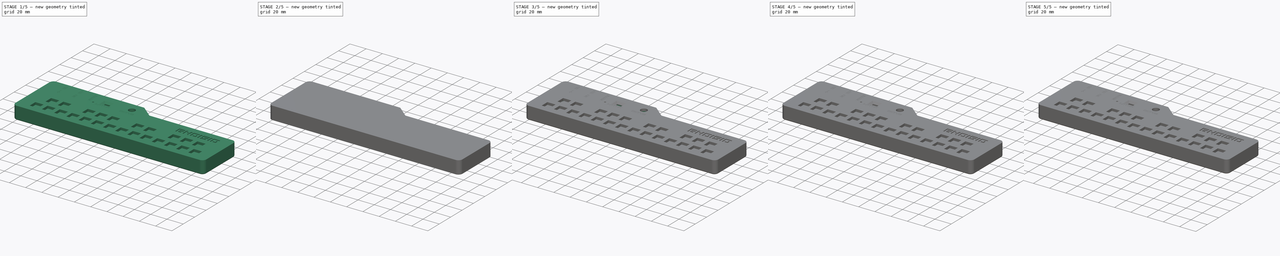
[diagram: build sequence overview — one tinted view per stage of 5, left to right]
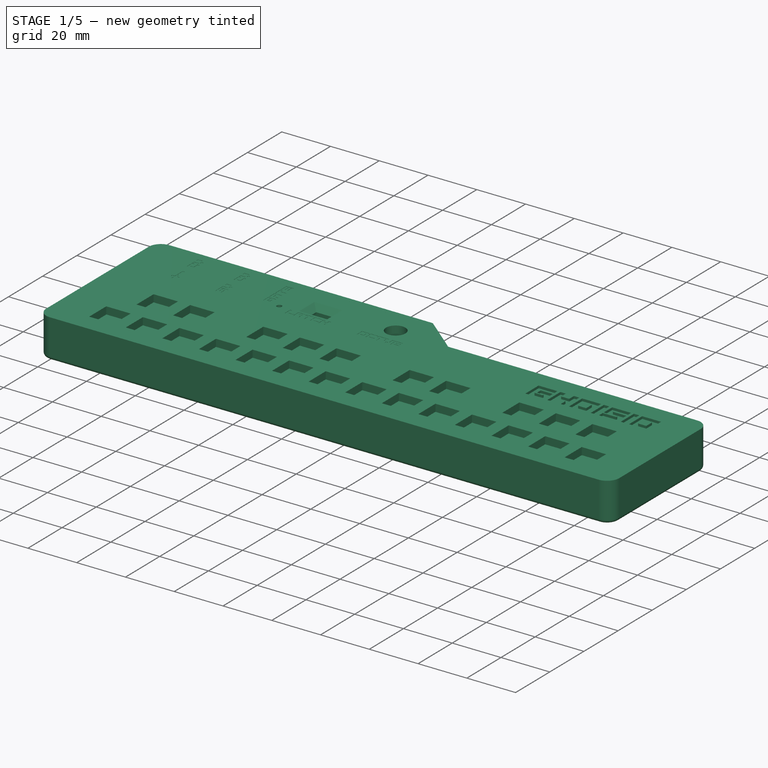
[diagram: stage 1 of 5 — iso view after this stage's code; geometry added in this stage tinted green]
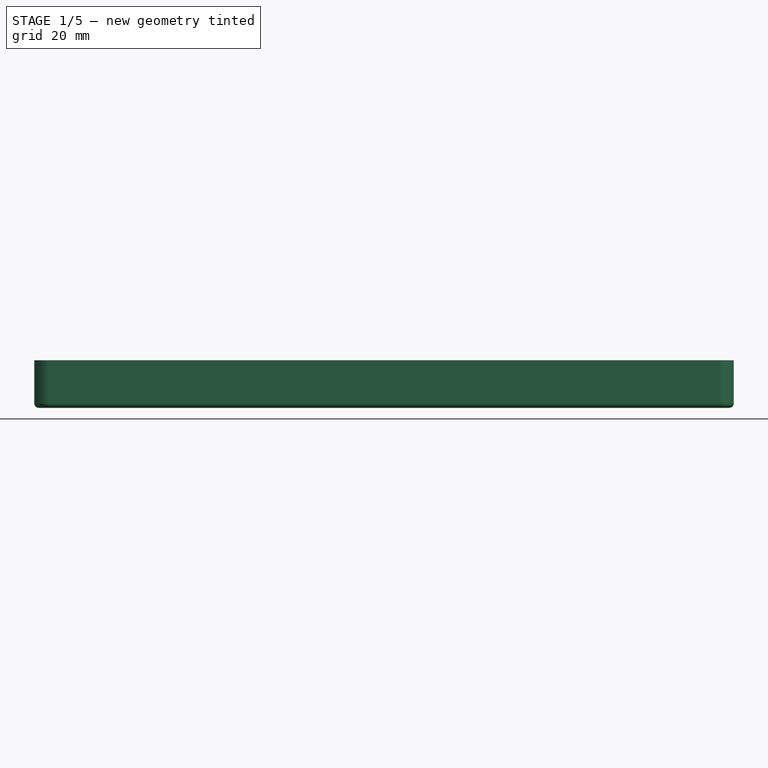
[diagram: stage 1 of 5 — front view after this stage's code; geometry added in this stage tinted green]
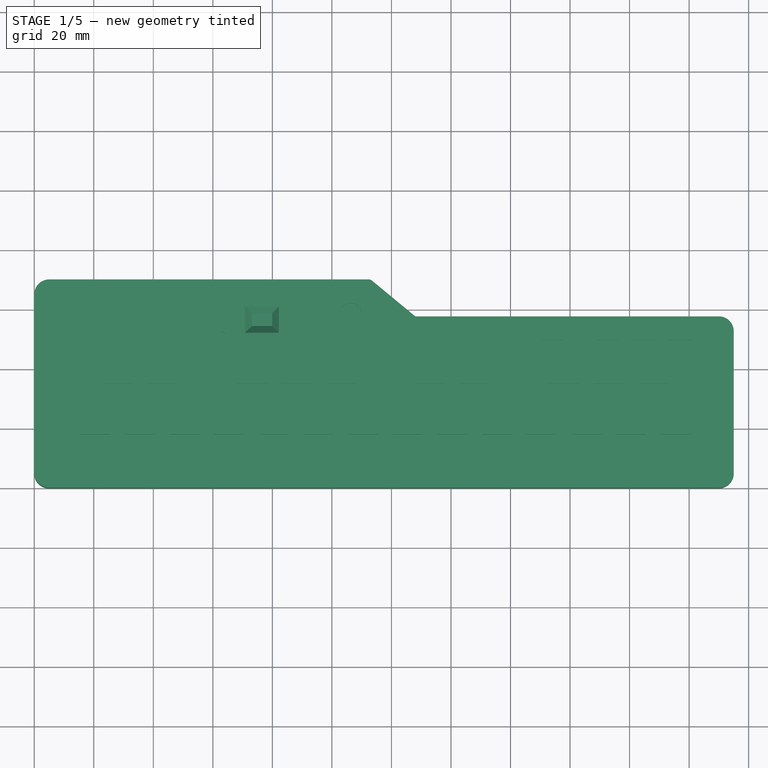
[diagram: stage 1 of 5 — top view after this stage's code; geometry added in this stage tinted green]
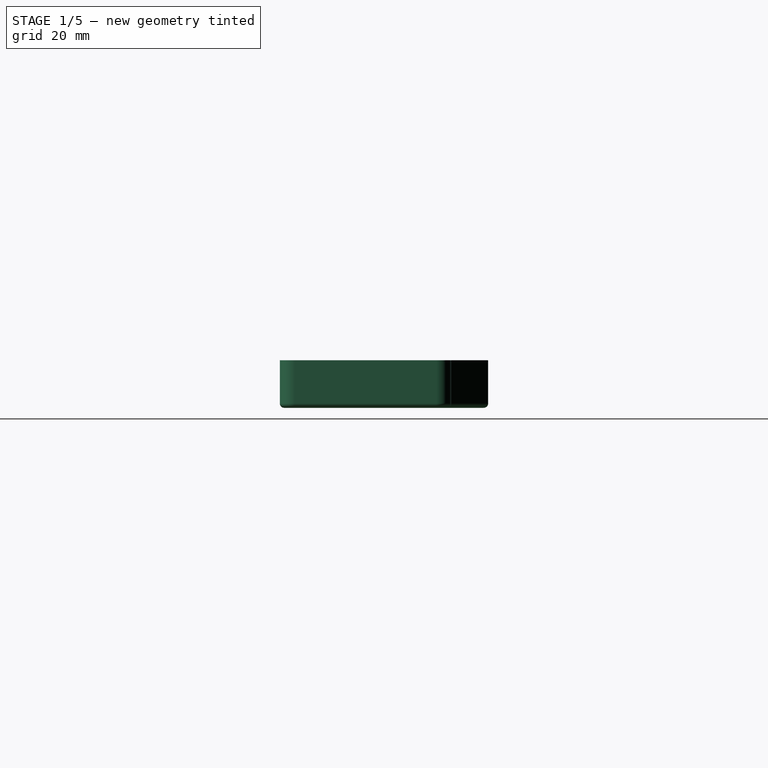
[diagram: stage 1 of 5 — right view after this stage's code; geometry added in this stage tinted green]
FCSTD DOCUMENT  (FreeCAD 1.0R39109 (Git))
Label: Noisio_ATKeys_Case_Schraubbar_2teilig
License: All rights reserved
LicenseURL: https://en.wikipedia.org/wiki/All_rights_reserved
objects: Sketcher::SketchObject×61, PartDesign::Pocket×29, PartDesign::Pad×20, PartDesign::Hole×12, PartDesign::Fillet×6, Part::Part2DObjectPython×6, PartDesign::Body×5, PartDesign::Chamfer×2, PartDesign::AdditiveLoft×1, Part::Cut×1, Part::MultiFuse×1
note: 345 computed .brp shape members not serialized (recipe doc carries the construction recipe); baked Part::Feature solids carry a one-line shape summary decoded from their .brp

FEATURE [PartDesign::Body] Body005  label="Unterteil_"
  AllowCompound = false
  Group = -> [Sketch031,Sketch032,Pad021,Pocket015,Sketch033,Pocket016,Fillet002,Fillet003,Sketch034,Sketch035,Sketch036,Pad022,Sketch037,Pad023,MirroredSketch005,Pad024,MirroredSketch006,Pad025,Sketch038,Pocket017,Sketch039,Hole004,Sketch040,Pocket018,Sketch041,Hole005,Sketch042,Pocket019,Sketch043,Hole006,Sketch044,Pocket020,Sketch045,Hole007,Sketch030,Pocket021,Sketch046,Pad026,Chamfer,Pocket029,Pocket030]
  Origin = -> Origin005
  Tip = -> Pocket030
FEATURE [Sketcher::SketchObject] MirroredSketch007
  ArcFitTolerance = 1e-06
  FullyConstrained = true
  MakeInternals = false
  Placement = pos=(236,7,0) rot=(1,0,0;1.5708rad)
  sketch-geometry (6):
    g0: LineSegment StartX=-3 StartY=7.8 StartZ=0 EndX=-3 EndY=2 EndZ=0
    g1: LineSegment StartX=-11 StartY=5.3 StartZ=0 EndX=-14 EndY=5.3 EndZ=0
    g2: LineSegment StartX=-14 StartY=5.3 StartZ=0 EndX=-14 EndY=7.8 EndZ=0
    g3: LineSegment StartX=-14 StartY=7.8 StartZ=0 EndX=-3 EndY=7.8 EndZ=0
    g4: LineSegment StartX=-3 StartY=2 StartZ=0 EndX=-11 EndY=2 EndZ=0
    g5: LineSegment StartX=-11 StartY=2 StartZ=0 EndX=-11 EndY=5.3 EndZ=0
  constraints (18):
    c: Coincident(g1,g2)
    c: Coincident(g2,g3)
    c: Coincident(g3,g0)
    c: Vertical(g2)
    c: Horizontal(g1)
    c: Horizontal(g3)
    c: Coincident(g4,g5)
    c: Vertical(g5)
    c: Horizontal(g4)
    c: Coincident(g4,g0)
    c: Coincident(g5,g1)
    c: Vertical(g0)
    c: DistanceX(g3,g3) = 11
    c: DistanceX(g4,g4) = 8
    c: DistanceY(g-1,g0) = 7.8
    c: DistanceY(g2,g2) = 2.5
    c: DistanceY(g5,g5) = 3.3
    c: DistanceX(g0,g-1) = 3
FEATURE [Sketcher::SketchObject] MirroredSketch008
  ArcFitTolerance = 1e-06
  FullyConstrained = true
  MakeInternals = false
  Placement = pos=(236,50.6,0) rot=(1,0,0;1.5708rad)
  sketch-geometry (6):
    g0: LineSegment StartX=-3 StartY=7.8 StartZ=0 EndX=-3 EndY=2 EndZ=0
    g1: LineSegment StartX=-11 StartY=5.3 StartZ=0 EndX=-14 EndY=5.3 EndZ=0
    g2: LineSegment StartX=-14 StartY=5.3 StartZ=0 EndX=-14 EndY=7.8 EndZ=0
    g3: LineSegment StartX=-14 StartY=7.8 StartZ=0 EndX=-3 EndY=7.8 EndZ=0
    g4: LineSegment StartX=-3 StartY=2 StartZ=0 EndX=-11 EndY=2 EndZ=0
    g5: LineSegment StartX=-11 StartY=2 StartZ=0 EndX=-11 EndY=5.3 EndZ=0
  constraints (18):
    c: Coincident(g1,g2)
    c: Coincident(g2,g3)
    c: Coincident(g3,g0)
    c: Vertical(g2)
    c: Horizontal(g1)
    c: Horizontal(g3)
    c: Coincident(g4,g5)
    c: Vertical(g5)
    c: Horizontal(g4)
    c: Coincident(g4,g0)
    c: Coincident(g5,g1)
    c: Vertical(g0)
    c: DistanceX(g0,g-1) = 3
    c: DistanceX(g3,g3) = 11
    c: DistanceX(g4,g4) = 8
    c: DistanceY(g2,g2) = 2.5
    c: DistanceY(g5,g5) = 3.3
    c: DistanceY(g-1,g0) = 7.8
FEATURE [Sketcher::SketchObject] Sketch047
  ArcFitTolerance = 1e-06
  AttachmentSupport = -> [XZ_Plane006]
  FullyConstrained = false
  MakeInternals = false
  MapMode = 5
  Placement = pos=(0,0,0) rot=(1,0,0;1.5708rad)
  sketch-geometry (4):
    g0: LineSegment StartX=-1.31313 StartY=31.9887 StartZ=0 EndX=-1.31313 EndY=2 EndZ=0
    g1: LineSegment StartX=-1.31313 StartY=2 StartZ=0 EndX=252.937 EndY=2 EndZ=0
    g2: LineSegment StartX=252.937 StartY=2 StartZ=0 EndX=252.937 EndY=31.9887 EndZ=0
    g3: LineSegment StartX=252.937 StartY=31.9887 StartZ=0 EndX=-1.31313 EndY=31.9887 EndZ=0
  constraints (9):
    c: Coincident(g0,g1)
    c: Coincident(g1,g2)
    c: Coincident(g2,g3)
    c: Coincident(g3,g0)
    c: Vertical(g0)
    c: Vertical(g2)
    c: Horizontal(g1)
    c: Horizontal(g3)
    c: DistanceY(g-1,g1) = 2
FEATURE [Sketcher::SketchObject] Sketch048
  ArcFitTolerance = 0
  AttachmentOffset = pos=(0,0,16) rot=(0,0,1;0rad)
  AttachmentSupport = -> [XY_Plane006]
  FullyConstrained = true
  MakeInternals = false
  MapMode = 5
  Placement = pos=(0,0,16) rot=(0,0,1;0rad)
  sketch-geometry (10):
    g0: LineSegment StartX=7 StartY=2 StartZ=0 EndX=228 EndY=2 EndZ=0
    g1: LineSegment StartX=233 StartY=7 StartZ=0 EndX=233 EndY=50.6 EndZ=0
    g2: LineSegment StartX=228 StartY=55.6 StartZ=0 EndX=127 EndY=55.6 EndZ=0
    g3: LineSegment StartX=127 StartY=55.6 StartZ=0 EndX=112 EndY=68 EndZ=0
    g4: LineSegment StartX=112 StartY=68 StartZ=0 EndX=7 EndY=68 EndZ=0
    g5: LineSegment StartX=2 StartY=63 StartZ=0 EndX=2 EndY=7 EndZ=0
    g6: ArcOfCircle CenterX=228 CenterY=50.6 CenterZ=0 NormalX=0 NormalY=0 NormalZ=1 AngleXU=0 Radius=5 StartAngle=0 EndAngle=1.5708
    g7: ArcOfCircle CenterX=228 CenterY=7 CenterZ=0 NormalX=0 NormalY=0 NormalZ=1 AngleXU=0 Radius=5 StartAngle=4.71239 EndAngle=6.28319
    g8: ArcOfCircle CenterX=7 CenterY=7 CenterZ=0 NormalX=0 NormalY=0 NormalZ=1 AngleXU=0 Radius=5 StartAngle=3.14159 EndAngle=4.71239
    g9: ArcOfCircle CenterX=7 CenterY=63 CenterZ=0 NormalX=0 NormalY=0 NormalZ=1 AngleXU=0 Radius=5 StartAngle=1.5708 EndAngle=3.14159
  constraints (26):
    c: Horizontal(g0)
    c: Vertical(g1)
    c: Horizontal(g2)
    c: Coincident(g2,g3)
    c: Coincident(g3,g4)
    c: Horizontal(g4)
    c: Vertical(g5)
    c: Diameter(g6) = 10
    c: Tangent(g2,g6) = -1.5708
    c: Tangent(g1,g6) = -1.5708
    c: Diameter(g7) = 10
    c: Diameter(g8) = 10
    c: Diameter(g9) = 10
    c: Tangent(g8,g0) = -1.5708
    c: Tangent(g8,g5) = -1.5708
    c: Tangent(g0,g7) = -1.5708
    c: Tangent(g1,g7) = -1.5708
    c: DistanceX(g0,g0) = 221
    c: DistanceY(g1,g1) = 43.6
    c: Tangent(g5,g9) = -1.5708
    c: Tangent(g4,g9) = -1.5708
    c: DistanceX(g4,g4) = 105
    c: DistanceY(g5,g5) = 56
    c: DistanceX(g2,g2) = 101
    c: DistanceX(g-1,g5) = 2
    c: DistanceY(g-1,g0) = 2
FEATURE [Sketcher::SketchObject] Sketch049
  ArcFitTolerance = 0
  AttachmentSupport = -> [XY_Plane006]
  FullyConstrained = true
  MakeInternals = false
  MapMode = 5
  sketch-geometry (10):
    g0: LineSegment StartX=5 StartY=0 StartZ=0 EndX=230 EndY=0 EndZ=0
    g1: LineSegment StartX=235 StartY=5 StartZ=0 EndX=235 EndY=52.6 EndZ=0
    g2: LineSegment StartX=230 StartY=57.6 StartZ=0 EndX=128 EndY=57.6 EndZ=0
    g3: LineSegment StartX=128 StartY=57.6 StartZ=0 EndX=113 EndY=70 EndZ=0
    g4: LineSegment StartX=113 StartY=70 StartZ=0 EndX=5 EndY=70 EndZ=0
    g5: LineSegment StartX=0 StartY=65 StartZ=0 EndX=0 EndY=5 EndZ=0
    g6: ArcOfCircle CenterX=230 CenterY=52.6 CenterZ=0 NormalX=0 NormalY=0 NormalZ=1 AngleXU=0 Radius=5 StartAngle=3e-16 EndAngle=1.5708
    g7: ArcOfCircle CenterX=230 CenterY=5 CenterZ=0 NormalX=0 NormalY=0 NormalZ=1 AngleXU=0 Radius=5 StartAngle=4.71239 EndAngle=6.28319
    g8: ArcOfCircle CenterX=5 CenterY=5 CenterZ=0 NormalX=0 NormalY=0 NormalZ=1 AngleXU=0 Radius=5 StartAngle=3.14159 EndAngle=4.71239
    g9: ArcOfCircle CenterX=5 CenterY=65 CenterZ=0 NormalX=0 NormalY=0 NormalZ=1 AngleXU=0 Radius=5 StartAngle=1.5708 EndAngle=3.14159
  constraints (26):
    c: Horizontal(g0)
    c: Vertical(g1)
    c: Horizontal(g2)
    c: Coincident(g2,g3)
    c: Coincident(g3,g4)
    c: Horizontal(g4)
    c: Vertical(g5)
    c: Diameter(g6) = 10
    c: Tangent(g2,g6) = -1.5708
    c: Tangent(g1,g6) = -1.5708
    c: Diameter(g7) = 10
    c: Diameter(g8) = 10
    c: Diameter(g9) = 10
    c: Tangent(g8,g0) = -1.5708
    c: Tangent(g8,g5) = -1.5708
    c: Tangent(g0,g7) = -1.5708
    c: Tangent(g1,g7) = -1.5708
    c: DistanceX(g0,g0) = 225
    c: DistanceY(g1,g1) = 47.6
    c: Tangent(g5,g9) = -1.5708
    c: Tangent(g4,g9) = -1.5708
    c: DistanceX(g4,g4) = 108
    c: DistanceY(g5,g5) = 60
    c: DistanceX(g2,g2) = 102
    c: PointOnObject(g0,g-1)
    c: PointOnObject(g5,g-2)
FEATURE [PartDesign::Pad] Pad027
  Direction = (0,0,1)
  Length = 16
  Length2 = 10
  Profile = -> Sketch049
  ReferenceAxis = -> Sketch049 [N_Axis]
  Refine = true
  Suppressed = false
  Type = 0
FEATURE [PartDesign::Pocket] Pocket031
  BaseFeature = -> Pad027
  Direction = (0,0,-1)
  Length = 14
  Length2 = 5
  Profile = -> Sketch048
  ReferenceAxis = -> Sketch048 [N_Axis]
  Refine = true
  Suppressed = false
  Type = 0
FEATURE [Sketcher::SketchObject] Sketch050
  ArcFitTolerance = 0
  FullyConstrained = true
  MakeInternals = false
  MapMode = 5
  Placement = pos=(0,67,-1) rot=(1,0,0;1.5708rad)
  sketch-geometry (4):
    g0: Circle CenterX=22.5 CenterY=8.5 CenterZ=0 NormalX=0 NormalY=0 NormalZ=1 AngleXU=0 Radius=3.5
    g1: Circle CenterX=40 CenterY=8.5 CenterZ=0 NormalX=0 NormalY=0 NormalZ=1 AngleXU=0 Radius=3.5
    g2: Circle CenterX=57.5 CenterY=8.5 CenterZ=0 NormalX=0 NormalY=0 NormalZ=1 AngleXU=0 Radius=3.5
    g3: LineSegment [constr] StartX=22.5 StartY=8.5 StartZ=0 EndX=57.5 EndY=8.5 EndZ=0
  constraints (11):
    c: Equal(g0,g1)
    c: Equal(g1,g2)
    c: Diameter(g0) = 7
    c: Horizontal(g3)
    c: Coincident(g3,g0)
    c: Coincident(g2,g3)
    c: PointOnObject(g1,g3)
    c: DistanceX(g0,g1) = 17.5
    c: DistanceX(g1,g2) = 17.5
    c: DistanceX(g-1,g0) = 22.5
    c: DistanceY(g-1,g0) = 8.5
FEATURE [PartDesign::Pocket] Pocket032
  BaseFeature = -> Pocket031
  Direction = (0,1,-2e-16)
  Length = 5
  Length2 = 5
  Profile = -> Sketch050
  ReferenceAxis = -> Sketch050 [N_Axis]
  Refine = true
  Suppressed = false
  Type = 0
FEATURE [PartDesign::Fillet] Fillet004
  Base = -> Pocket032 [Face4]
  BaseFeature = -> Pocket032
  Radius = 1.5
  Refine = true
  SupportTransform = false
  Suppressed = false
  UseAllEdges = false
FEATURE [PartDesign::Fillet] Fillet005
  Base = -> Fillet004 [Edge50]
  BaseFeature = -> Fillet004
  Radius = 1.5
  Refine = true
  SupportTransform = false
  Suppressed = false
  UseAllEdges = false
FEATURE [PartDesign::Pad] Pad001
  Direction = (0,0,1)
  Length = 3
  Length2 = 10
  Profile = -> Sketch002
  ReferenceAxis = -> Sketch002 [N_Axis]
  Refine = true
  Suppressed = false
  Type = 0
FEATURE [PartDesign::Pocket] Pocket047
  BaseFeature = -> Pad001
  Direction = (0,0,-1)
  Length = 2
  Length2 = 5
  Profile = -> Sketch010
  ReferenceAxis = -> Sketch010 [N_Axis]
  Refine = true
  Reversed = true
  Suppressed = false
  Type = 0
FEATURE [PartDesign::Pocket] Pocket048
  BaseFeature = -> Pocket047
  Direction = (0,0,-1)
  Length = 2
  Length2 = 5
  Profile = -> ShapeString
  ReferenceAxis = -> ShapeString [N_Axis]
  Refine = true
  Suppressed = false
  Type = 0
FEATURE [PartDesign::Pocket] Pocket049
  BaseFeature = -> Pocket048
  Direction = (0,0,-1)
  Length = 0.1
  Length2 = 5
  Profile = -> ShapeString001
  ReferenceAxis = -> ShapeString001 [N_Axis]
  Refine = true
  Suppressed = false
  Type = 0
FEATURE [PartDesign::Pocket] Pocket050
  BaseFeature = -> Pocket049
  Direction = (0,0,-1)
  Length = 0.1
  Length2 = 5
  Profile = -> ShapeString002
  ReferenceAxis = -> ShapeString002 [N_Axis]
  Refine = true
  Suppressed = false
  Type = 0
FEATURE [PartDesign::Pocket] Pocket051
  BaseFeature = -> Pocket050
  Direction = (0,0,-1)
  Length = 0.1
  Length2 = 5
  Profile = -> ShapeString003
  ReferenceAxis = -> ShapeString003 [N_Axis]
  Refine = true
  Suppressed = false
  Type = 0
FEATURE [PartDesign::Pocket] Pocket052
  BaseFeature = -> Pocket051
  Direction = (0,0,-1)
  Length = 0.1
  Length2 = 5
  Profile = -> ShapeString004
  ReferenceAxis = -> ShapeString004 [N_Axis]
  Refine = true
  Suppressed = false
  Type = 0
FEATURE [PartDesign::Pocket] Pocket053
  BaseFeature = -> Pocket052
  Direction = (0,0,-1)
  Length = 0.1
  Length2 = 5
  Profile = -> ShapeString005
  ReferenceAxis = -> ShapeString005 [N_Axis]
  Refine = true
  Suppressed = false
  Type = 0
FEATURE [PartDesign::Chamfer] Chamfer001
  Angle = 45
  Base = -> Pocket053 [Edge438,Edge439,Edge441,Edge440]
  BaseFeature = -> Pocket053
  ChamferType = 0
  FlipDirection = false
  Refine = true
  Size = 2.3
  Size2 = 1
  SupportTransform = false
  Suppressed = false
  UseAllEdges = false
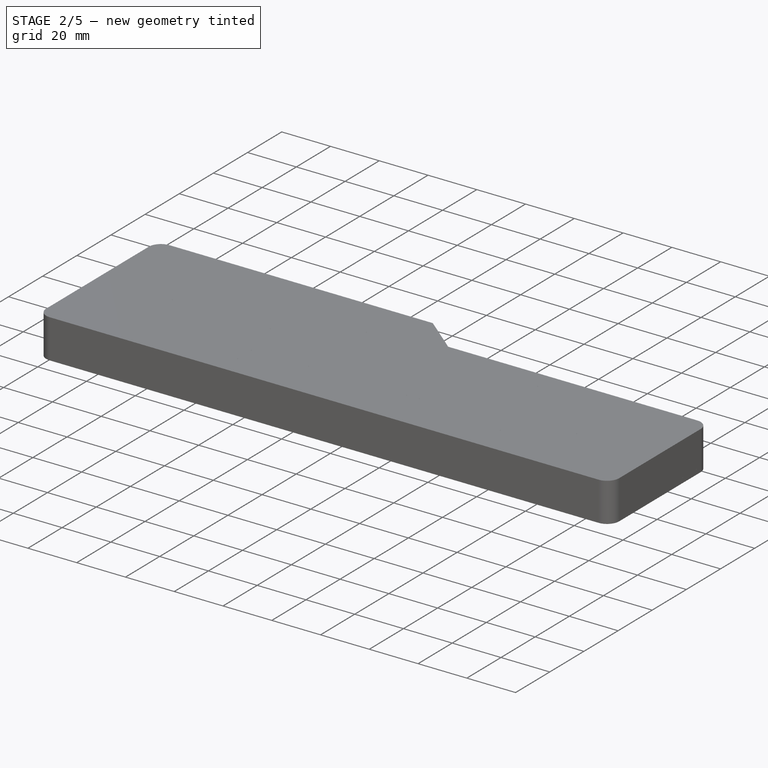
[diagram: stage 2 of 5 — iso view after this stage's code; geometry added in this stage tinted green]
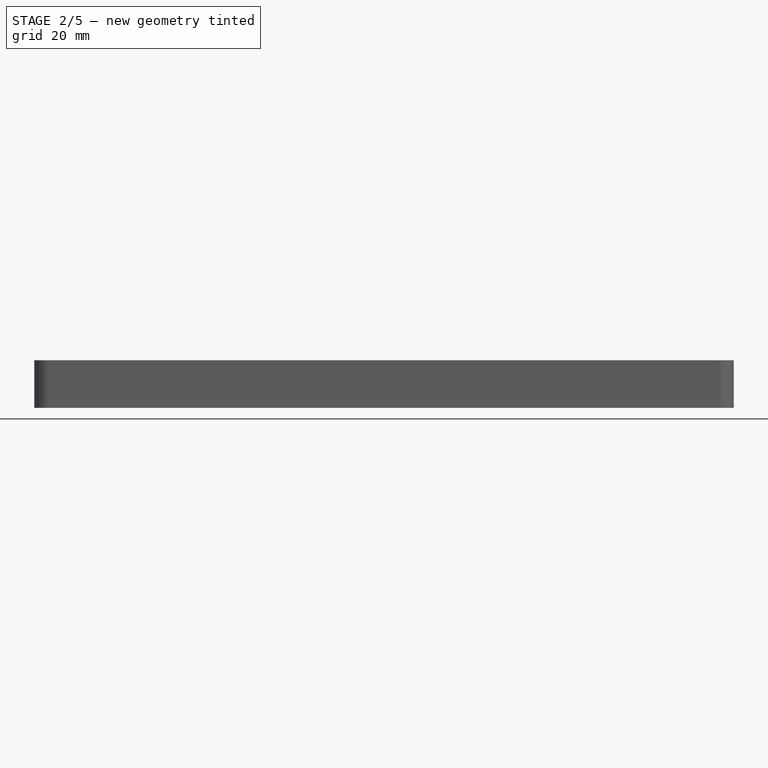
[diagram: stage 2 of 5 — front view after this stage's code; geometry added in this stage tinted green]
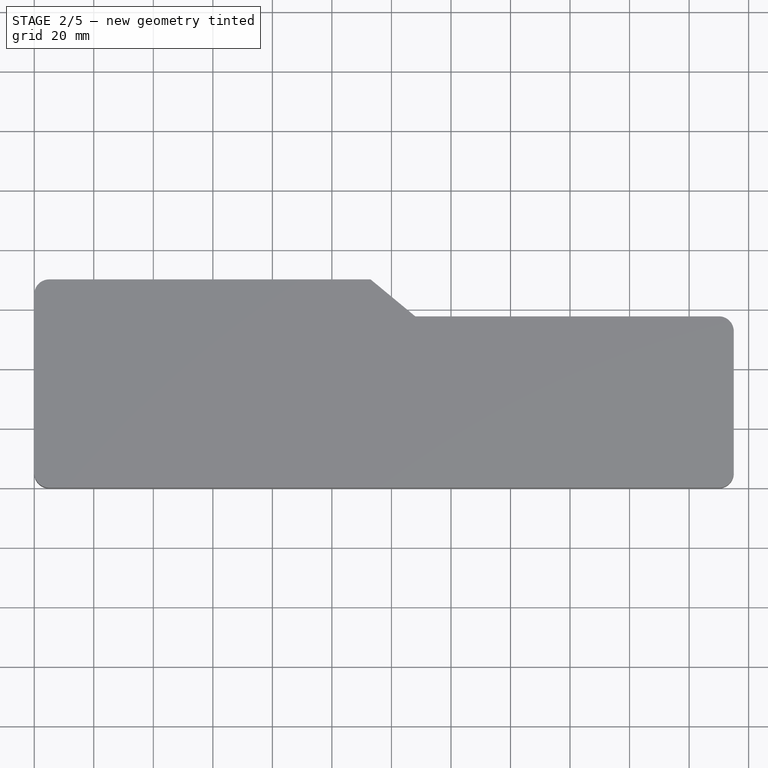
[diagram: stage 2 of 5 — top view after this stage's code; geometry added in this stage tinted green]
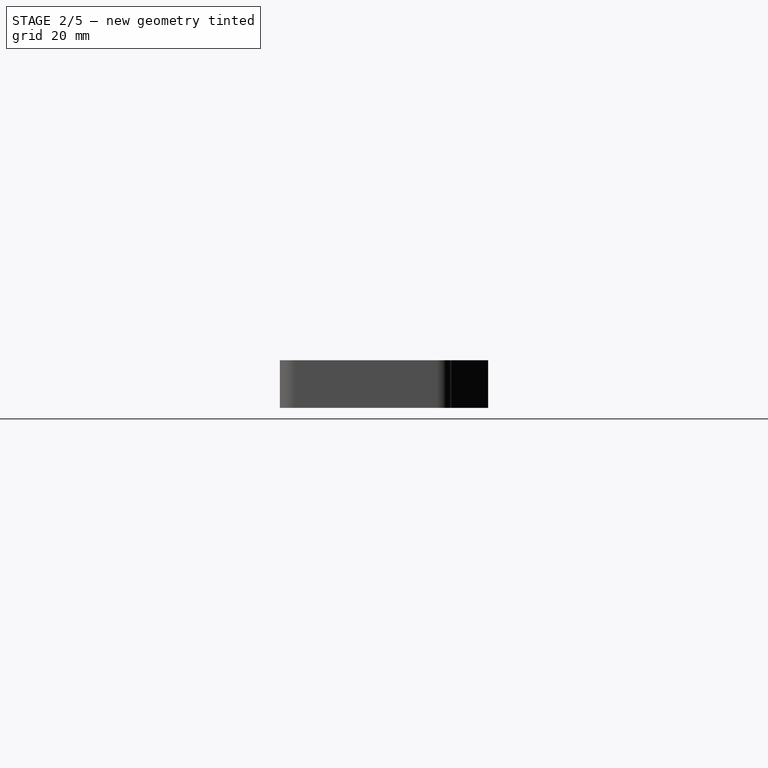
[diagram: stage 2 of 5 — right view after this stage's code; geometry added in this stage tinted green]
FEATURE [Sketcher::SketchObject] Sketch
  ArcFitTolerance = 0
  AttachmentOffset = pos=(0,0,16) rot=(0,0,1;0rad)
  AttachmentSupport = -> [XY_Plane]
  FullyConstrained = true
  MakeInternals = false
  MapMode = 5
  Placement = pos=(0,0,16) rot=(0,0,1;0rad)
  sketch-geometry (10):
    g0: LineSegment StartX=7 StartY=2 StartZ=0 EndX=228 EndY=2 EndZ=0
    g1: LineSegment StartX=233 StartY=7 StartZ=0 EndX=233 EndY=50.6 EndZ=0
    g2: LineSegment StartX=228 StartY=55.6 StartZ=0 EndX=127 EndY=55.6 EndZ=0
    g3: LineSegment StartX=127 StartY=55.6 StartZ=0 EndX=112 EndY=68 EndZ=0
    g4: LineSegment StartX=112 StartY=68 StartZ=0 EndX=7 EndY=68 EndZ=0
    g5: LineSegment StartX=2 StartY=63 StartZ=0 EndX=2 EndY=7 EndZ=0
    g6: ArcOfCircle CenterX=228 CenterY=50.6 CenterZ=0 NormalX=0 NormalY=0 NormalZ=1 AngleXU=0 Radius=5 StartAngle=0 EndAngle=1.5708
    g7: ArcOfCircle CenterX=228 CenterY=7 CenterZ=0 NormalX=0 NormalY=0 NormalZ=1 AngleXU=0 Radius=5 StartAngle=4.71239 EndAngle=6.28319
    g8: ArcOfCircle CenterX=7 CenterY=7 CenterZ=0 NormalX=0 NormalY=0 NormalZ=1 AngleXU=0 Radius=5 StartAngle=3.14159 EndAngle=4.71239
    g9: ArcOfCircle CenterX=7 CenterY=63 CenterZ=0 NormalX=0 NormalY=0 NormalZ=1 AngleXU=0 Radius=5 StartAngle=1.5708 EndAngle=3.14159
  constraints (26):
    c: Horizontal(g0)
    c: Vertical(g1)
    c: Horizontal(g2)
    c: Coincident(g2,g3)
    c: Coincident(g3,g4)
    c: Horizontal(g4)
    c: Vertical(g5)
    c: Diameter(g6) = 10
    c: Tangent(g2,g6) = -1.5708
    c: Tangent(g1,g6) = -1.5708
    c: Diameter(g7) = 10
    c: Diameter(g8) = 10
    c: Diameter(g9) = 10
    c: Tangent(g8,g0) = -1.5708
    c: Tangent(g8,g5) = -1.5708
    c: Tangent(g0,g7) = -1.5708
    c: Tangent(g1,g7) = -1.5708
    c: DistanceX(g0,g0) = 221
    c: DistanceY(g1,g1) = 43.6
    c: Tangent(g5,g9) = -1.5708
    c: Tangent(g4,g9) = -1.5708
    c: DistanceX(g4,g4) = 105
    c: DistanceY(g5,g5) = 56
    c: DistanceX(g2,g2) = 101
    c: DistanceX(g-1,g5) = 2
    c: DistanceY(g-1,g0) = 2
FEATURE [Sketcher::SketchObject] Sketch001
  ArcFitTolerance = 0
  AttachmentSupport = -> [XY_Plane]
  FullyConstrained = true
  MakeInternals = false
  MapMode = 5
  sketch-geometry (10):
    g0: LineSegment StartX=5 StartY=0 StartZ=0 EndX=230 EndY=0 EndZ=0
    g1: LineSegment StartX=235 StartY=5 StartZ=0 EndX=235 EndY=52.6 EndZ=0
    g2: LineSegment StartX=230 StartY=57.6 StartZ=0 EndX=128 EndY=57.6 EndZ=0
    g3: LineSegment StartX=128 StartY=57.6 StartZ=0 EndX=113 EndY=70 EndZ=0
    g4: LineSegment StartX=113 StartY=70 StartZ=0 EndX=5 EndY=70 EndZ=0
    g5: LineSegment StartX=0 StartY=65 StartZ=0 EndX=0 EndY=5 EndZ=0
    g6: ArcOfCircle CenterX=230 CenterY=52.6 CenterZ=0 NormalX=0 NormalY=0 NormalZ=1 AngleXU=0 Radius=5 StartAngle=3e-16 EndAngle=1.5708
    g7: ArcOfCircle CenterX=230 CenterY=5 CenterZ=0 NormalX=0 NormalY=0 NormalZ=1 AngleXU=0 Radius=5 StartAngle=4.71239 EndAngle=6.28319
    g8: ArcOfCircle CenterX=5 CenterY=5 CenterZ=0 NormalX=0 NormalY=0 NormalZ=1 AngleXU=0 Radius=5 StartAngle=3.14159 EndAngle=4.71239
    g9: ArcOfCircle CenterX=5 CenterY=65 CenterZ=0 NormalX=0 NormalY=0 NormalZ=1 AngleXU=0 Radius=5 StartAngle=1.5708 EndAngle=3.14159
  constraints (26):
    c: Horizontal(g0)
    c: Vertical(g1)
    c: Horizontal(g2)
    c: Coincident(g2,g3)
    c: Coincident(g3,g4)
    c: Horizontal(g4)
    c: Vertical(g5)
    c: Diameter(g6) = 10
    c: Tangent(g2,g6) = -1.5708
    c: Tangent(g1,g6) = -1.5708
    c: Diameter(g7) = 10
    c: Diameter(g8) = 10
    c: Diameter(g9) = 10
    c: Tangent(g8,g0) = -1.5708
    c: Tangent(g8,g5) = -1.5708
    c: Tangent(g0,g7) = -1.5708
    c: Tangent(g1,g7) = -1.5708
    c: DistanceX(g0,g0) = 225
    c: DistanceY(g1,g1) = 47.6
    c: Tangent(g5,g9) = -1.5708
    c: Tangent(g4,g9) = -1.5708
    c: DistanceX(g4,g4) = 108
    c: DistanceY(g5,g5) = 60
    c: DistanceX(g2,g2) = 102
    c: PointOnObject(g0,g-1)
    c: PointOnObject(g5,g-2)
FEATURE [PartDesign::Pad] Pad
  Direction = (0,0,1)
  Length = 16
  Length2 = 10
  Profile = -> Sketch001
  ReferenceAxis = -> Sketch001 [N_Axis]
  Refine = true
  Suppressed = false
  Type = 0
FEATURE [Sketcher::SketchObject] Sketch051
  ArcFitTolerance = 0
  AttachmentSupport = -> [XY_Plane006]
  FullyConstrained = true
  MakeInternals = false
  MapMode = 5
  sketch-geometry (4):
    g0: ArcOfCircle CenterX=15 CenterY=10 CenterZ=0 NormalX=0 NormalY=0 NormalZ=1 AngleXU=0 Radius=2.5 StartAngle=3.14159 EndAngle=6.28319
    g1: ArcOfCircle CenterX=15 CenterY=60 CenterZ=0 NormalX=0 NormalY=0 NormalZ=1 AngleXU=0 Radius=2.5 StartAngle=4e-16 EndAngle=3.14159
    g2: LineSegment StartX=17.5 StartY=10 StartZ=0 EndX=17.5 EndY=60 EndZ=0
    g3: LineSegment StartX=12.5 StartY=60 StartZ=0 EndX=12.5 EndY=10 EndZ=0
  constraints (10):
    c: Tangent(g0,g2) = -1.5708
    c: Tangent(g2,g1) = -1.5708
    c: Tangent(g1,g3) = -1.5708
    c: Tangent(g3,g0) = -1.5708
    c: Equal(g0,g1)
    c: Vertical(g2)
    c: DistanceX(g0,g0) = 5
    c: DistanceY(g-1,g0) = 10
    c: DistanceX(g-1,g0) = 15
    c: DistanceY(g2,g2) = 50
FEATURE [Sketcher::SketchObject] Sketch052
  ArcFitTolerance = 0
  FullyConstrained = true
  MakeInternals = false
  MapMode = 5
  Placement = pos=(0,0,0) rot=(1,0,0;3.14159rad)
  sketch-geometry (4):
    g0: ArcOfCircle CenterX=220 CenterY=-10 CenterZ=0 NormalX=0 NormalY=0 NormalZ=1 AngleXU=0 Radius=2.5 StartAngle=0 EndAngle=3.14159
    g1: ArcOfCircle CenterX=220 CenterY=-47.6 CenterZ=0 NormalX=0 NormalY=0 NormalZ=1 AngleXU=0 Radius=2.5 StartAngle=3.14159 EndAngle=6.28319
    g2: LineSegment StartX=217.5 StartY=-10 StartZ=0 EndX=217.5 EndY=-47.6 EndZ=0
    g3: LineSegment StartX=222.5 StartY=-47.6 StartZ=0 EndX=222.5 EndY=-10 EndZ=0
  constraints (10):
    c: Tangent(g0,g2) = -1.5708
    c: Tangent(g2,g1) = -1.5708
    c: Tangent(g1,g3) = -1.5708
    c: Tangent(g3,g0) = -1.5708
    c: Equal(g0,g1)
    c: Vertical(g2)
    c: DistanceX(g0,g0) = 5
    c: DistanceX(g-1,g0) = 220
    c: DistanceY(g0,g-1) = 10
    c: DistanceY(g1,g-1) = 47.6
FEATURE [Sketcher::SketchObject] Sketch053
  ArcFitTolerance = 1e-06
  AttachmentOffset = pos=(0,0,-58) rot=(0,0,1;0rad)
  AttachmentSupport = -> [XZ_Plane006]
  FullyConstrained = true
  MakeInternals = false
  MapMode = 5
  Placement = pos=(0,58,-1.29e-14) rot=(1,0,0;1.5708rad)
  sketch-geometry (6):
    g0: LineSegment StartX=2 StartY=7.8 StartZ=0 EndX=2 EndY=2 EndZ=0
    g1: LineSegment StartX=10 StartY=5.3 StartZ=0 EndX=13 EndY=5.3 EndZ=0
    g2: LineSegment StartX=13 StartY=5.3 StartZ=0 EndX=13 EndY=7.8 EndZ=0
    g3: LineSegment StartX=13 StartY=7.8 StartZ=0 EndX=2 EndY=7.8 EndZ=0
    g4: LineSegment StartX=2 StartY=2 StartZ=0 EndX=10 EndY=2 EndZ=0
    g5: LineSegment StartX=10 StartY=2 StartZ=0 EndX=10 EndY=5.3 EndZ=0
  constraints (18):
    c: Coincident(g1,g2)
    c: Coincident(g2,g3)
    c: Coincident(g3,g0)
    c: Vertical(g2)
    c: Horizontal(g1)
    c: Horizontal(g3)
    c: Coincident(g4,g5)
    c: Vertical(g5)
    c: Horizontal(g4)
    c: Coincident(g4,g0)
    c: DistanceY(g-1,g0) = 7.8
    c: DistanceX(g-1,g0) = 2
    c: DistanceX(g3,g3) = 11
    c: DistanceX(g4,g4) = 8
    c: DistanceY(g2,g2) = 2.5
    c: Coincident(g5,g1)
    c: Vertical(g0)
    c: DistanceY(g5,g5) = 3.3
FEATURE [PartDesign::Pad] Pad028
  BaseFeature = -> Fillet005
  Direction = (0,-1,2e-16)
  Length = 10
  Length2 = 10
  Midplane = true
  Profile = -> Sketch053
  ReferenceAxis = -> Sketch053 [N_Axis]
  Refine = true
  Suppressed = false
  Type = 0
FEATURE [Sketcher::SketchObject] Sketch054
  ArcFitTolerance = 1e-06
  AttachmentOffset = pos=(0,0,-7) rot=(0,0,1;0rad)
  AttachmentSupport = -> [XZ_Plane006]
  FullyConstrained = true
  MakeInternals = false
  MapMode = 5
  Placement = pos=(0,7,-1.6e-15) rot=(1,0,0;1.5708rad)
  sketch-geometry (6):
    g0: LineSegment StartX=2 StartY=7.8 StartZ=0 EndX=2 EndY=2 EndZ=0
    g1: LineSegment StartX=10 StartY=5.3 StartZ=0 EndX=13 EndY=5.3 EndZ=0
    g2: LineSegment StartX=13 StartY=5.3 StartZ=0 EndX=13 EndY=7.8 EndZ=0
    g3: LineSegment StartX=13 StartY=7.8 StartZ=0 EndX=2 EndY=7.8 EndZ=0
    g4: LineSegment StartX=2 StartY=2 StartZ=0 EndX=10 EndY=2 EndZ=0
    g5: LineSegment StartX=10 StartY=2 StartZ=0 EndX=10 EndY=5.3 EndZ=0
  constraints (18):
    c: Coincident(g1,g2)
    c: Coincident(g2,g3)
    c: Coincident(g3,g0)
    c: Vertical(g2)
    c: Horizontal(g1)
    c: Horizontal(g3)
    c: Coincident(g4,g5)
    c: Vertical(g5)
    c: Horizontal(g4)
    c: Coincident(g4,g0)
    c: DistanceY(g-1,g0) = 7.8
    c: DistanceX(g-1,g0) = 2
    c: DistanceX(g3,g3) = 11
    c: DistanceX(g4,g4) = 8
    c: DistanceY(g2,g2) = 2.5
    c: Coincident(g5,g1)
    c: Vertical(g0)
    c: DistanceY(g5,g5) = 3.3
FEATURE [PartDesign::Pad] Pad029
  BaseFeature = -> Pad028
  Direction = (0,-1,2e-16)
  Length = 10
  Length2 = 10
  Profile = -> Sketch054
  ReferenceAxis = -> Sketch054 [N_Axis]
  Refine = true
  Reversed = true
  Suppressed = false
  Type = 0
FEATURE [PartDesign::Pad] Pad030
  BaseFeature = -> Pad029
  Direction = (0,-1,-3e-16)
  Length = 10
  Length2 = 10
  Profile = -> MirroredSketch007
  ReferenceAxis = -> MirroredSketch007 [N_Axis]
  Refine = true
  Reversed = true
  Suppressed = false
  Type = 0
FEATURE [PartDesign::Pad] Pad031
  BaseFeature = -> Pad030
  Direction = (0,-1,-3e-16)
  Length = 10
  Length2 = 10
  Profile = -> MirroredSketch008
  ReferenceAxis = -> MirroredSketch008 [N_Axis]
  Refine = true
  Suppressed = false
  Type = 0
FEATURE [Sketcher::SketchObject] Sketch055
  ArcFitTolerance = 1e-06
  AttachmentSupport = -> [Pad031]
  ExternalGeometry = -> [Pad031]
  FullyConstrained = true
  MakeInternals = false
  MapMode = 5
  Placement = pos=(0,1.7e-15,7.8) rot=(0,0,1;0rad)
  sketch-geometry (8):
    g0: LineSegment StartX=9 StartY=10.4267 StartZ=0 EndX=9 EndY=13.5733 EndZ=0
    g1: LineSegment StartX=9 StartY=13.5733 StartZ=0 EndX=6.275 EndY=15.1466 EndZ=0
    g2: LineSegment StartX=6.275 StartY=15.1466 StartZ=0 EndX=3.55 EndY=13.5733 EndZ=0
    g3: LineSegment StartX=3.55 StartY=13.5733 StartZ=0 EndX=3.55 EndY=10.4267 EndZ=0
    g4: LineSegment StartX=3.55 StartY=10.4267 StartZ=0 EndX=6.275 EndY=8.85344 EndZ=0
    g5: LineSegment StartX=6.275 StartY=8.85344 StartZ=0 EndX=9 EndY=10.4267 EndZ=0
    g6: Circle [constr] CenterX=6.275 CenterY=12 CenterZ=0 NormalX=0 NormalY=0 NormalZ=1 AngleXU=0 Radius=3.14656
    g7: LineSegment [constr] StartX=2 StartY=12 StartZ=0 EndX=13 EndY=12 EndZ=0
  constraints (20):
    c: Coincident(g0,g1)
    c: Coincident(g1,g2)
    c: Coincident(g2,g3)
    c: Coincident(g3,g4)
    c: Coincident(g4,g5)
    c: Coincident(g5,g0)
    c: Equal(g0, g1-g5) x5
    c: PointOnObject(g0,g6)
    c: PointOnObject(g1,g6)
    c: PointOnObject(g2,g6)
    c: PointOnObject(g3,g6)
    c: PointOnObject(g4,g6)
    c: PointOnObject(g5,g6)
    c: Vertical(g3)
    c: DistanceX(g2,g0) = 5.45
    c: PointOnObject(g7,g-6)
    c: Symmetric(g-3,g-3,g7)
    c: Symmetric(g-5,g-4,g7)
    c: PointOnObject(g6,g7)
    c: DistanceX(g0,g-4) = 4
FEATURE [PartDesign::Pocket] Pocket033
  BaseFeature = -> Pad031
  Direction = (0,0,-1)
  Length = 2.3
  Length2 = 5
  Profile = -> Sketch055
  ReferenceAxis = -> Sketch055 [N_Axis]
  Refine = true
  Suppressed = false
  Type = 0
FEATURE [Sketcher::SketchObject] Sketch056
  ArcFitTolerance = 1e-06
  AttachmentSupport = -> [Pocket033]
  ExternalGeometry = -> [Pocket033]
  FullyConstrained = true
  MakeInternals = false
  MapMode = 5
  Placement = pos=(0,0,5.5) rot=(0,0,1;0rad)
  sketch-geometry (3):
    g0: LineSegment [constr] StartX=3.55 StartY=12 StartZ=0 EndX=9 EndY=12 EndZ=0
    g1: LineSegment [constr] StartX=6.275 StartY=15.1466 StartZ=0 EndX=6.275 EndY=8.85344 EndZ=0
    g2: Circle CenterX=6.275 CenterY=12 CenterZ=0 NormalX=0 NormalY=0 NormalZ=1 AngleXU=0 Radius=1.55
  constraints (6):
    c: Symmetric(g-3,g-3,g0)
    c: Symmetric(g-4,g-4,g0)
    c: Coincident(g1,g-5)
    c: Coincident(g1,g-6)
    c: Symmetric(g1,g1,g2)
    c: Diameter(g2) = 3.1
FEATURE [PartDesign::Hole] Hole008
  BaseFeature = -> Pocket033
  CustomThreadClearance = 0
  Depth = 25
  DepthType = 0
  Diameter = 3.1
  DrillForDepth = false
  DrillPoint = 1
  DrillPointAngle = 118
  HoleCutCountersinkAngle = 90
  HoleCutCustomValues = false
  HoleCutDepth = 0
  HoleCutDiameter = 6.1
  HoleCutType = 0
  ModelThread = false
  Profile = -> Sketch056
  Refine = true
  Suppressed = false
  Tapered = false
  TaperedAngle = 90
  ThreadClass = 0
  ThreadDepth = 25
  ThreadDepthType = 0
  ThreadDirection = 0
  ThreadFit = 0
  ThreadSize = 0
  ThreadType = 0
  Threaded = false
  UseCustomThreadClearance = false
FEATURE [Sketcher::SketchObject] Sketch057
  ArcFitTolerance = 1e-06
  AttachmentSupport = -> [Pad031]
  ExternalGeometry = -> [Pad031]
  FullyConstrained = true
  MakeInternals = false
  MapMode = 5
  Placement = pos=(0,1.7e-15,7.8) rot=(0,0,1;0rad)
  sketch-geometry (8):
    g0: LineSegment StartX=9 StartY=56.4267 StartZ=0 EndX=9 EndY=59.5733 EndZ=0
    g1: LineSegment StartX=9 StartY=59.5733 StartZ=0 EndX=6.275 EndY=61.1466 EndZ=0
    g2: LineSegment StartX=6.275 StartY=61.1466 StartZ=0 EndX=3.55 EndY=59.5733 EndZ=0
    g3: LineSegment StartX=3.55 StartY=59.5733 StartZ=0 EndX=3.55 EndY=56.4267 EndZ=0
    g4: LineSegment StartX=3.55 StartY=56.4267 StartZ=0 EndX=6.275 EndY=54.8534 EndZ=0
    g5: LineSegment StartX=6.275 StartY=54.8534 StartZ=0 EndX=9 EndY=56.4267 EndZ=0
    g6: Circle [constr] CenterX=6.275 CenterY=58 CenterZ=0 NormalX=0 NormalY=0 NormalZ=1 AngleXU=0 Radius=3.14656
    g7: LineSegment [constr] StartX=2 StartY=58 StartZ=0 EndX=13 EndY=58 EndZ=0
  constraints (20):
    c: Coincident(g0,g1)
    c: Coincident(g1,g2)
    c: Coincident(g2,g3)
    c: Coincident(g3,g4)
    c: Coincident(g4,g5)
    c: Coincident(g5,g0)
    c: Equal(g0, g1-g5) x5
    c: PointOnObject(g0,g6)
    c: PointOnObject(g1,g6)
    c: PointOnObject(g2,g6)
    c: PointOnObject(g3,g6)
    c: PointOnObject(g4,g6)
    c: PointOnObject(g5,g6)
    c: Vertical(g3)
    c: DistanceX(g2,g0) = 5.45
    c: DistanceX(g0,g-8) = 4
    c: PointOnObject(g7,g-6)
    c: Symmetric(g-7,g-7,g7)
    c: Horizontal(g7)
    c: PointOnObject(g6,g7)
FEATURE [PartDesign::Pocket] Pocket034
  BaseFeature = -> Hole008
  Direction = (0,0,-1)
  Length = 2.3
  Length2 = 5
  Profile = -> Sketch057
  ReferenceAxis = -> Sketch057 [N_Axis]
  Refine = true
  Suppressed = false
  Type = 0
FEATURE [Sketcher::SketchObject] Sketch058
  ArcFitTolerance = 1e-06
  AttachmentSupport = -> [Pocket033]
  ExternalGeometry = -> [Pocket033,Sketch057]
  FullyConstrained = true
  MakeInternals = false
  MapMode = 5
  Placement = pos=(0,0,5.5) rot=(0,0,1;0rad)
  sketch-geometry (3):
    g0: Circle CenterX=6.275 CenterY=58 CenterZ=0 NormalX=0 NormalY=0 NormalZ=1 AngleXU=0 Radius=1.55
    g1: LineSegment [constr] StartX=3.55 StartY=58 StartZ=0 EndX=9 EndY=58 EndZ=0
    g2: LineSegment [constr] StartX=6.275 StartY=61.1466 StartZ=0 EndX=6.275 EndY=54.8534 EndZ=0
  constraints (7):
    c: Diameter(g0) = 3.1
    c: Symmetric(g-7,g-7,g1)
    c: Symmetric(g-8,g-8,g1)
    c: Coincident(g2,g-9)
    c: Coincident(g2,g-10)
    c: PointOnObject(g0,g1)
    c: PointOnObject(g0,g2)
FEATURE [PartDesign::Hole] Hole009
  BaseFeature = -> Pocket034
  CustomThreadClearance = 0
  Depth = 25
  DepthType = 0
  Diameter = 3.1
  DrillForDepth = false
  DrillPoint = 1
  DrillPointAngle = 118
  HoleCutCountersinkAngle = 90
  HoleCutCustomValues = false
  HoleCutDepth = 0
  HoleCutDiameter = 6.1
  HoleCutType = 0
  ModelThread = false
  Profile = -> Sketch058
  Refine = true
  Suppressed = false
  Tapered = false
  TaperedAngle = 90
  ThreadClass = 0
  ThreadDepth = 25
  ThreadDepthType = 0
  ThreadDirection = 0
  ThreadFit = 0
  ThreadSize = 0
  ThreadType = 0
  Threaded = false
  UseCustomThreadClearance = false
FEATURE [Sketcher::SketchObject] Sketch059
  ArcFitTolerance = 1e-06
  AttachmentSupport = -> [Pad031]
  ExternalGeometry = -> [Pad031]
  FullyConstrained = true
  MakeInternals = false
  MapMode = 5
  Placement = pos=(0,1.7e-15,7.8) rot=(0,0,1;0rad)
  sketch-geometry (8):
    g0: LineSegment StartX=231.45 StartY=44.0267 StartZ=0 EndX=231.45 EndY=47.1733 EndZ=0
    g1: LineSegment StartX=231.45 StartY=47.1733 StartZ=0 EndX=228.725 EndY=48.7466 EndZ=0
    g2: LineSegment StartX=228.725 StartY=48.7466 StartZ=0 EndX=226 EndY=47.1733 EndZ=0
    g3: LineSegment StartX=226 StartY=47.1733 StartZ=0 EndX=226 EndY=44.0267 EndZ=0
    g4: LineSegment StartX=226 StartY=44.0267 StartZ=0 EndX=228.725 EndY=42.4534 EndZ=0
    g5: LineSegment StartX=228.725 StartY=42.4534 StartZ=0 EndX=231.45 EndY=44.0267 EndZ=0
    g6: Circle [constr] CenterX=228.725 CenterY=45.6 CenterZ=0 NormalX=0 NormalY=0 NormalZ=1 AngleXU=0 Radius=3.14656
    g7: LineSegment [constr] StartX=222 StartY=45.6 StartZ=0 EndX=233 EndY=45.6 EndZ=0
  constraints (20):
    c: Coincident(g0,g1)
    c: Coincident(g1,g2)
    c: Coincident(g2,g3)
    c: Coincident(g3,g4)
    c: Coincident(g4,g5)
    c: Coincident(g5,g0)
    c: Equal(g0, g1-g5) x5
    c: PointOnObject(g0,g6)
    c: PointOnObject(g1,g6)
    c: PointOnObject(g2,g6)
    c: PointOnObject(g3,g6)
    c: PointOnObject(g4,g6)
    c: PointOnObject(g5,g6)
    c: Vertical(g3)
    c: DistanceX(g2,g0) = 5.45
    c: Symmetric(g-10,g-10,g7)
    c: PointOnObject(g7,g-11)
    c: Horizontal(g7)
    c: PointOnObject(g6,g7)
    c: DistanceX(g-10,g2) = 4
FEATURE [PartDesign::Pocket] Pocket035
  BaseFeature = -> Hole009
  Direction = (0,0,-1)
  Length = 2.3
  Length2 = 5
  Profile = -> Sketch059
  ReferenceAxis = -> Sketch059 [N_Axis]
  Refine = true
  Suppressed = false
  Type = 0
FEATURE [Sketcher::SketchObject] Sketch060
  ArcFitTolerance = 1e-06
  AttachmentSupport = -> [Pocket033]
  ExternalGeometry = -> [Pocket033,Sketch057,Sketch059]
  FullyConstrained = true
  MakeInternals = false
  MapMode = 5
  Placement = pos=(0,0,5.5) rot=(0,0,1;0rad)
  sketch-geometry (3):
    g0: Circle CenterX=228.725 CenterY=45.6 CenterZ=0 NormalX=0 NormalY=0 NormalZ=1 AngleXU=0 Radius=1.55
    g1: LineSegment [constr] StartX=226 StartY=45.6 StartZ=0 EndX=231.45 EndY=45.6 EndZ=0
    g2: LineSegment [constr] StartX=228.725 StartY=48.7466 StartZ=0 EndX=228.725 EndY=42.4534 EndZ=0
  constraints (7):
    c: Diameter(g0) = 3.1
    c: Symmetric(g-11,g-11,g1)
    c: Symmetric(g-12,g-12,g1)
    c: Coincident(g2,g-13)
    c: Coincident(g2,g-14)
    c: PointOnObject(g0,g1)
    c: PointOnObject(g0,g2)
FEATURE [PartDesign::Hole] Hole010
  BaseFeature = -> Pocket035
  CustomThreadClearance = 0
  Depth = 25
  DepthType = 0
  Diameter = 3.1
  DrillForDepth = false
  DrillPoint = 1
  DrillPointAngle = 118
  HoleCutCountersinkAngle = 90
  HoleCutCustomValues = false
  HoleCutDepth = 0
  HoleCutDiameter = 6.1
  HoleCutType = 0
  ModelThread = false
  Profile = -> Sketch060
  Refine = true
  Suppressed = false
  Tapered = false
  TaperedAngle = 90
  ThreadClass = 0
  ThreadDepth = 25
  ThreadDepthType = 0
  ThreadDirection = 0
  ThreadFit = 0
  ThreadSize = 0
  ThreadType = 0
  Threaded = false
  UseCustomThreadClearance = false
FEATURE [Sketcher::SketchObject] Sketch061
  ArcFitTolerance = 1e-06
  AttachmentSupport = -> [Pad031]
  ExternalGeometry = -> [Pad031]
  FullyConstrained = true
  MakeInternals = false
  MapMode = 5
  Placement = pos=(0,1.7e-15,7.8) rot=(0,0,1;0rad)
  sketch-geometry (8):
    g0: LineSegment StartX=231.45 StartY=10.4267 StartZ=0 EndX=231.45 EndY=13.5733 EndZ=0
    g1: LineSegment StartX=231.45 StartY=13.5733 StartZ=0 EndX=228.725 EndY=15.1466 EndZ=0
    g2: LineSegment StartX=228.725 StartY=15.1466 StartZ=0 EndX=226 EndY=13.5733 EndZ=0
    g3: LineSegment StartX=226 StartY=13.5733 StartZ=0 EndX=226 EndY=10.4267 EndZ=0
    g4: LineSegment StartX=226 StartY=10.4267 StartZ=0 EndX=228.725 EndY=8.85344 EndZ=0
    g5: LineSegment StartX=228.725 StartY=8.85344 StartZ=0 EndX=231.45 EndY=10.4267 EndZ=0
    g6: Circle [constr] CenterX=228.725 CenterY=12 CenterZ=0 NormalX=0 NormalY=0 NormalZ=1 AngleXU=0 Radius=3.14656
    g7: LineSegment [constr] StartX=222 StartY=12 StartZ=0 EndX=233 EndY=12 EndZ=0
  constraints (20):
    c: Coincident(g0,g1)
    c: Coincident(g1,g2)
    c: Coincident(g2,g3)
    c: Coincident(g3,g4)
    c: Coincident(g4,g5)
    c: Coincident(g5,g0)
    c: Equal(g0, g1-g5) x5
    c: PointOnObject(g0,g6)
    c: PointOnObject(g1,g6)
    c: PointOnObject(g2,g6)
    c: PointOnObject(g3,g6)
    c: PointOnObject(g4,g6)
    c: PointOnObject(g5,g6)
    c: Vertical(g3)
    c: DistanceX(g2,g0) = 5.45
    c: Symmetric(g-12,g-12,g7)
    c: PointOnObject(g7,g-11)
    c: Horizontal(g7)
    c: PointOnObject(g6,g7)
    c: DistanceX(g-12,g2) = 4
FEATURE [PartDesign::Pocket] Pocket036
  BaseFeature = -> Hole010
  Direction = (0,0,-1)
  Length = 2.3
  Length2 = 5
  Profile = -> Sketch061
  ReferenceAxis = -> Sketch061 [N_Axis]
  Refine = true
  Suppressed = false
  Type = 0
FEATURE [Sketcher::SketchObject] Sketch062
  ArcFitTolerance = 1e-06
  AttachmentSupport = -> [Pocket033]
  ExternalGeometry = -> [Pocket033,Sketch057,Sketch059,Sketch061]
  FullyConstrained = true
  MakeInternals = false
  MapMode = 5
  Placement = pos=(0,0,5.5) rot=(0,0,1;0rad)
  sketch-geometry (3):
    g0: Circle CenterX=228.725 CenterY=12 CenterZ=0 NormalX=0 NormalY=0 NormalZ=1 AngleXU=0 Radius=1.55
    g1: LineSegment [constr] StartX=226 StartY=12 StartZ=0 EndX=231.45 EndY=12 EndZ=0
    g2: LineSegment [constr] StartX=228.725 StartY=15.1466 StartZ=0 EndX=228.725 EndY=8.85344 EndZ=0
  constraints (7):
    c: Diameter(g0) = 3.1
    c: Symmetric(g-15,g-15,g1)
    c: Symmetric(g-16,g-16,g1)
    c: Coincident(g2,g-17)
    c: Coincident(g2,g-18)
    c: PointOnObject(g0,g1)
    c: PointOnObject(g0,g2)
FEATURE [PartDesign::Hole] Hole011
  BaseFeature = -> Pocket036
  CustomThreadClearance = 0
  Depth = 25
  DepthType = 0
  Diameter = 3.1
  DrillForDepth = false
  DrillPoint = 1
  DrillPointAngle = 118
  HoleCutCountersinkAngle = 90
  HoleCutCustomValues = false
  HoleCutDepth = 0
  HoleCutDiameter = 6.1
  HoleCutType = 0
  ModelThread = false
  Profile = -> Sketch062
  Refine = true
  Suppressed = false
  Tapered = false
  TaperedAngle = 90
  ThreadClass = 0
  ThreadDepth = 25
  ThreadDepthType = 0
  ThreadDirection = 0
  ThreadFit = 0
  ThreadSize = 0
  ThreadType = 0
  Threaded = false
  UseCustomThreadClearance = false
FEATURE [PartDesign::Pocket] Pocket037
  BaseFeature = -> Hole011
  Direction = (0,1,-2e-16)
  Length = 5
  Length2 = 5
  Profile = -> Sketch047
  ReferenceAxis = -> Sketch047 [N_Axis]
  Refine = true
  Suppressed = false
  Type = 1
FEATURE [Sketcher::SketchObject] Sketch063
  ArcFitTolerance = 1e-06
  AttachmentSupport = -> [Pocket037]
  ExternalGeometry = -> [Pocket037]
  FullyConstrained = true
  MakeInternals = false
  MapMode = 5
  Placement = pos=(0,0,2) rot=(0,0,1;0rad)
  sketch-geometry (36):
    g0: LineSegment StartX=1 StartY=65 StartZ=0 EndX=1 EndY=5 EndZ=0
    g1: LineSegment StartX=5 StartY=1 StartZ=0 EndX=230 EndY=1 EndZ=0
    g2: LineSegment StartX=234 StartY=5 StartZ=0 EndX=234 EndY=52.6 EndZ=0
    g3: LineSegment StartX=230 StartY=56.6 StartZ=0 EndX=128 EndY=56.6 EndZ=0
    g4: LineSegment StartX=128 StartY=56.6 StartZ=0 EndX=112.661 EndY=69 EndZ=0
    g5: LineSegment StartX=112.661 StartY=69 StartZ=0 EndX=5 EndY=69 EndZ=0
    g6: ArcOfCircle CenterX=5 CenterY=65 CenterZ=0 NormalX=0 NormalY=0 NormalZ=1 AngleXU=0 Radius=4 StartAngle=1.5708 EndAngle=3.14159
    g7: GeomPoint [constr] X=1 Y=69 Z=0
    g8: LineSegment [constr] StartX=0 StartY=65 StartZ=0 EndX=5 EndY=65 EndZ=0
    g9: LineSegment [constr] StartX=5 StartY=70 StartZ=0 EndX=5 EndY=65 EndZ=0
    g10: LineSegment [constr] StartX=0 StartY=5 StartZ=0 EndX=5 EndY=5 EndZ=0
    g11: LineSegment [constr] StartX=5 StartY=4e-16 StartZ=0 EndX=5 EndY=5 EndZ=0
    g12: ArcOfCircle CenterX=5 CenterY=5 CenterZ=0 NormalX=0 NormalY=0 NormalZ=1 AngleXU=0 Radius=4 StartAngle=3.14159 EndAngle=4.71239
    g13: GeomPoint [constr] X=1 Y=1 Z=0
    g14: LineSegment [constr] StartX=230 StartY=4e-16 StartZ=0 EndX=230 EndY=5 EndZ=0
    g15: LineSegment [constr] StartX=235 StartY=5 StartZ=0 EndX=230 EndY=5 EndZ=0
    g16: ArcOfCircle CenterX=230 CenterY=5 CenterZ=0 NormalX=0 NormalY=0 NormalZ=1 AngleXU=0 Radius=4 StartAngle=4.71239 EndAngle=6.28319
    g17: GeomPoint [constr] X=234 Y=1 Z=0
    g18: LineSegment [constr] StartX=230 StartY=57.6 StartZ=0 EndX=230 EndY=52.6 EndZ=0
    g19: LineSegment [constr] StartX=235 StartY=52.6 StartZ=0 EndX=230 EndY=52.6 EndZ=0
    g20: ArcOfCircle CenterX=230 CenterY=52.6 CenterZ=0 NormalX=0 NormalY=0 NormalZ=1 AngleXU=0 Radius=4 StartAngle=0 EndAngle=1.5708
    g21: GeomPoint [constr] X=234 Y=56.6 Z=0
    g22: LineSegment StartX=5 StartY=68 StartZ=0 EndX=111.82 EndY=68 EndZ=0
    g23: LineSegment StartX=111.82 StartY=68 StartZ=0 EndX=126.864 EndY=55.6 EndZ=0
    g24: LineSegment StartX=126.864 StartY=55.6 StartZ=0 EndX=230 EndY=55.6 EndZ=0
    g25: LineSegment StartX=233 StartY=52.6 StartZ=0 EndX=233 EndY=5 EndZ=0
    g26: LineSegment StartX=230 StartY=2 StartZ=0 EndX=5 EndY=2 EndZ=0
    g27: LineSegment StartX=2 StartY=5 StartZ=0 EndX=2 EndY=65 EndZ=0
    g28: ArcOfCircle CenterX=5 CenterY=65 CenterZ=0 NormalX=0 NormalY=0 NormalZ=1 AngleXU=0 Radius=3 StartAngle=1.5708 EndAngle=3.14159
    g29: GeomPoint [constr] X=2 Y=68 Z=0
    g30: ArcOfCircle CenterX=230 CenterY=5 CenterZ=0 NormalX=0 NormalY=0 NormalZ=1 AngleXU=0 Radius=3 StartAngle=4.71239 EndAngle=6.28319
    g31: GeomPoint [constr] X=233 Y=2 Z=0
    g32: ArcOfCircle CenterX=5 CenterY=5 CenterZ=0 NormalX=0 NormalY=0 NormalZ=1 AngleXU=0 Radius=3 StartAngle=3.14159 EndAngle=4.71239
    g33: GeomPoint [constr] X=2 Y=2 Z=0
    g34: ArcOfCircle CenterX=230 CenterY=52.6 CenterZ=0 NormalX=0 NormalY=0 NormalZ=1 AngleXU=0 Radius=3 StartAngle=-9e-16 EndAngle=1.5708
    g35: GeomPoint [constr] X=233 Y=55.6 Z=0
  constraints (80):
    c: Vertical(g0)
    c: Horizontal(g1)
    c: Vertical(g2)
    c: Horizontal(g3)
    c: Coincident(g3,g4)
    c: Coincident(g4,g5)
    c: Horizontal(g5)
    c: DistanceY(g4,g-6) = 1
    c: Distance(g4,g-5) = 1
    c: DistanceY(g21,g-4) = 1
    c: DistanceY(g-8,g17) = 1
    c: DistanceX(g17,g-3) = 1
    c: DistanceX(g-7,g13) = 1
    c: PointOnObject(g7,g0)
    c: PointOnObject(g7,g5)
    c: Tangent(g0,g6) = -1.5708
    c: Tangent(g5,g6) = -1.5708
    c: Coincident(g8,g-7)
    c: Horizontal(g8)
    c: Coincident(g9,g-6)
    c: Coincident(g9,g8)
    c: Coincident(g6,g8)
    c: Coincident(g10,g-7)
    c: Horizontal(g10)
    c: Coincident(g11,g-8)
    c: Coincident(g11,g10)
    c: Vertical(g11)
    c: PointOnObject(g13,g1)
    c: Tangent(g0,g12) = -1.5708
    c: Tangent(g1,g12) = -1.5708
    c: Coincident(g12,g10)
    c: Coincident(g14,g-8)
    c: Vertical(g14)
    c: Coincident(g15,g-3)
    c: Coincident(g15,g14)
    c: Horizontal(g15)
    c: PointOnObject(g17,g1)
    c: Tangent(g1,g16) = -1.5708
    c: Tangent(g2,g16) = -1.5708
    c: Coincident(g16,g14)
    c: Coincident(g18,g-4)
    c: Vertical(g18)
    c: Coincident(g19,g-3)
    c: Coincident(g19,g18)
    c: Horizontal(g19)
    c: PointOnObject(g21,g2)
    c: Tangent(g2,g20) = -1.5708
    c: Tangent(g3,g20) = -1.5708
    c: Coincident(g20,g18)
    c: Horizontal(g22)
    c: Coincident(g22,g23)
    c: Coincident(g23,g24)
    c: Horizontal(g24)
    c: Vertical(g25)
    c: Horizontal(g26)
    c: Vertical(g27)
    c: DistanceX(g8,g29) = 2
    c: PointOnObject(g29,g22)
    c: Tangent(g22,g28) = 1.5708
    c: Tangent(g27,g28) = 1.5708
    c: Coincident(g28,g6)
    c: PointOnObject(g31,g25)
    c: PointOnObject(g31,g26)
    c: Tangent(g25,g30) = 1.5708
    c: Tangent(g26,g30) = 1.5708
    c: PointOnObject(g33,g26)
    c: PointOnObject(g33,g27)
    c: Tangent(g26,g32) = 1.5708
    c: Tangent(g27,g32) = 1.5708
    c: Coincident(g10,g32)
    c: Coincident(g14,g30)
    c: Distance(g-5,g22) = 2.3
    c: PointOnObject(g35,g24)
    c: PointOnObject(g35,g25)
    c: Tangent(g24,g34) = 1.5708
    c: Tangent(g25,g34) = 1.5708
    c: Coincident(g18,g34)
    c: DistanceY(g22,g-6) = 2
    c: Distance(g23,g-5) = 2.3
    c: Distance(g3,g-5) = 1
FEATURE [PartDesign::Pad] Pad032
  BaseFeature = -> Pocket037
  Direction = (0,0,1)
  Length = 2
  Length2 = 10
  Profile = -> Sketch063
  ReferenceAxis = -> Sketch063 [N_Axis]
  Refine = true
  Suppressed = false
  Type = 0
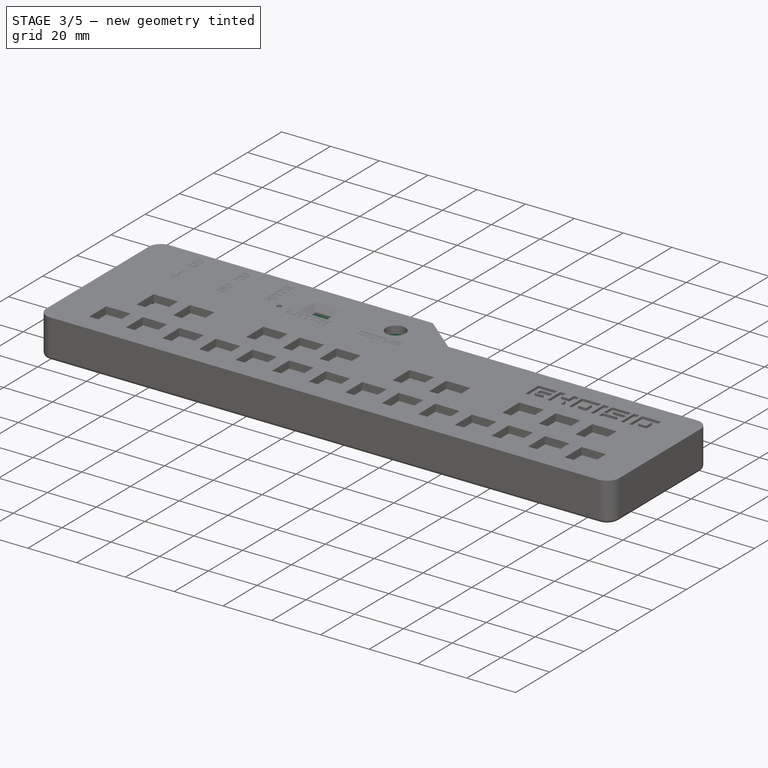
[diagram: stage 3 of 5 — iso view after this stage's code; geometry added in this stage tinted green]
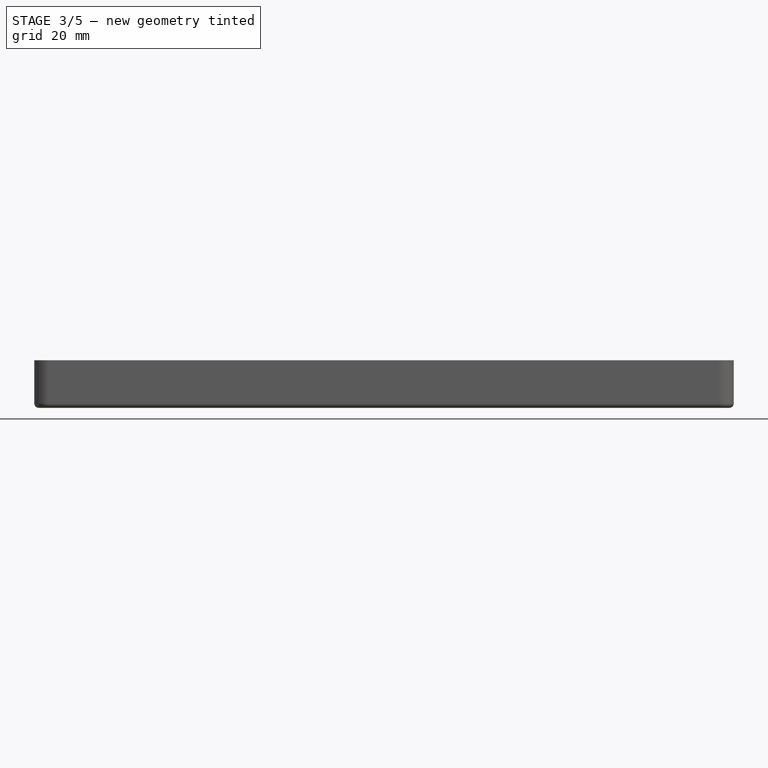
[diagram: stage 3 of 5 — front view after this stage's code; geometry added in this stage tinted green]
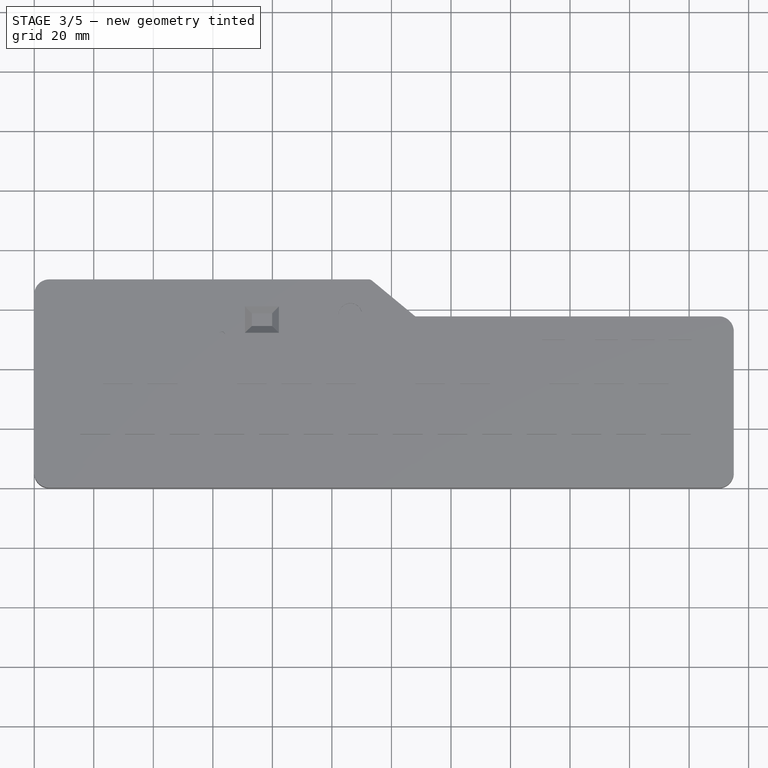
[diagram: stage 3 of 5 — top view after this stage's code; geometry added in this stage tinted green]
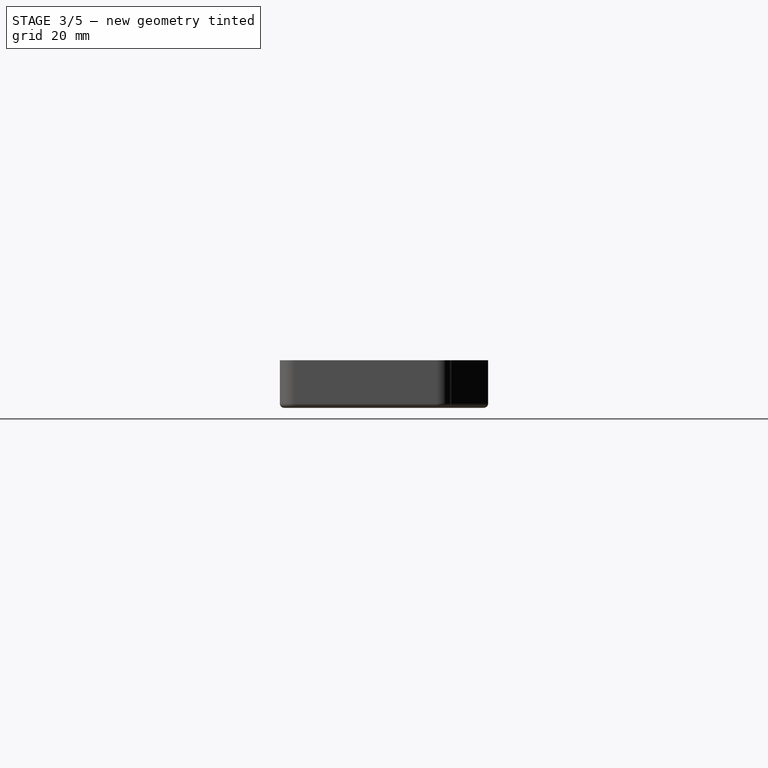
[diagram: stage 3 of 5 — right view after this stage's code; geometry added in this stage tinted green]
FEATURE [PartDesign::Pocket] Pocket
  BaseFeature = -> Pad
  Direction = (0,0,-1)
  Length = 14
  Length2 = 5
  Profile = -> Sketch
  ReferenceAxis = -> Sketch [N_Axis]
  Refine = true
  Suppressed = false
  Type = 0
FEATURE [Sketcher::SketchObject] Sketch002
  ArcFitTolerance = 0
  AttachmentOffset = pos=(0,0,13) rot=(0,0,1;0rad)
  AttachmentSupport = -> [XY_Plane001]
  FullyConstrained = true
  MakeInternals = false
  MapMode = 5
  Placement = pos=(0,0,13) rot=(0,0,1;0rad)
  sketch-geometry (145):
    g0: LineSegment StartX=6 StartY=1 StartZ=0 EndX=229 EndY=1 EndZ=0
    g1: LineSegment StartX=234 StartY=6 StartZ=0 EndX=234 EndY=51.6 EndZ=0
    g2: LineSegment StartX=229 StartY=56.6 StartZ=0 EndX=128 EndY=56.6 EndZ=0
    g3: LineSegment StartX=128 StartY=56.6 StartZ=0 EndX=113 EndY=69 EndZ=0
    g4: LineSegment StartX=113 StartY=69 StartZ=0 EndX=6 EndY=69 EndZ=0
    g5: LineSegment StartX=1 StartY=64 StartZ=0 EndX=1 EndY=6 EndZ=0
    g6: ArcOfCircle CenterX=229 CenterY=51.6 CenterZ=0 NormalX=0 NormalY=0 NormalZ=1 AngleXU=0 Radius=5 StartAngle=1e-16 EndAngle=1.5708
    g7: ArcOfCircle CenterX=229 CenterY=6 CenterZ=0 NormalX=0 NormalY=0 NormalZ=1 AngleXU=0 Radius=5 StartAngle=4.71239 EndAngle=6.28319
    g8: ArcOfCircle CenterX=6 CenterY=6 CenterZ=0 NormalX=0 NormalY=0 NormalZ=1 AngleXU=0 Radius=5 StartAngle=3.14159 EndAngle=4.71239
    g9: ArcOfCircle CenterX=6 CenterY=64 CenterZ=0 NormalX=0 NormalY=0 NormalZ=1 AngleXU=0 Radius=5 StartAngle=1.5708 EndAngle=3.14159
    g10: LineSegment [constr] StartX=10 StartY=7.5 StartZ=0 EndX=10 EndY=62.5 EndZ=0
    g11: LineSegment [constr] StartX=15 StartY=67.5 StartZ=0 EndX=112 EndY=67.5 EndZ=0
    g12: LineSegment [constr] StartX=112 StartY=67.5 StartZ=0 EndX=127 EndY=55.1 EndZ=0
    g13: LineSegment [constr] StartX=127 StartY=55.1 StartZ=0 EndX=220 EndY=55.1 EndZ=0
    g14: LineSegment [constr] StartX=225 StartY=50.1 StartZ=0 EndX=225 EndY=7.5 EndZ=0
    g15: LineSegment [constr] StartX=220 StartY=2.5 StartZ=0 EndX=15 EndY=2.5 EndZ=0
    g16: ArcOfCircle [constr] CenterX=15 CenterY=7.5 CenterZ=0 NormalX=0 NormalY=0 NormalZ=1 AngleXU=0 Radius=5 StartAngle=3.14159 EndAngle=4.71239
    g17: ArcOfCircle [constr] CenterX=15 CenterY=62.5 CenterZ=0 NormalX=0 NormalY=0 NormalZ=1 AngleXU=0 Radius=5 StartAngle=1.5708 EndAngle=3.14159
    g18: ArcOfCircle [constr] CenterX=220 CenterY=7.5 CenterZ=0 NormalX=0 NormalY=0 NormalZ=1 AngleXU=0 Radius=5 StartAngle=4.71239 EndAngle=6.28319
    g19: ArcOfCircle [constr] CenterX=220 CenterY=50.1 CenterZ=0 NormalX=0 NormalY=0 NormalZ=1 AngleXU=0 Radius=5 StartAngle=0 EndAngle=1.5708
    g20: LineSegment StartX=15.5 StartY=8 StartZ=0 EndX=25.5 EndY=8 EndZ=0
    g21: LineSegment StartX=25.5 StartY=8 StartZ=0 EndX=25.5 EndY=18 EndZ=0
    g22: LineSegment StartX=25.5 StartY=18 StartZ=0 EndX=15.5 EndY=18 EndZ=0
    g23: LineSegment StartX=15.5 StartY=18 StartZ=0 EndX=15.5 EndY=8 EndZ=0
    g24: LineSegment StartX=30.5 StartY=8 StartZ=0 EndX=40.5 EndY=8 EndZ=0
    g25: LineSegment StartX=40.5 StartY=8 StartZ=0 EndX=40.5 EndY=18 EndZ=0
    g26: LineSegment StartX=40.5 StartY=18 StartZ=0 EndX=30.5 EndY=18 EndZ=0
    g27: LineSegment StartX=30.5 StartY=18 StartZ=0 EndX=30.5 EndY=8 EndZ=0
    g28: LineSegment StartX=45.5 StartY=8 StartZ=0 EndX=55.5 EndY=8 EndZ=0
    g29: LineSegment StartX=55.5 StartY=8 StartZ=0 EndX=55.5 EndY=18 EndZ=0
    g30: LineSegment StartX=55.5 StartY=18 StartZ=0 EndX=45.5 EndY=18 EndZ=0
    g31: LineSegment StartX=45.5 StartY=18 StartZ=0 EndX=45.5 EndY=8 EndZ=0
    g32: LineSegment StartX=60.5 StartY=8 StartZ=0 EndX=70.5 EndY=8 EndZ=0
    g33: LineSegment StartX=70.5 StartY=8 StartZ=0 EndX=70.5 EndY=18 EndZ=0
    g34: LineSegment StartX=70.5 StartY=18 StartZ=0 EndX=60.5 EndY=18 EndZ=0
    g35: LineSegment StartX=60.5 StartY=18 StartZ=0 EndX=60.5 EndY=8 EndZ=0
    g36: LineSegment StartX=75.5 StartY=8 StartZ=0 EndX=85.5 EndY=8 EndZ=0
    g37: LineSegment StartX=85.5 StartY=8 StartZ=0 EndX=85.5 EndY=18 EndZ=0
    g38: LineSegment StartX=85.5 StartY=18 StartZ=0 EndX=75.5 EndY=18 EndZ=0
    g39: LineSegment StartX=75.5 StartY=18 StartZ=0 EndX=75.5 EndY=8 EndZ=0
    g40: LineSegment StartX=90.5 StartY=8 StartZ=0 EndX=100.5 EndY=8 EndZ=0
    g41: LineSegment StartX=100.5 StartY=8 StartZ=0 EndX=100.5 EndY=18 EndZ=0
    g42: LineSegment StartX=100.5 StartY=18 StartZ=0 EndX=90.5 EndY=18 EndZ=0
    g43: LineSegment StartX=90.5 StartY=18 StartZ=0 EndX=90.5 EndY=8 EndZ=0
    g44: LineSegment StartX=105.5 StartY=8 StartZ=0 EndX=115.5 EndY=8 EndZ=0
    g45: LineSegment StartX=115.5 StartY=8 StartZ=0 EndX=115.5 EndY=18 EndZ=0
    g46: LineSegment StartX=115.5 StartY=18 StartZ=0 EndX=105.5 EndY=18 EndZ=0
    g47: LineSegment StartX=105.5 StartY=18 StartZ=0 EndX=105.5 EndY=8 EndZ=0
    g48: LineSegment StartX=120.5 StartY=8 StartZ=0 EndX=130.5 EndY=8 EndZ=0
    g49: LineSegment StartX=130.5 StartY=8 StartZ=0 EndX=130.5 EndY=18 EndZ=0
    g50: LineSegment StartX=130.5 StartY=18 StartZ=0 EndX=120.5 EndY=18 EndZ=0
    g51: LineSegment StartX=120.5 StartY=18 StartZ=0 EndX=120.5 EndY=8 EndZ=0
    g52: LineSegment StartX=135.5 StartY=8 StartZ=0 EndX=145.5 EndY=8 EndZ=0
    g53: LineSegment StartX=145.5 StartY=8 StartZ=0 EndX=145.5 EndY=18 EndZ=0
    g54: LineSegment StartX=145.5 StartY=18 StartZ=0 EndX=135.5 EndY=18 EndZ=0
    g55: LineSegment StartX=135.5 StartY=18 StartZ=0 EndX=135.5 EndY=8 EndZ=0
    g56: LineSegment StartX=150.5 StartY=8 StartZ=0 EndX=160.5 EndY=8 EndZ=0
    g57: LineSegment StartX=160.5 StartY=8 StartZ=0 EndX=160.5 EndY=18 EndZ=0
    g58: LineSegment StartX=160.5 StartY=18 StartZ=0 EndX=150.5 EndY=18 EndZ=0
    g59: LineSegment StartX=150.5 StartY=18 StartZ=0 EndX=150.5 EndY=8 EndZ=0
    g60: LineSegment StartX=165.5 StartY=8 StartZ=0 EndX=175.5 EndY=8 EndZ=0
    g61: LineSegment StartX=175.5 StartY=8 StartZ=0 EndX=175.5 EndY=18 EndZ=0
    g62: LineSegment StartX=175.5 StartY=18 StartZ=0 EndX=165.5 EndY=18 EndZ=0
    g63: LineSegment StartX=165.5 StartY=18 StartZ=0 EndX=165.5 EndY=8 EndZ=0
    g64: LineSegment StartX=180.5 StartY=8 StartZ=0 EndX=190.5 EndY=8 EndZ=0
    g65: LineSegment StartX=190.5 StartY=8 StartZ=0 EndX=190.5 EndY=18 EndZ=0
    g66: LineSegment StartX=190.5 StartY=18 StartZ=0 EndX=180.5 EndY=18 EndZ=0
    g67: LineSegment StartX=180.5 StartY=18 StartZ=0 EndX=180.5 EndY=8 EndZ=0
    g68: LineSegment StartX=195.5 StartY=8 StartZ=0 EndX=205.5 EndY=8 EndZ=0
    g69: LineSegment StartX=205.5 StartY=8 StartZ=0 EndX=205.5 EndY=18 EndZ=0
    g70: LineSegment StartX=205.5 StartY=18 StartZ=0 EndX=195.5 EndY=18 EndZ=0
    g71: LineSegment StartX=195.5 StartY=18 StartZ=0 EndX=195.5 EndY=8 EndZ=0
    g72: LineSegment StartX=210.5 StartY=8 StartZ=0 EndX=220.5 EndY=8 EndZ=0
    g73: LineSegment StartX=220.5 StartY=8 StartZ=0 EndX=220.5 EndY=18 EndZ=0
    g74: LineSegment StartX=220.5 StartY=18 StartZ=0 EndX=210.5 EndY=18 EndZ=0
    g75: LineSegment StartX=210.5 StartY=18 StartZ=0 EndX=210.5 EndY=8 EndZ=0
    g76: LineSegment StartX=33 StartY=35 StartZ=0 EndX=33 EndY=25 EndZ=0
    g77: LineSegment StartX=33 StartY=25 StartZ=0 EndX=23 EndY=25 EndZ=0
    g78: LineSegment StartX=23 StartY=25 StartZ=0 EndX=23 EndY=35 EndZ=0
    g79: LineSegment StartX=23 StartY=35 StartZ=0 EndX=33 EndY=35 EndZ=0
    g80: GeomPoint [constr] X=28 Y=30 Z=0
    g81: LineSegment [constr] StartX=10 StartY=25 StartZ=0 EndX=225 EndY=25 EndZ=0
    g82: LineSegment StartX=38 StartY=35 StartZ=0 EndX=38 EndY=25 EndZ=0
    g83: LineSegment StartX=38 StartY=25 StartZ=0 EndX=48 EndY=25 EndZ=0
    g84: LineSegment StartX=48 StartY=25 StartZ=0 EndX=48 EndY=35 EndZ=0
    g85: LineSegment StartX=48 StartY=35 StartZ=0 EndX=38 EndY=35 EndZ=0
    g86: GeomPoint [constr] X=43 Y=30 Z=0
    g87: LineSegment StartX=68 StartY=35 StartZ=0 EndX=68 EndY=25 EndZ=0
    g88: LineSegment StartX=68 StartY=25 StartZ=0 EndX=78 EndY=25 EndZ=0
    g89: LineSegment StartX=78 StartY=25 StartZ=0 EndX=78 EndY=35 EndZ=0
    g90: LineSegment StartX=78 StartY=35 StartZ=0 EndX=68 EndY=35 EndZ=0
    g91: GeomPoint [constr] X=73 Y=30 Z=0
    g92: LineSegment StartX=83 StartY=35 StartZ=0 EndX=83 EndY=25 EndZ=0
    g93: LineSegment StartX=83 StartY=25 StartZ=0 EndX=93 EndY=25 EndZ=0
    g94: LineSegment StartX=93 StartY=25 StartZ=0 EndX=93 EndY=35 EndZ=0
    g95: LineSegment StartX=93 StartY=35 StartZ=0 EndX=83 EndY=35 EndZ=0
    g96: GeomPoint [constr] X=88 Y=30 Z=0
    g97: LineSegment StartX=98 StartY=35 StartZ=0 EndX=98 EndY=25 EndZ=0
    g98: LineSegment StartX=98 StartY=25 StartZ=0 EndX=108 EndY=25 EndZ=0
    g99: LineSegment StartX=108 StartY=25 StartZ=0 EndX=108 EndY=35 EndZ=0
    g100: LineSegment StartX=108 StartY=35 StartZ=0 EndX=98 EndY=35 EndZ=0
    g101: GeomPoint [constr] X=103 Y=30 Z=0
    g102: LineSegment StartX=128 StartY=35 StartZ=0 EndX=128 EndY=25 EndZ=0
    g103: LineSegment StartX=128 StartY=25 StartZ=0 EndX=138 EndY=25 EndZ=0
    g104: LineSegment StartX=138 StartY=25 StartZ=0 EndX=138 EndY=35 EndZ=0
    g105: LineSegment StartX=138 StartY=35 StartZ=0 EndX=128 EndY=35 EndZ=0
    g106: GeomPoint [constr] X=133 Y=30 Z=0
    g107: LineSegment StartX=143 StartY=35 StartZ=0 EndX=143 EndY=25 EndZ=0
    g108: LineSegment StartX=143 StartY=25 StartZ=0 EndX=153 EndY=25 EndZ=0
    g109: LineSegment StartX=153 StartY=25 StartZ=0 EndX=153 EndY=35 EndZ=0
    g110: LineSegment StartX=153 StartY=35 StartZ=0 EndX=143 EndY=35 EndZ=0
    g111: GeomPoint [constr] X=148 Y=30 Z=0
    g112: LineSegment StartX=173 StartY=35 StartZ=0 EndX=173 EndY=25 EndZ=0
    g113: LineSegment StartX=173 StartY=25 StartZ=0 EndX=183 EndY=25 EndZ=0
    g114: LineSegment StartX=183 StartY=25 StartZ=0 EndX=183 EndY=35 EndZ=0
    g115: LineSegment StartX=183 StartY=35 StartZ=0 EndX=173 EndY=35 EndZ=0
    g116: GeomPoint [constr] X=178 Y=30 Z=0
    g117: LineSegment StartX=188 StartY=35 StartZ=0 EndX=188 EndY=25 EndZ=0
    g118: LineSegment StartX=188 StartY=25 StartZ=0 EndX=198 EndY=25 EndZ=0
    g119: LineSegment StartX=198 StartY=25 StartZ=0 EndX=198 EndY=35 EndZ=0
    g120: LineSegment StartX=198 StartY=35 StartZ=0 EndX=188 EndY=35 EndZ=0
    g121: GeomPoint [constr] X=193 Y=30 Z=0
    g122: LineSegment StartX=203 StartY=35 StartZ=0 EndX=203 EndY=25 EndZ=0
    g123: LineSegment StartX=203 StartY=25 StartZ=0 EndX=213 EndY=25 EndZ=0
    g124: LineSegment StartX=213 StartY=25 StartZ=0 EndX=213 EndY=35 EndZ=0
    g125: LineSegment StartX=213 StartY=35 StartZ=0 EndX=203 EndY=35 EndZ=0
    g126: GeomPoint [constr] X=208 Y=30 Z=0
    g127: Circle CenterX=106.2 CenterY=58 CenterZ=0 NormalX=0 NormalY=0 NormalZ=1 AngleXU=0 Radius=4
    g128: LineSegment [constr] StartX=101.25 StartY=63.95 StartZ=0 EndX=101.25 EndY=52.05 EndZ=0
    g129: LineSegment [constr] StartX=101.25 StartY=52.05 StartZ=0 EndX=111.15 EndY=52.05 EndZ=0
    g130: LineSegment [constr] StartX=111.15 StartY=52.05 StartZ=0 EndX=111.15 EndY=63.95 EndZ=0
    g131: LineSegment [constr] StartX=111.15 StartY=63.95 StartZ=0 EndX=101.25 EndY=63.95 EndZ=0
    g132: GeomPoint [constr] X=106.2 Y=58 Z=0
    g133: LineSegment [constr] StartX=70.5 StartY=59.3 StartZ=0 EndX=70.5 EndY=53.75 EndZ=0
    g134: LineSegment [constr] StartX=70.5 StartY=53.75 StartZ=0 EndX=82.5 EndY=53.75 EndZ=0
    g135: LineSegment [constr] StartX=82.5 StartY=53.75 StartZ=0 EndX=82.5 EndY=59.3 EndZ=0
    g136: LineSegment [constr] StartX=82.5 StartY=59.3 StartZ=0 EndX=70.5 EndY=59.3 EndZ=0
    g137: GeomPoint [constr] X=76.5 Y=56.525 Z=0
    g138: LineSegment StartX=73.1 StartY=58.65 StartZ=0 EndX=73.1 EndY=54.4 EndZ=0
    g139: LineSegment StartX=73.1 StartY=54.4 StartZ=0 EndX=79.9 EndY=54.4 EndZ=0
    g140: LineSegment StartX=79.9 StartY=54.4 StartZ=0 EndX=79.9 EndY=58.65 EndZ=0
    g141: LineSegment StartX=79.9 StartY=58.65 StartZ=0 EndX=73.1 EndY=58.65 EndZ=0
    g142: GeomPoint [constr] X=76.5 Y=56.525 Z=0
    g143: LineSegment [constr] StartX=10 StartY=8 StartZ=0 EndX=225 EndY=8 EndZ=0
    g144: Circle CenterX=63 CenterY=51.5 CenterZ=0 NormalX=0 NormalY=0 NormalZ=1 AngleXU=0 Radius=1
  constraints (401):
    c: Horizontal(g0)
    c: Vertical(g1)
    c: Horizontal(g2)
    c: Coincident(g2,g3)
    c: Coincident(g3,g4)
    c: Horizontal(g4)
    c: Vertical(g5)
    c: Diameter(g6) = 10
    c: Tangent(g2,g6) = -1.5708
    c: Tangent(g1,g6) = -1.5708
    c: Diameter(g7) = 10
    c: Diameter(g8) = 10
    c: Diameter(g9) = 10
    c: Tangent(g8,g0) = -1.5708
    c: Tangent(g8,g5) = -1.5708
    c: Tangent(g0,g7) = -1.5708
    c: Tangent(g1,g7) = -1.5708
    c: DistanceX(g0,g0) = 223
    c: DistanceY(g1,g1) = 45.6
    c: Tangent(g5,g9) = -1.5708
    c: Tangent(g4,g9) = -1.5708
    c: DistanceX(g4,g4) = 107
    c: DistanceY(g5,g5) = 58
    c: DistanceX(g2,g2) = 101
    c: Vertical(g10)
    c: Horizontal(g11)
    c: Coincident(g11,g12)
    c: Coincident(g12,g13)
    c: Horizontal(g13)
    c: Vertical(g14)
    c: Horizontal(g15)
    c: Diameter(g16) = 10
    c: Diameter(g17) = 10
    c: Diameter(g18) = 10
    c: Diameter(g19) = 10
    c: Tangent(g13,g19) = 1.5708
    c: Tangent(g14,g19) = 1.5708
    c: Tangent(g15,g18) = 1.5708
    c: Tangent(g14,g18) = 1.5708
    c: Tangent(g15,g16) = 1.5708
    c: Tangent(g10,g16) = 1.5708
    c: Tangent(g10,g17) = 1.5708
    c: Tangent(g11,g17) = 1.5708
    c: DistanceX(g15,g15) = 205
    c: DistanceX(g-1,g10) = 10
    c: DistanceY(g-1,g15) = 2.5
    c: DistanceY(g10,g10) = 55
    c: DistanceY(g14,g14) = 42.6
    c: DistanceX(g13,g13) = 93
    c: DistanceX(g11,g11) = 97
    c: Coincident(g20,g21)
    c: Coincident(g21,g22)
    c: Coincident(g22,g23)
    c: Coincident(g23,g20)
    c: Horizontal(g20)
    c: Horizontal(g22)
    c: Vertical(g21)
    c: Vertical(g23)
    c: DistanceY(g21,g21) = 10
    c: DistanceX(g20,g20) = 10
    c: DistanceX(g10,g20) = 5.5
    c: DistanceY(g15,g20) = 5.5
    c: Coincident(g24,g25)
    c: Coincident(g25,g26)
    c: Coincident(g26,g27)
    c: Coincident(g27,g24)
    c: Horizontal(g24)
    c: Horizontal(g26)
    c: Vertical(g25)
    c: Vertical(g27)
    c: Coincident(g28,g29)
    c: Coincident(g29,g30)
    c: Coincident(g30,g31)
    c: Coincident(g31,g28)
    c: Horizontal(g28)
    c: Horizontal(g30)
    c: Vertical(g29)
    c: Vertical(g31)
    c: Coincident(g32,g33)
    c: Coincident(g33,g34)
    c: Coincident(g34,g35)
    c: Coincident(g35,g32)
    c: Horizontal(g32)
    c: Horizontal(g34)
    c: Vertical(g33)
    c: Vertical(g35)
    c: Coincident(g36,g37)
    c: Coincident(g37,g38)
    c: Coincident(g38,g39)
    c: Coincident(g39,g36)
    c: Horizontal(g36)
    c: Horizontal(g38)
    c: Vertical(g37)
    c: Vertical(g39)
    c: DistanceX(g26,g26) = 10
    c: DistanceX(g30,g30) = 10
    c: DistanceX(g34,g34) = 10
    c: DistanceX(g38,g38) = 10
    c: DistanceY(g25,g25) = 10
    c: DistanceY(g29,g29) = 10
    c: DistanceY(g33,g33) = 10
    c: DistanceY(g37,g37) = 10
    c: DistanceX(g20,g24) = 5
    c: DistanceX(g25,g30) = 5
    c: DistanceX(g29,g34) = 5
    c: DistanceX(g33,g38) = 5
    c: Coincident(g40,g41)
    c: Coincident(g41,g42)
    c: Coincident(g42,g43)
    c: Coincident(g43,g40)
    c: Horizontal(g40)
    c: Horizontal(g42)
    c: Vertical(g41)
    c: Vertical(g43)
    c: Coincident(g44,g45)
    c: Coincident(g45,g46)
    c: Coincident(g46,g47)
    c: Coincident(g47,g44)
    c: Horizontal(g44)
    c: Horizontal(g46)
    c: Vertical(g45)
    c: Vertical(g47)
    c: Coincident(g48,g49)
    c: Coincident(g49,g50)
    c: Coincident(g50,g51)
    c: Coincident(g51,g48)
    c: Horizontal(g48)
    c: Horizontal(g50)
    c: Vertical(g49)
    c: Vertical(g51)
    c: Coincident(g52,g53)
    c: Coincident(g53,g54)
    c: Coincident(g54,g55)
    c: Coincident(g55,g52)
    c: Horizontal(g52)
    c: Horizontal(g54)
    c: Vertical(g53)
    c: Vertical(g55)
    c: Coincident(g56,g57)
    c: Coincident(g57,g58)
    c: Coincident(g58,g59)
    c: Coincident(g59,g56)
    c: Horizontal(g56)
    c: Horizontal(g58)
    c: Vertical(g57)
    c: Vertical(g59)
    c: Coincident(g60,g61)
    c: Coincident(g61,g62)
    c: Coincident(g62,g63)
    c: Coincident(g63,g60)
    c: Horizontal(g60)
    c: Horizontal(g62)
    c: Vertical(g61)
    c: Vertical(g63)
    c: Coincident(g64,g65)
    c: Coincident(g65,g66)
    c: Coincident(g66,g67)
    c: Coincident(g67,g64)
    c: Horizontal(g64)
    c: Horizontal(g66)
    c: Vertical(g65)
    c: Vertical(g67)
    c: Coincident(g68,g69)
    c: Coincident(g69,g70)
    c: Coincident(g70,g71)
    c: Coincident(g71,g68)
    c: Horizontal(g68)
    c: Horizontal(g70)
    c: Vertical(g69)
    c: Vertical(g71)
    c: Coincident(g72,g73)
    c: Coincident(g73,g74)
    c: Coincident(g74,g75)
    c: Coincident(g75,g72)
    c: Horizontal(g72)
    c: Horizontal(g74)
    c: Vertical(g73)
    c: Vertical(g75)
    c: DistanceX(g40,g40) = 10
    c: DistanceX(g44,g44) = 10
    c: DistanceX(g48,g48) = 10
    c: DistanceX(g52,g52) = 10
    c: DistanceX(g56,g56) = 10
    c: DistanceX(g60,g60) = 10
    c: DistanceX(g72,g72) = 10
    c: DistanceX(g64,g64) = 10
    c: DistanceX(g68,g68) = 10
    c: Equal(g41,g45)
    c: Equal(g45,g49)
    c: Equal(g49,g53)
    c: Equal(g53,g57)
    c: Equal(g57,g61)
    c: Equal(g61,g65)
    c: Equal(g65,g69)
    c: Equal(g69,g73)
    c: DistanceY(g41,g41) = 10
    c: DistanceX(g37,g42) = 5
    c: DistanceX(g41,g46) = 5
    c: DistanceX(g45,g50) = 5
    c: DistanceX(g49,g54) = 5
    c: DistanceX(g53,g58) = 5
    c: DistanceX(g57,g62) = 5
    c: DistanceX(g61,g66) = 5
    c: DistanceX(g65,g70) = 5
    c: DistanceX(g69,g74) = 5
    c: Coincident(g76,g77)
    c: Coincident(g77,g78)
    c: Coincident(g78,g79)
    c: Coincident(g79,g76)
    c: Horizontal(g77)
    c: Horizontal(g79)
    c: Vertical(g76)
    c: Vertical(g78)
    c: Symmetric(g77,g76,g80)
    c: DistanceX(g10,g80) = 18
    c: DistanceX(g77,g77) = 10
    c: DistanceY(g78,g78) = 10
    c: PointOnObject(g81,g10)
    c: PointOnObject(g81,g14)
    c: Horizontal(g81)
    c: DistanceY(g15,g81) = 22.5
    c: PointOnObject(g77,g81)
    c: Coincident(g82,g83)
    c: Coincident(g83,g84)
    c: Coincident(g84,g85)
    c: Coincident(g85,g82)
    c: Horizontal(g83)
    c: Horizontal(g85)
    c: Vertical(g82)
    c: Vertical(g84)
    c: Symmetric(g83,g82,g86)
    c: Equal(g82,g78)
    c: Equal(g83,g77)
    c: DistanceX(g80,g86) = 15
    c: PointOnObject(g82,g81)
    c: Coincident(g87,g88)
    c: Coincident(g88,g89)
    c: Coincident(g89,g90)
    c: Coincident(g90,g87)
    c: Horizontal(g88)
    c: Horizontal(g90)
    c: Vertical(g87)
    c: Vertical(g89)
    c: Symmetric(g88,g87,g91)
    c: Coincident(g92,g93)
    c: Coincident(g93,g94)
    c: Coincident(g94,g95)
    c: Coincident(g95,g92)
    c: Horizontal(g93)
    c: Horizontal(g95)
    c: Vertical(g92)
    c: Vertical(g94)
    c: Symmetric(g93,g92,g96)
    c: Coincident(g97,g98)
    c: Coincident(g98,g99)
    c: Coincident(g99,g100)
    c: Coincident(g100,g97)
    c: Horizontal(g98)
    c: Horizontal(g100)
    c: Vertical(g97)
    c: Vertical(g99)
    c: Symmetric(g98,g97,g101)
    c: Coincident(g102,g103)
    c: Coincident(g103,g104)
    c: Coincident(g104,g105)
    c: Coincident(g105,g102)
    c: Horizontal(g103)
    c: Horizontal(g105)
    c: Vertical(g102)
    c: Vertical(g104)
    c: Symmetric(g103,g102,g106)
    c: Coincident(g107,g108)
    c: Coincident(g108,g109)
    c: Coincident(g109,g110)
    c: Coincident(g110,g107)
    c: Horizontal(g108)
    c: Horizontal(g110)
    c: Vertical(g107)
    c: Vertical(g109)
    c: Symmetric(g108,g107,g111)
    c: Coincident(g112,g113)
    c: Coincident(g113,g114)
    c: Coincident(g114,g115)
    c: Coincident(g115,g112)
    c: Horizontal(g113)
    c: Horizontal(g115)
    c: Vertical(g112)
    c: Vertical(g114)
    c: Symmetric(g113,g112,g116)
    c: Coincident(g117,g118)
    c: Coincident(g118,g119)
    c: Coincident(g119,g120)
    c: Coincident(g120,g117)
    c: Horizontal(g118)
    c: Horizontal(g120)
    c: Vertical(g117)
    c: Vertical(g119)
    c: Symmetric(g118,g117,g121)
    c: Coincident(g122,g123)
    c: Coincident(g123,g124)
    c: Coincident(g124,g125)
    c: Coincident(g125,g122)
    c: Horizontal(g123)
    c: Horizontal(g125)
    c: Vertical(g122)
    c: Vertical(g124)
    c: Symmetric(g123,g122,g126)
    c: Equal(g88,g93)
    c: Equal(g93,g83)
    c: Equal(g83,g98)
    c: Equal(g98,g103)
    c: Equal(g103,g108)
    c: Equal(g108,g113)
    c: Equal(g113,g118)
    c: Equal(g118,g123)
    c: Equal(g82,g87)
    c: Equal(g87,g92)
    c: Equal(g92,g97)
    c: Equal(g97,g102)
    c: Equal(g102,g107)
    c: Equal(g107,g112)
    c: Equal(g112,g117)
    c: Equal(g117,g122)
    c: PointOnObject(g87,g81)
    c: PointOnObject(g92,g81)
    c: PointOnObject(g97,g81)
    c: PointOnObject(g102,g81)
    c: PointOnObject(g107,g81)
    c: PointOnObject(g112,g81)
    c: PointOnObject(g117,g81)
    c: PointOnObject(g122,g81)
    c: DistanceX(g89,g92) = 5
    c: DistanceX(g94,g97) = 5
    c: DistanceX(g104,g107) = 5
    c: DistanceX(g114,g117) = 5
    c: DistanceX(g119,g122) = 5
    c: DistanceX(g84,g87) = 20
    c: DistanceX(g99,g102) = 20
    c: DistanceX(g109,g112) = 20
    c: Diameter(g127) = 8
    c: DistanceY(g127,g11) = 9.5
    c: DistanceX(g127,g11) = 5.8
    c: Coincident(g128,g129)
    c: Coincident(g129,g130)
    c: Coincident(g130,g131)
    c: Coincident(g131,g128)
    c: Horizontal(g129)
    c: Horizontal(g131)
    c: Vertical(g128)
    c: Vertical(g130)
    c: Symmetric(g129,g128,g132)
    c: Coincident(g132,g127)
    c: DistanceX(g129,g129) = 9.9
    c: DistanceY(g130,g130) = 11.9
    c: Coincident(g133,g134)
    c: Coincident(g134,g135)
    c: Coincident(g135,g136)
    c: Coincident(g136,g133)
    c: Horizontal(g134)
    c: Horizontal(g136)
    c: Vertical(g133)
    c: Vertical(g135)
    c: Symmetric(g134,g133,g137)
    c: DistanceX(g10,g134) = 72.5
    c: DistanceX(g134,g134) = 12
    c: DistanceY(g135,g135) = 5.55
    c: DistanceY(g135,g11) = 8.2
    c: Coincident(g138,g139)
    c: Coincident(g139,g140)
    c: Coincident(g140,g141)
    c: Coincident(g141,g138)
    c: Horizontal(g139)
    c: Horizontal(g141)
    c: Vertical(g138)
    c: Vertical(g140)
    c: Symmetric(g139,g138,g142)
    c: Coincident(g142,g137)
    c: DistanceX(g139,g139) = 6.8
    c: DistanceY(g140,g140) = 4.25
    c: DistanceY(g-1,g0) = 1
    c: DistanceX(g-1,g5) = 1
    c: Horizontal(g143)
    c: DistanceX(g143,g143) = 215
    c: PointOnObject(g143,g10)
    c: DistanceY(g15,g143) = 5.5
    c: PointOnObject(g40,g143)
    c: PointOnObject(g36,g143)
    c: PointOnObject(g32,g143)
    c: PointOnObject(g28,g143)
    c: PointOnObject(g24,g143)
    c: PointOnObject(g44,g143)
    c: PointOnObject(g48,g143)
    c: PointOnObject(g52,g143)
    c: PointOnObject(g56,g143)
    c: PointOnObject(g60,g143)
    c: PointOnObject(g64,g143)
    c: PointOnObject(g68,g143)
    c: PointOnObject(g72,g143)
    c: DistanceY(g144,g11) = 16
    c: DistanceX(g10,g144) = 53
    c: Diameter(g144) = 2
FEATURE [Sketcher::SketchObject] Sketch009
  ArcFitTolerance = 0
  FullyConstrained = true
  MakeInternals = false
  MapMode = 5
  Placement = pos=(0,67,-1) rot=(1,0,0;1.5708rad)
  sketch-geometry (4):
    g0: Circle CenterX=22.5 CenterY=8.5 CenterZ=0 NormalX=0 NormalY=0 NormalZ=1 AngleXU=0 Radius=3.5
    g1: Circle CenterX=40 CenterY=8.5 CenterZ=0 NormalX=0 NormalY=0 NormalZ=1 AngleXU=0 Radius=3.5
    g2: Circle CenterX=57.5 CenterY=8.5 CenterZ=0 NormalX=0 NormalY=0 NormalZ=1 AngleXU=0 Radius=3.5
    g3: LineSegment [constr] StartX=22.5 StartY=8.5 StartZ=0 EndX=57.5 EndY=8.5 EndZ=0
  constraints (11):
    c: Equal(g0,g1)
    c: Equal(g1,g2)
    c: Diameter(g0) = 7
    c: Horizontal(g3)
    c: Coincident(g3,g0)
    c: Coincident(g2,g3)
    c: PointOnObject(g1,g3)
    c: DistanceX(g0,g1) = 17.5
    c: DistanceX(g1,g2) = 17.5
    c: DistanceX(g-1,g0) = 22.5
    c: DistanceY(g-1,g0) = 8.5
FEATURE [PartDesign::Pocket] Pocket001
  BaseFeature = -> Pocket
  Direction = (0,1,-2e-16)
  Length = 5
  Length2 = 5
  Profile = -> Sketch009
  ReferenceAxis = -> Sketch009 [N_Axis]
  Refine = true
  Suppressed = false
  Type = 0
FEATURE [PartDesign::Fillet] Fillet
  Base = -> Pocket001 [Face4]
  BaseFeature = -> Pocket001
  Radius = 1.5
  Refine = true
  SupportTransform = false
  Suppressed = false
  UseAllEdges = false
FEATURE [PartDesign::Fillet] Fillet001
  Base = -> Fillet [Edge50]
  BaseFeature = -> Fillet
  Radius = 1.5
  Refine = true
  SupportTransform = false
  Suppressed = false
  UseAllEdges = false
FEATURE [PartDesign::Body] Body003  label="Taste"
  AllowCompound = false
  Group = -> [Sketch015,Pad015,Sketch016,Sketch017,AdditiveLoft,Sketch018,Pad016]
  Origin = -> Origin003
  Placement = pos=(7.5,0,12) rot=(0,0,1;0rad)
  Tip = -> Pad016
FEATURE [Sketcher::SketchObject] Sketch020
  ArcFitTolerance = 1e-06
  AttachmentOffset = pos=(0,0,-58) rot=(0,0,1;0rad)
  AttachmentSupport = -> [XZ_Plane]
  FullyConstrained = true
  MakeInternals = false
  MapMode = 5
  Placement = pos=(0,58,-1.29e-14) rot=(1,0,0;1.5708rad)
  sketch-geometry (6):
    g0: LineSegment StartX=2 StartY=7.8 StartZ=0 EndX=2 EndY=2 EndZ=0
    g1: LineSegment StartX=10 StartY=5.3 StartZ=0 EndX=13 EndY=5.3 EndZ=0
    g2: LineSegment StartX=13 StartY=5.3 StartZ=0 EndX=13 EndY=7.8 EndZ=0
    g3: LineSegment StartX=13 StartY=7.8 StartZ=0 EndX=2 EndY=7.8 EndZ=0
    g4: LineSegment StartX=2 StartY=2 StartZ=0 EndX=10 EndY=2 EndZ=0
    g5: LineSegment StartX=10 StartY=2 StartZ=0 EndX=10 EndY=5.3 EndZ=0
  constraints (18):
    c: Coincident(g1,g2)
    c: Coincident(g2,g3)
    c: Coincident(g3,g0)
    c: Vertical(g2)
    c: Horizontal(g1)
    c: Horizontal(g3)
    c: Coincident(g4,g5)
    c: Vertical(g5)
    c: Horizontal(g4)
    c: Coincident(g4,g0)
    c: DistanceY(g-1,g0) = 7.8
    c: DistanceX(g-1,g0) = 2
    c: DistanceX(g3,g3) = 11
    c: DistanceX(g4,g4) = 8
    c: DistanceY(g2,g2) = 2.5
    c: Coincident(g5,g1)
    c: Vertical(g0)
    c: DistanceY(g5,g5) = 3.3
FEATURE [PartDesign::Pad] Pad017
  BaseFeature = -> Fillet001
  Direction = (0,-1,2e-16)
  Length = 10
  Length2 = 10
  Midplane = true
  Profile = -> Sketch020
  ReferenceAxis = -> Sketch020 [N_Axis]
  Refine = true
  Suppressed = false
  Type = 0
FEATURE [Sketcher::SketchObject] Sketch021
  ArcFitTolerance = 1e-06
  AttachmentOffset = pos=(0,0,-7) rot=(0,0,1;0rad)
  AttachmentSupport = -> [XZ_Plane]
  FullyConstrained = true
  MakeInternals = false
  MapMode = 5
  Placement = pos=(0,7,-1.6e-15) rot=(1,0,0;1.5708rad)
  sketch-geometry (6):
    g0: LineSegment StartX=2 StartY=7.8 StartZ=0 EndX=2 EndY=2 EndZ=0
    g1: LineSegment StartX=10 StartY=5.3 StartZ=0 EndX=13 EndY=5.3 EndZ=0
    g2: LineSegment StartX=13 StartY=5.3 StartZ=0 EndX=13 EndY=7.8 EndZ=0
    g3: LineSegment StartX=13 StartY=7.8 StartZ=0 EndX=2 EndY=7.8 EndZ=0
    g4: LineSegment StartX=2 StartY=2 StartZ=0 EndX=10 EndY=2 EndZ=0
    g5: LineSegment StartX=10 StartY=2 StartZ=0 EndX=10 EndY=5.3 EndZ=0
  constraints (18):
    c: Coincident(g1,g2)
    c: Coincident(g2,g3)
    c: Coincident(g3,g0)
    c: Vertical(g2)
    c: Horizontal(g1)
    c: Horizontal(g3)
    c: Coincident(g4,g5)
    c: Vertical(g5)
    c: Horizontal(g4)
    c: Coincident(g4,g0)
    c: DistanceY(g-1,g0) = 7.8
    c: DistanceX(g-1,g0) = 2
    c: DistanceX(g3,g3) = 11
    c: DistanceX(g4,g4) = 8
    c: DistanceY(g2,g2) = 2.5
    c: Coincident(g5,g1)
    c: Vertical(g0)
    c: DistanceY(g5,g5) = 3.3
FEATURE [PartDesign::Pad] Pad018
  BaseFeature = -> Pad017
  Direction = (0,-1,2e-16)
  Length = 10
  Length2 = 10
  Profile = -> Sketch021
  ReferenceAxis = -> Sketch021 [N_Axis]
  Refine = true
  Reversed = true
  Suppressed = false
  Type = 0
FEATURE [Sketcher::SketchObject] MirroredSketch003
  ArcFitTolerance = 1e-06
  FullyConstrained = true
  MakeInternals = false
  Placement = pos=(236,7,0) rot=(1,0,0;1.5708rad)
  sketch-geometry (6):
    g0: LineSegment StartX=-3 StartY=7.8 StartZ=0 EndX=-3 EndY=2 EndZ=0
    g1: LineSegment StartX=-11 StartY=5.3 StartZ=0 EndX=-14 EndY=5.3 EndZ=0
    g2: LineSegment StartX=-14 StartY=5.3 StartZ=0 EndX=-14 EndY=7.8 EndZ=0
    g3: LineSegment StartX=-14 StartY=7.8 StartZ=0 EndX=-3 EndY=7.8 EndZ=0
    g4: LineSegment StartX=-3 StartY=2 StartZ=0 EndX=-11 EndY=2 EndZ=0
    g5: LineSegment StartX=-11 StartY=2 StartZ=0 EndX=-11 EndY=5.3 EndZ=0
  constraints (18):
    c: Coincident(g1,g2)
    c: Coincident(g2,g3)
    c: Coincident(g3,g0)
    c: Vertical(g2)
    c: Horizontal(g1)
    c: Horizontal(g3)
    c: Coincident(g4,g5)
    c: Vertical(g5)
    c: Horizontal(g4)
    c: Coincident(g4,g0)
    c: Coincident(g5,g1)
    c: Vertical(g0)
    c: DistanceX(g3,g3) = 11
    c: DistanceX(g4,g4) = 8
    c: DistanceY(g-1,g0) = 7.8
    c: DistanceY(g2,g2) = 2.5
    c: DistanceY(g5,g5) = 3.3
    c: DistanceX(g0,g-1) = 3
FEATURE [PartDesign::Pad] Pad019
  BaseFeature = -> Pad018
  Direction = (0,-1,-3e-16)
  Length = 10
  Length2 = 10
  Profile = -> MirroredSketch003
  ReferenceAxis = -> MirroredSketch003 [N_Axis]
  Refine = true
  Reversed = true
  Suppressed = false
  Type = 0
FEATURE [Sketcher::SketchObject] MirroredSketch004
  ArcFitTolerance = 1e-06
  FullyConstrained = true
  MakeInternals = false
  Placement = pos=(236,50.6,0) rot=(1,0,0;1.5708rad)
  sketch-geometry (6):
    g0: LineSegment StartX=-3 StartY=7.8 StartZ=0 EndX=-3 EndY=2 EndZ=0
    g1: LineSegment StartX=-11 StartY=5.3 StartZ=0 EndX=-14 EndY=5.3 EndZ=0
    g2: LineSegment StartX=-14 StartY=5.3 StartZ=0 EndX=-14 EndY=7.8 EndZ=0
    g3: LineSegment StartX=-14 StartY=7.8 StartZ=0 EndX=-3 EndY=7.8 EndZ=0
    g4: LineSegment StartX=-3 StartY=2 StartZ=0 EndX=-11 EndY=2 EndZ=0
    g5: LineSegment StartX=-11 StartY=2 StartZ=0 EndX=-11 EndY=5.3 EndZ=0
  constraints (18):
    c: Coincident(g1,g2)
    c: Coincident(g2,g3)
    c: Coincident(g3,g0)
    c: Vertical(g2)
    c: Horizontal(g1)
    c: Horizontal(g3)
    c: Coincident(g4,g5)
    c: Vertical(g5)
    c: Horizontal(g4)
    c: Coincident(g4,g0)
    c: Coincident(g5,g1)
    c: Vertical(g0)
    c: DistanceX(g0,g-1) = 3
    c: DistanceX(g3,g3) = 11
    c: DistanceX(g4,g4) = 8
    c: DistanceY(g2,g2) = 2.5
    c: DistanceY(g5,g5) = 3.3
    c: DistanceY(g-1,g0) = 7.8
FEATURE [PartDesign::Pad] Pad020
  BaseFeature = -> Pad019
  Direction = (0,-1,-3e-16)
  Length = 10
  Length2 = 10
  Profile = -> MirroredSketch004
  ReferenceAxis = -> MirroredSketch004 [N_Axis]
  Refine = true
  Suppressed = false
  Type = 0
FEATURE [Sketcher::SketchObject] Sketch022
  ArcFitTolerance = 1e-06
  AttachmentSupport = -> [Pad020]
  ExternalGeometry = -> [Pad020]
  FullyConstrained = true
  MakeInternals = false
  MapMode = 5
  Placement = pos=(0,1.7e-15,7.8) rot=(0,0,1;0rad)
  sketch-geometry (8):
    g0: LineSegment StartX=9 StartY=10.4123 StartZ=0 EndX=9 EndY=13.5877 EndZ=0
    g1: LineSegment StartX=9 StartY=13.5877 StartZ=0 EndX=6.25 EndY=15.1754 EndZ=0
    g2: LineSegment StartX=6.25 StartY=15.1754 StartZ=0 EndX=3.5 EndY=13.5877 EndZ=0
    g3: LineSegment StartX=3.5 StartY=13.5877 StartZ=0 EndX=3.5 EndY=10.4123 EndZ=0
    g4: LineSegment StartX=3.5 StartY=10.4123 StartZ=0 EndX=6.25 EndY=8.82457 EndZ=0
    g5: LineSegment StartX=6.25 StartY=8.82457 StartZ=0 EndX=9 EndY=10.4123 EndZ=0
    g6: Circle [constr] CenterX=6.25 CenterY=12 CenterZ=0 NormalX=0 NormalY=0 NormalZ=1 AngleXU=0 Radius=3.17543
    g7: LineSegment [constr] StartX=2 StartY=12 StartZ=0 EndX=13 EndY=12 EndZ=0
  constraints (20):
    c: Coincident(g0,g1)
    c: Coincident(g1,g2)
    c: Coincident(g2,g3)
    c: Coincident(g3,g4)
    c: Coincident(g4,g5)
    c: Coincident(g5,g0)
    c: Equal(g0, g1-g5) x5
    c: PointOnObject(g0,g6)
    c: PointOnObject(g1,g6)
    c: PointOnObject(g2,g6)
    c: PointOnObject(g3,g6)
    c: PointOnObject(g4,g6)
    c: PointOnObject(g5,g6)
    c: Vertical(g3)
    c: DistanceX(g2,g0) = 5.5
    c: PointOnObject(g7,g-6)
    c: Symmetric(g-3,g-3,g7)
    c: Symmetric(g-5,g-4,g7)
    c: PointOnObject(g6,g7)
    c: DistanceX(g0,g-4) = 4
FEATURE [PartDesign::Pocket] Pocket011
  BaseFeature = -> Pad020
  Direction = (0,0,-1)
  Length = 2.3
  Length2 = 5
  Profile = -> Sketch022
  ReferenceAxis = -> Sketch022 [N_Axis]
  Refine = true
  Suppressed = false
  Type = 0
FEATURE [Sketcher::SketchObject] Sketch023
  ArcFitTolerance = 1e-06
  AttachmentSupport = -> [Pocket011]
  ExternalGeometry = -> [Pocket011]
  FullyConstrained = true
  MakeInternals = false
  MapMode = 5
  Placement = pos=(0,0,5.5) rot=(0,0,1;0rad)
  sketch-geometry (3):
    g0: LineSegment [constr] StartX=3.5 StartY=12 StartZ=0 EndX=9 EndY=12 EndZ=0
    g1: LineSegment [constr] StartX=6.25 StartY=15.1754 StartZ=0 EndX=6.25 EndY=8.82457 EndZ=0
    g2: Circle CenterX=6.25 CenterY=12 CenterZ=0 NormalX=0 NormalY=0 NormalZ=1 AngleXU=0 Radius=1.55
  constraints (6):
    c: Symmetric(g-3,g-3,g0)
    c: Symmetric(g-4,g-4,g0)
    c: Coincident(g1,g-5)
    c: Coincident(g1,g-6)
    c: Symmetric(g1,g1,g2)
    c: Diameter(g2) = 3.1
FEATURE [PartDesign::Hole] Hole
  BaseFeature = -> Pocket011
  CustomThreadClearance = 0
  Depth = 25
  DepthType = 0
  Diameter = 3.1
  DrillForDepth = false
  DrillPoint = 1
  DrillPointAngle = 118
  HoleCutCountersinkAngle = 90
  HoleCutCustomValues = false
  HoleCutDepth = 0
  HoleCutDiameter = 6.1
  HoleCutType = 0
  ModelThread = false
  Profile = -> Sketch023
  Refine = true
  Suppressed = false
  Tapered = false
  TaperedAngle = 90
  ThreadClass = 0
  ThreadDepth = 25
  ThreadDepthType = 0
  ThreadDirection = 0
  ThreadFit = 0
  ThreadSize = 0
  ThreadType = 0
  Threaded = false
  UseCustomThreadClearance = false
FEATURE [Sketcher::SketchObject] Sketch024
  ArcFitTolerance = 1e-06
  AttachmentSupport = -> [Pad020]
  ExternalGeometry = -> [Pad020]
  FullyConstrained = true
  MakeInternals = false
  MapMode = 5
  Placement = pos=(0,1.7e-15,7.8) rot=(0,0,1;0rad)
  sketch-geometry (8):
    g0: LineSegment StartX=9 StartY=56.4123 StartZ=0 EndX=9 EndY=59.5877 EndZ=0
    g1: LineSegment StartX=9 StartY=59.5877 StartZ=0 EndX=6.25 EndY=61.1754 EndZ=0
    g2: LineSegment StartX=6.25 StartY=61.1754 StartZ=0 EndX=3.5 EndY=59.5877 EndZ=0
    g3: LineSegment StartX=3.5 StartY=59.5877 StartZ=0 EndX=3.5 EndY=56.4123 EndZ=0
    g4: LineSegment StartX=3.5 StartY=56.4123 StartZ=0 EndX=6.25 EndY=54.8246 EndZ=0
    g5: LineSegment StartX=6.25 StartY=54.8246 StartZ=0 EndX=9 EndY=56.4123 EndZ=0
    g6: Circle [constr] CenterX=6.25 CenterY=58 CenterZ=0 NormalX=0 NormalY=0 NormalZ=1 AngleXU=0 Radius=3.17543
    g7: LineSegment [constr] StartX=2 StartY=58 StartZ=0 EndX=13 EndY=58 EndZ=0
  constraints (20):
    c: Coincident(g0,g1)
    c: Coincident(g1,g2)
    c: Coincident(g2,g3)
    c: Coincident(g3,g4)
    c: Coincident(g4,g5)
    c: Coincident(g5,g0)
    c: Equal(g0, g1-g5) x5
    c: PointOnObject(g0,g6)
    c: PointOnObject(g1,g6)
    c: PointOnObject(g2,g6)
    c: PointOnObject(g3,g6)
    c: PointOnObject(g4,g6)
    c: PointOnObject(g5,g6)
    c: Vertical(g3)
    c: DistanceX(g2,g0) = 5.5
    c: DistanceX(g0,g-8) = 4
    c: PointOnObject(g7,g-6)
    c: Symmetric(g-7,g-7,g7)
    c: Horizontal(g7)
    c: PointOnObject(g6,g7)
FEATURE [PartDesign::Pocket] Pocket012
  BaseFeature = -> Hole
  Direction = (0,0,-1)
  Length = 2.3
  Length2 = 5
  Profile = -> Sketch024
  ReferenceAxis = -> Sketch024 [N_Axis]
  Refine = true
  Suppressed = false
  Type = 0
FEATURE [Sketcher::SketchObject] Sketch025
  ArcFitTolerance = 1e-06
  AttachmentSupport = -> [Pocket011]
  ExternalGeometry = -> [Pocket011,Sketch024]
  FullyConstrained = true
  MakeInternals = false
  MapMode = 5
  Placement = pos=(0,0,5.5) rot=(0,0,1;0rad)
  sketch-geometry (3):
    g0: Circle CenterX=6.25 CenterY=58 CenterZ=0 NormalX=0 NormalY=0 NormalZ=1 AngleXU=0 Radius=1.55
    g1: LineSegment [constr] StartX=3.5 StartY=58 StartZ=0 EndX=9 EndY=58 EndZ=0
    g2: LineSegment [constr] StartX=6.25 StartY=61.1754 StartZ=0 EndX=6.25 EndY=54.8246 EndZ=0
  constraints (7):
    c: Diameter(g0) = 3.1
    c: Symmetric(g-7,g-7,g1)
    c: Symmetric(g-8,g-8,g1)
    c: Coincident(g2,g-9)
    c: Coincident(g2,g-10)
    c: PointOnObject(g0,g1)
    c: PointOnObject(g0,g2)
FEATURE [PartDesign::Hole] Hole001
  BaseFeature = -> Pocket012
  CustomThreadClearance = 0
  Depth = 25
  DepthType = 0
  Diameter = 3.1
  DrillForDepth = false
  DrillPoint = 1
  DrillPointAngle = 118
  HoleCutCountersinkAngle = 90
  HoleCutCustomValues = false
  HoleCutDepth = 0
  HoleCutDiameter = 6.1
  HoleCutType = 0
  ModelThread = false
  Profile = -> Sketch025
  Refine = true
  Suppressed = false
  Tapered = false
  TaperedAngle = 90
  ThreadClass = 0
  ThreadDepth = 25
  ThreadDepthType = 0
  ThreadDirection = 0
  ThreadFit = 0
  ThreadSize = 0
  ThreadType = 0
  Threaded = false
  UseCustomThreadClearance = false
FEATURE [Sketcher::SketchObject] Sketch026
  ArcFitTolerance = 1e-06
  AttachmentSupport = -> [Pad020]
  ExternalGeometry = -> [Pad020]
  FullyConstrained = true
  MakeInternals = false
  MapMode = 5
  Placement = pos=(0,1.7e-15,7.8) rot=(0,0,1;0rad)
  sketch-geometry (8):
    g0: LineSegment StartX=231.5 StartY=44.0123 StartZ=0 EndX=231.5 EndY=47.1877 EndZ=0
    g1: LineSegment StartX=231.5 StartY=47.1877 StartZ=0 EndX=228.75 EndY=48.7754 EndZ=0
    g2: LineSegment StartX=228.75 StartY=48.7754 StartZ=0 EndX=226 EndY=47.1877 EndZ=0
    g3: LineSegment StartX=226 StartY=47.1877 StartZ=0 EndX=226 EndY=44.0123 EndZ=0
    g4: LineSegment StartX=226 StartY=44.0123 StartZ=0 EndX=228.75 EndY=42.4246 EndZ=0
    g5: LineSegment StartX=228.75 StartY=42.4246 StartZ=0 EndX=231.5 EndY=44.0123 EndZ=0
    g6: Circle [constr] CenterX=228.75 CenterY=45.6 CenterZ=0 NormalX=0 NormalY=0 NormalZ=1 AngleXU=0 Radius=3.17543
    g7: LineSegment [constr] StartX=222 StartY=45.6 StartZ=0 EndX=233 EndY=45.6 EndZ=0
  constraints (20):
    c: Coincident(g0,g1)
    c: Coincident(g1,g2)
    c: Coincident(g2,g3)
    c: Coincident(g3,g4)
    c: Coincident(g4,g5)
    c: Coincident(g5,g0)
    c: Equal(g0, g1-g5) x5
    c: PointOnObject(g0,g6)
    c: PointOnObject(g1,g6)
    c: PointOnObject(g2,g6)
    c: PointOnObject(g3,g6)
    c: PointOnObject(g4,g6)
    c: PointOnObject(g5,g6)
    c: Vertical(g3)
    c: DistanceX(g2,g0) = 5.5
    c: Symmetric(g-10,g-10,g7)
    c: PointOnObject(g7,g-11)
    c: Horizontal(g7)
    c: PointOnObject(g6,g7)
    c: DistanceX(g-10,g2) = 4
FEATURE [PartDesign::Pocket] Pocket013
  BaseFeature = -> Hole001
  Direction = (0,0,-1)
  Length = 2.3
  Length2 = 5
  Profile = -> Sketch026
  ReferenceAxis = -> Sketch026 [N_Axis]
  Refine = true
  Suppressed = false
  Type = 0
FEATURE [Sketcher::SketchObject] Sketch027
  ArcFitTolerance = 1e-06
  AttachmentSupport = -> [Pocket011]
  ExternalGeometry = -> [Pocket011,Sketch024,Sketch026]
  FullyConstrained = true
  MakeInternals = false
  MapMode = 5
  Placement = pos=(0,0,5.5) rot=(0,0,1;0rad)
  sketch-geometry (3):
    g0: Circle CenterX=228.75 CenterY=45.6 CenterZ=0 NormalX=0 NormalY=0 NormalZ=1 AngleXU=0 Radius=1.55
    g1: LineSegment [constr] StartX=226 StartY=45.6 StartZ=0 EndX=231.5 EndY=45.6 EndZ=0
    g2: LineSegment [constr] StartX=228.75 StartY=48.7754 StartZ=0 EndX=228.75 EndY=42.4246 EndZ=0
  constraints (7):
    c: Diameter(g0) = 3.1
    c: Symmetric(g-11,g-11,g1)
    c: Symmetric(g-12,g-12,g1)
    c: Coincident(g2,g-13)
    c: Coincident(g2,g-14)
    c: PointOnObject(g0,g1)
    c: PointOnObject(g0,g2)
FEATURE [PartDesign::Hole] Hole002
  BaseFeature = -> Pocket013
  CustomThreadClearance = 0
  Depth = 25
  DepthType = 0
  Diameter = 3.1
  DrillForDepth = false
  DrillPoint = 1
  DrillPointAngle = 118
  HoleCutCountersinkAngle = 90
  HoleCutCustomValues = false
  HoleCutDepth = 0
  HoleCutDiameter = 6.1
  HoleCutType = 0
  ModelThread = false
  Profile = -> Sketch027
  Refine = true
  Suppressed = false
  Tapered = false
  TaperedAngle = 90
  ThreadClass = 0
  ThreadDepth = 25
  ThreadDepthType = 0
  ThreadDirection = 0
  ThreadFit = 0
  ThreadSize = 0
  ThreadType = 0
  Threaded = false
  UseCustomThreadClearance = false
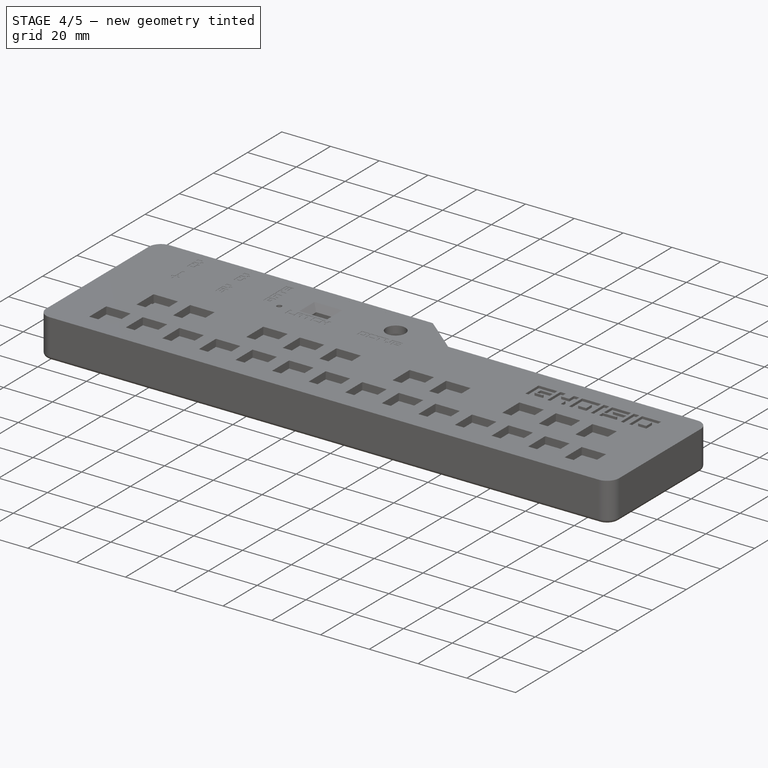
[diagram: stage 4 of 5 — iso view after this stage's code; geometry added in this stage tinted green]
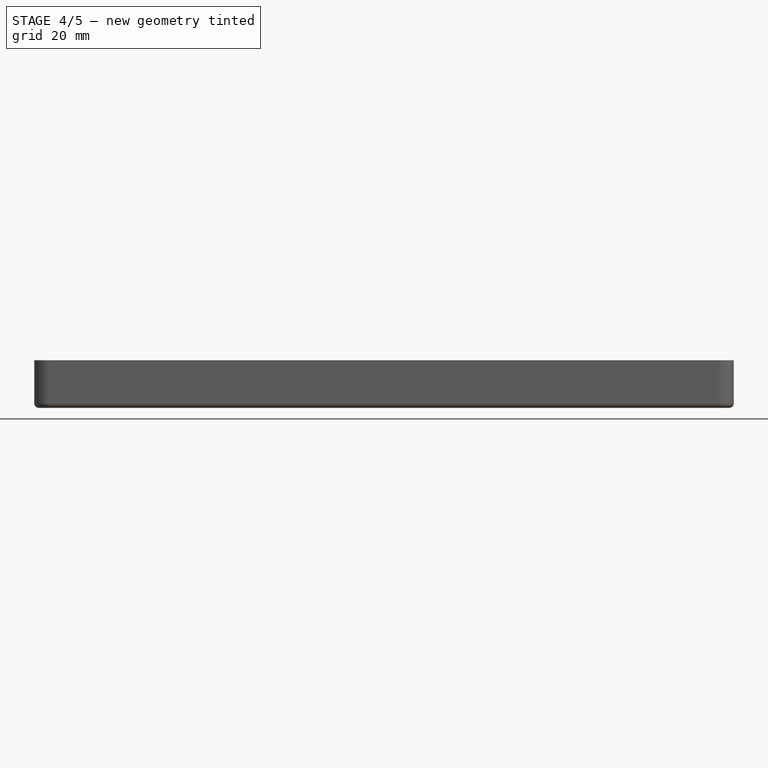
[diagram: stage 4 of 5 — front view after this stage's code; geometry added in this stage tinted green]
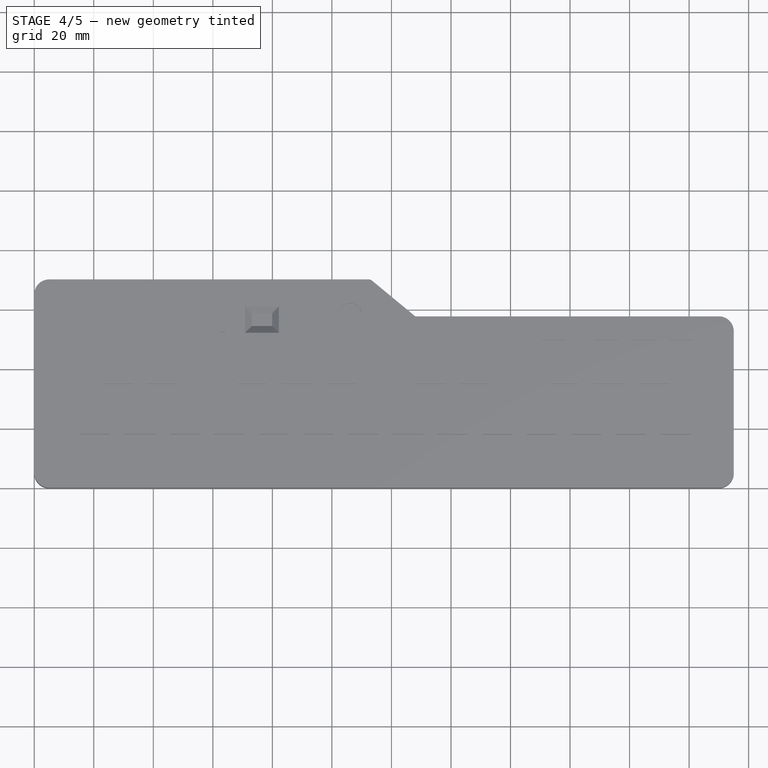
[diagram: stage 4 of 5 — top view after this stage's code; geometry added in this stage tinted green]
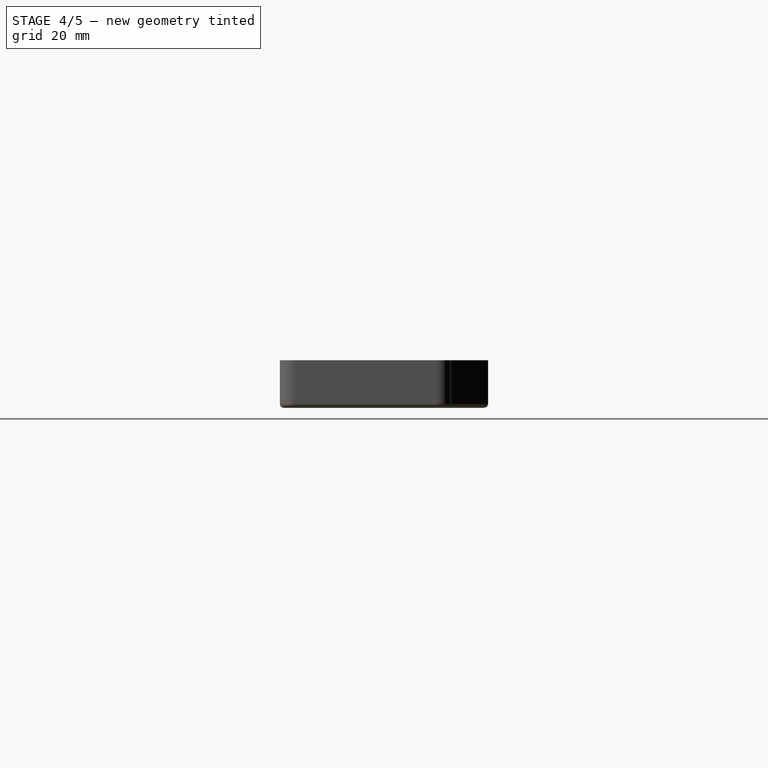
[diagram: stage 4 of 5 — right view after this stage's code; geometry added in this stage tinted green]
FEATURE [Sketcher::SketchObject] Sketch028
  ArcFitTolerance = 1e-06
  AttachmentSupport = -> [Pad020]
  ExternalGeometry = -> [Pad020]
  FullyConstrained = true
  MakeInternals = false
  MapMode = 5
  Placement = pos=(0,1.7e-15,7.8) rot=(0,0,1;0rad)
  sketch-geometry (8):
    g0: LineSegment StartX=231.5 StartY=10.4123 StartZ=0 EndX=231.5 EndY=13.5877 EndZ=0
    g1: LineSegment StartX=231.5 StartY=13.5877 StartZ=0 EndX=228.75 EndY=15.1754 EndZ=0
    g2: LineSegment StartX=228.75 StartY=15.1754 StartZ=0 EndX=226 EndY=13.5877 EndZ=0
    g3: LineSegment StartX=226 StartY=13.5877 StartZ=0 EndX=226 EndY=10.4123 EndZ=0
    g4: LineSegment StartX=226 StartY=10.4123 StartZ=0 EndX=228.75 EndY=8.82457 EndZ=0
    g5: LineSegment StartX=228.75 StartY=8.82457 StartZ=0 EndX=231.5 EndY=10.4123 EndZ=0
    g6: Circle [constr] CenterX=228.75 CenterY=12 CenterZ=0 NormalX=0 NormalY=0 NormalZ=1 AngleXU=0 Radius=3.17543
    g7: LineSegment [constr] StartX=222 StartY=12 StartZ=0 EndX=233 EndY=12 EndZ=0
  constraints (20):
    c: Coincident(g0,g1)
    c: Coincident(g1,g2)
    c: Coincident(g2,g3)
    c: Coincident(g3,g4)
    c: Coincident(g4,g5)
    c: Coincident(g5,g0)
    c: Equal(g0, g1-g5) x5
    c: PointOnObject(g0,g6)
    c: PointOnObject(g1,g6)
    c: PointOnObject(g2,g6)
    c: PointOnObject(g3,g6)
    c: PointOnObject(g4,g6)
    c: PointOnObject(g5,g6)
    c: Vertical(g3)
    c: DistanceX(g2,g0) = 5.5
    c: Symmetric(g-12,g-12,g7)
    c: PointOnObject(g7,g-11)
    c: Horizontal(g7)
    c: PointOnObject(g6,g7)
    c: DistanceX(g-12,g2) = 4
FEATURE [PartDesign::Pocket] Pocket014
  BaseFeature = -> Hole002
  Direction = (0,0,-1)
  Length = 2.3
  Length2 = 5
  Profile = -> Sketch028
  ReferenceAxis = -> Sketch028 [N_Axis]
  Refine = true
  Suppressed = false
  Type = 0
FEATURE [Sketcher::SketchObject] Sketch029
  ArcFitTolerance = 1e-06
  AttachmentSupport = -> [Pocket011]
  ExternalGeometry = -> [Pocket011,Sketch024,Sketch026,Sketch028]
  FullyConstrained = true
  MakeInternals = false
  MapMode = 5
  Placement = pos=(0,0,5.5) rot=(0,0,1;0rad)
  sketch-geometry (3):
    g0: Circle CenterX=228.75 CenterY=12 CenterZ=0 NormalX=0 NormalY=0 NormalZ=1 AngleXU=0 Radius=1.55
    g1: LineSegment [constr] StartX=226 StartY=12 StartZ=0 EndX=231.5 EndY=12 EndZ=0
    g2: LineSegment [constr] StartX=228.75 StartY=15.1754 StartZ=0 EndX=228.75 EndY=8.82457 EndZ=0
  constraints (7):
    c: Diameter(g0) = 3.1
    c: Symmetric(g-15,g-15,g1)
    c: Symmetric(g-16,g-16,g1)
    c: Coincident(g2,g-17)
    c: Coincident(g2,g-18)
    c: PointOnObject(g0,g1)
    c: PointOnObject(g0,g2)
FEATURE [PartDesign::Hole] Hole003
  BaseFeature = -> Pocket014
  CustomThreadClearance = 0
  Depth = 25
  DepthType = 0
  Diameter = 3.1
  DrillForDepth = false
  DrillPoint = 1
  DrillPointAngle = 118
  HoleCutCountersinkAngle = 90
  HoleCutCustomValues = false
  HoleCutDepth = 0
  HoleCutDiameter = 6.1
  HoleCutType = 0
  ModelThread = false
  Profile = -> Sketch029
  Refine = true
  Suppressed = false
  Tapered = false
  TaperedAngle = 90
  ThreadClass = 0
  ThreadDepth = 25
  ThreadDepthType = 0
  ThreadDirection = 0
  ThreadFit = 0
  ThreadSize = 0
  ThreadType = 0
  Threaded = false
  UseCustomThreadClearance = false
FEATURE [PartDesign::Body] Body  label="Unterteil"
  AllowCompound = false
  Group = -> [Sketch,Sketch001,Pad,Pocket,Sketch009,Pocket001,Fillet,Fillet001,Sketch013,Sketch014,Sketch020,Pad017,Sketch021,Pad018,MirroredSketch003,Pad019,MirroredSketch004,Pad020,Sketch022,Pocket011,Sketch023,Hole,Sketch024,Pocket012,Sketch025,Hole001,Sketch026,Pocket013,Sketch027,Hole002,Sketch028,Pocket014,Sketch029,Hole003]
  Origin = -> Origin
  Tip = -> Hole003
FEATURE [Sketcher::SketchObject] Sketch030
  ArcFitTolerance = 1e-06
  AttachmentSupport = -> [XZ_Plane005]
  FullyConstrained = false
  MakeInternals = false
  MapMode = 5
  Placement = pos=(0,0,0) rot=(1,0,0;1.5708rad)
  sketch-geometry (4):
    g0: LineSegment StartX=-1.31313 StartY=31.9887 StartZ=0 EndX=-1.31313 EndY=2 EndZ=0
    g1: LineSegment StartX=-1.31313 StartY=2 StartZ=0 EndX=252.937 EndY=2 EndZ=0
    g2: LineSegment StartX=252.937 StartY=2 StartZ=0 EndX=252.937 EndY=31.9887 EndZ=0
    g3: LineSegment StartX=252.937 StartY=31.9887 StartZ=0 EndX=-1.31313 EndY=31.9887 EndZ=0
  constraints (9):
    c: Coincident(g0,g1)
    c: Coincident(g1,g2)
    c: Coincident(g2,g3)
    c: Coincident(g3,g0)
    c: Vertical(g0)
    c: Vertical(g2)
    c: Horizontal(g1)
    c: Horizontal(g3)
    c: DistanceY(g-1,g1) = 2
FEATURE [Sketcher::SketchObject] MirroredSketch005
  ArcFitTolerance = 1e-06
  FullyConstrained = true
  MakeInternals = false
  Placement = pos=(236,7,0) rot=(1,0,0;1.5708rad)
  sketch-geometry (6):
    g0: LineSegment StartX=-3 StartY=7.8 StartZ=0 EndX=-3 EndY=2 EndZ=0
    g1: LineSegment StartX=-11 StartY=5.3 StartZ=0 EndX=-14 EndY=5.3 EndZ=0
    g2: LineSegment StartX=-14 StartY=5.3 StartZ=0 EndX=-14 EndY=7.8 EndZ=0
    g3: LineSegment StartX=-14 StartY=7.8 StartZ=0 EndX=-3 EndY=7.8 EndZ=0
    g4: LineSegment StartX=-3 StartY=2 StartZ=0 EndX=-11 EndY=2 EndZ=0
    g5: LineSegment StartX=-11 StartY=2 StartZ=0 EndX=-11 EndY=5.3 EndZ=0
  constraints (18):
    c: Coincident(g1,g2)
    c: Coincident(g2,g3)
    c: Coincident(g3,g0)
    c: Vertical(g2)
    c: Horizontal(g1)
    c: Horizontal(g3)
    c: Coincident(g4,g5)
    c: Vertical(g5)
    c: Horizontal(g4)
    c: Coincident(g4,g0)
    c: Coincident(g5,g1)
    c: Vertical(g0)
    c: DistanceX(g3,g3) = 11
    c: DistanceX(g4,g4) = 8
    c: DistanceY(g-1,g0) = 7.8
    c: DistanceY(g2,g2) = 2.5
    c: DistanceY(g5,g5) = 3.3
    c: DistanceX(g0,g-1) = 3
FEATURE [Sketcher::SketchObject] MirroredSketch006
  ArcFitTolerance = 1e-06
  FullyConstrained = true
  MakeInternals = false
  Placement = pos=(236,50.6,0) rot=(1,0,0;1.5708rad)
  sketch-geometry (6):
    g0: LineSegment StartX=-3 StartY=7.8 StartZ=0 EndX=-3 EndY=2 EndZ=0
    g1: LineSegment StartX=-11 StartY=5.3 StartZ=0 EndX=-14 EndY=5.3 EndZ=0
    g2: LineSegment StartX=-14 StartY=5.3 StartZ=0 EndX=-14 EndY=7.8 EndZ=0
    g3: LineSegment StartX=-14 StartY=7.8 StartZ=0 EndX=-3 EndY=7.8 EndZ=0
    g4: LineSegment StartX=-3 StartY=2 StartZ=0 EndX=-11 EndY=2 EndZ=0
    g5: LineSegment StartX=-11 StartY=2 StartZ=0 EndX=-11 EndY=5.3 EndZ=0
  constraints (18):
    c: Coincident(g1,g2)
    c: Coincident(g2,g3)
    c: Coincident(g3,g0)
    c: Vertical(g2)
    c: Horizontal(g1)
    c: Horizontal(g3)
    c: Coincident(g4,g5)
    c: Vertical(g5)
    c: Horizontal(g4)
    c: Coincident(g4,g0)
    c: Coincident(g5,g1)
    c: Vertical(g0)
    c: DistanceX(g0,g-1) = 3
    c: DistanceX(g3,g3) = 11
    c: DistanceX(g4,g4) = 8
    c: DistanceY(g2,g2) = 2.5
    c: DistanceY(g5,g5) = 3.3
    c: DistanceY(g-1,g0) = 7.8
FEATURE [Sketcher::SketchObject] Sketch031
  ArcFitTolerance = 0
  AttachmentOffset = pos=(0,0,16) rot=(0,0,1;0rad)
  AttachmentSupport = -> [XY_Plane005]
  FullyConstrained = true
  MakeInternals = false
  MapMode = 5
  Placement = pos=(0,0,16) rot=(0,0,1;0rad)
  sketch-geometry (10):
    g0: LineSegment StartX=7 StartY=2 StartZ=0 EndX=228 EndY=2 EndZ=0
    g1: LineSegment StartX=233 StartY=7 StartZ=0 EndX=233 EndY=50.6 EndZ=0
    g2: LineSegment StartX=228 StartY=55.6 StartZ=0 EndX=127 EndY=55.6 EndZ=0
    g3: LineSegment StartX=127 StartY=55.6 StartZ=0 EndX=112 EndY=68 EndZ=0
    g4: LineSegment StartX=112 StartY=68 StartZ=0 EndX=7 EndY=68 EndZ=0
    g5: LineSegment StartX=2 StartY=63 StartZ=0 EndX=2 EndY=7 EndZ=0
    g6: ArcOfCircle CenterX=228 CenterY=50.6 CenterZ=0 NormalX=0 NormalY=0 NormalZ=1 AngleXU=0 Radius=5 StartAngle=0 EndAngle=1.5708
    g7: ArcOfCircle CenterX=228 CenterY=7 CenterZ=0 NormalX=0 NormalY=0 NormalZ=1 AngleXU=0 Radius=5 StartAngle=4.71239 EndAngle=6.28319
    g8: ArcOfCircle CenterX=7 CenterY=7 CenterZ=0 NormalX=0 NormalY=0 NormalZ=1 AngleXU=0 Radius=5 StartAngle=3.14159 EndAngle=4.71239
    g9: ArcOfCircle CenterX=7 CenterY=63 CenterZ=0 NormalX=0 NormalY=0 NormalZ=1 AngleXU=0 Radius=5 StartAngle=1.5708 EndAngle=3.14159
  constraints (26):
    c: Horizontal(g0)
    c: Vertical(g1)
    c: Horizontal(g2)
    c: Coincident(g2,g3)
    c: Coincident(g3,g4)
    c: Horizontal(g4)
    c: Vertical(g5)
    c: Diameter(g6) = 10
    c: Tangent(g2,g6) = -1.5708
    c: Tangent(g1,g6) = -1.5708
    c: Diameter(g7) = 10
    c: Diameter(g8) = 10
    c: Diameter(g9) = 10
    c: Tangent(g8,g0) = -1.5708
    c: Tangent(g8,g5) = -1.5708
    c: Tangent(g0,g7) = -1.5708
    c: Tangent(g1,g7) = -1.5708
    c: DistanceX(g0,g0) = 221
    c: DistanceY(g1,g1) = 43.6
    c: Tangent(g5,g9) = -1.5708
    c: Tangent(g4,g9) = -1.5708
    c: DistanceX(g4,g4) = 105
    c: DistanceY(g5,g5) = 56
    c: DistanceX(g2,g2) = 101
    c: DistanceX(g-1,g5) = 2
    c: DistanceY(g-1,g0) = 2
FEATURE [Sketcher::SketchObject] Sketch032
  ArcFitTolerance = 0
  AttachmentSupport = -> [XY_Plane005]
  FullyConstrained = true
  MakeInternals = false
  MapMode = 5
  sketch-geometry (10):
    g0: LineSegment StartX=5 StartY=0 StartZ=0 EndX=230 EndY=0 EndZ=0
    g1: LineSegment StartX=235 StartY=5 StartZ=0 EndX=235 EndY=52.6 EndZ=0
    g2: LineSegment StartX=230 StartY=57.6 StartZ=0 EndX=128 EndY=57.6 EndZ=0
    g3: LineSegment StartX=128 StartY=57.6 StartZ=0 EndX=113 EndY=70 EndZ=0
    g4: LineSegment StartX=113 StartY=70 StartZ=0 EndX=5 EndY=70 EndZ=0
    g5: LineSegment StartX=0 StartY=65 StartZ=0 EndX=0 EndY=5 EndZ=0
    g6: ArcOfCircle CenterX=230 CenterY=52.6 CenterZ=0 NormalX=0 NormalY=0 NormalZ=1 AngleXU=0 Radius=5 StartAngle=3e-16 EndAngle=1.5708
    g7: ArcOfCircle CenterX=230 CenterY=5 CenterZ=0 NormalX=0 NormalY=0 NormalZ=1 AngleXU=0 Radius=5 StartAngle=4.71239 EndAngle=6.28319
    g8: ArcOfCircle CenterX=5 CenterY=5 CenterZ=0 NormalX=0 NormalY=0 NormalZ=1 AngleXU=0 Radius=5 StartAngle=3.14159 EndAngle=4.71239
    g9: ArcOfCircle CenterX=5 CenterY=65 CenterZ=0 NormalX=0 NormalY=0 NormalZ=1 AngleXU=0 Radius=5 StartAngle=1.5708 EndAngle=3.14159
  constraints (26):
    c: Horizontal(g0)
    c: Vertical(g1)
    c: Horizontal(g2)
    c: Coincident(g2,g3)
    c: Coincident(g3,g4)
    c: Horizontal(g4)
    c: Vertical(g5)
    c: Diameter(g6) = 10
    c: Tangent(g2,g6) = -1.5708
    c: Tangent(g1,g6) = -1.5708
    c: Diameter(g7) = 10
    c: Diameter(g8) = 10
    c: Diameter(g9) = 10
    c: Tangent(g8,g0) = -1.5708
    c: Tangent(g8,g5) = -1.5708
    c: Tangent(g0,g7) = -1.5708
    c: Tangent(g1,g7) = -1.5708
    c: DistanceX(g0,g0) = 225
    c: DistanceY(g1,g1) = 47.6
    c: Tangent(g5,g9) = -1.5708
    c: Tangent(g4,g9) = -1.5708
    c: DistanceX(g4,g4) = 108
    c: DistanceY(g5,g5) = 60
    c: DistanceX(g2,g2) = 102
    c: PointOnObject(g0,g-1)
    c: PointOnObject(g5,g-2)
FEATURE [PartDesign::Pad] Pad021
  Direction = (0,0,1)
  Length = 16
  Length2 = 10
  Profile = -> Sketch032
  ReferenceAxis = -> Sketch032 [N_Axis]
  Refine = true
  Suppressed = false
  Type = 0
FEATURE [PartDesign::Pocket] Pocket015
  BaseFeature = -> Pad021
  Direction = (0,0,-1)
  Length = 14
  Length2 = 5
  Profile = -> Sketch031
  ReferenceAxis = -> Sketch031 [N_Axis]
  Refine = true
  Suppressed = false
  Type = 0
FEATURE [Sketcher::SketchObject] Sketch033
  ArcFitTolerance = 0
  FullyConstrained = true
  MakeInternals = false
  MapMode = 5
  Placement = pos=(0,67,-1) rot=(1,0,0;1.5708rad)
  sketch-geometry (4):
    g0: Circle CenterX=22.5 CenterY=8.5 CenterZ=0 NormalX=0 NormalY=0 NormalZ=1 AngleXU=0 Radius=3.5
    g1: Circle CenterX=40 CenterY=8.5 CenterZ=0 NormalX=0 NormalY=0 NormalZ=1 AngleXU=0 Radius=3.5
    g2: Circle CenterX=57.5 CenterY=8.5 CenterZ=0 NormalX=0 NormalY=0 NormalZ=1 AngleXU=0 Radius=3.5
    g3: LineSegment [constr] StartX=22.5 StartY=8.5 StartZ=0 EndX=57.5 EndY=8.5 EndZ=0
  constraints (11):
    c: Equal(g0,g1)
    c: Equal(g1,g2)
    c: Diameter(g0) = 7
    c: Horizontal(g3)
    c: Coincident(g3,g0)
    c: Coincident(g2,g3)
    c: PointOnObject(g1,g3)
    c: DistanceX(g0,g1) = 17.5
    c: DistanceX(g1,g2) = 17.5
    c: DistanceX(g-1,g0) = 22.5
    c: DistanceY(g-1,g0) = 8.5
FEATURE [PartDesign::Pocket] Pocket016
  BaseFeature = -> Pocket015
  Direction = (0,1,-2e-16)
  Length = 5
  Length2 = 5
  Profile = -> Sketch033
  ReferenceAxis = -> Sketch033 [N_Axis]
  Refine = true
  Suppressed = false
  Type = 0
FEATURE [PartDesign::Fillet] Fillet002
  Base = -> Pocket016 [Face4]
  BaseFeature = -> Pocket016
  Radius = 1.5
  Refine = true
  SupportTransform = false
  Suppressed = false
  UseAllEdges = false
FEATURE [PartDesign::Fillet] Fillet003
  Base = -> Fillet002 [Edge50]
  BaseFeature = -> Fillet002
  Radius = 1.5
  Refine = true
  SupportTransform = false
  Suppressed = false
  UseAllEdges = false
FEATURE [Sketcher::SketchObject] Sketch034
  ArcFitTolerance = 0
  AttachmentSupport = -> [XY_Plane005]
  FullyConstrained = true
  MakeInternals = false
  MapMode = 5
  sketch-geometry (4):
    g0: ArcOfCircle CenterX=15 CenterY=10 CenterZ=0 NormalX=0 NormalY=0 NormalZ=1 AngleXU=0 Radius=2.5 StartAngle=3.14159 EndAngle=6.28319
    g1: ArcOfCircle CenterX=15 CenterY=60 CenterZ=0 NormalX=0 NormalY=0 NormalZ=1 AngleXU=0 Radius=2.5 StartAngle=4e-16 EndAngle=3.14159
    g2: LineSegment StartX=17.5 StartY=10 StartZ=0 EndX=17.5 EndY=60 EndZ=0
    g3: LineSegment StartX=12.5 StartY=60 StartZ=0 EndX=12.5 EndY=10 EndZ=0
  constraints (10):
    c: Tangent(g0,g2) = -1.5708
    c: Tangent(g2,g1) = -1.5708
    c: Tangent(g1,g3) = -1.5708
    c: Tangent(g3,g0) = -1.5708
    c: Equal(g0,g1)
    c: Vertical(g2)
    c: DistanceX(g0,g0) = 5
    c: DistanceY(g-1,g0) = 10
    c: DistanceX(g-1,g0) = 15
    c: DistanceY(g2,g2) = 50
FEATURE [Sketcher::SketchObject] Sketch035
  ArcFitTolerance = 0
  FullyConstrained = true
  MakeInternals = false
  MapMode = 5
  Placement = pos=(0,0,0) rot=(1,0,0;3.14159rad)
  sketch-geometry (4):
    g0: ArcOfCircle CenterX=220 CenterY=-10 CenterZ=0 NormalX=0 NormalY=0 NormalZ=1 AngleXU=0 Radius=2.5 StartAngle=0 EndAngle=3.14159
    g1: ArcOfCircle CenterX=220 CenterY=-47.6 CenterZ=0 NormalX=0 NormalY=0 NormalZ=1 AngleXU=0 Radius=2.5 StartAngle=3.14159 EndAngle=6.28319
    g2: LineSegment StartX=217.5 StartY=-10 StartZ=0 EndX=217.5 EndY=-47.6 EndZ=0
    g3: LineSegment StartX=222.5 StartY=-47.6 StartZ=0 EndX=222.5 EndY=-10 EndZ=0
  constraints (10):
    c: Tangent(g0,g2) = -1.5708
    c: Tangent(g2,g1) = -1.5708
    c: Tangent(g1,g3) = -1.5708
    c: Tangent(g3,g0) = -1.5708
    c: Equal(g0,g1)
    c: Vertical(g2)
    c: DistanceX(g0,g0) = 5
    c: DistanceX(g-1,g0) = 220
    c: DistanceY(g0,g-1) = 10
    c: DistanceY(g1,g-1) = 47.6
FEATURE [Sketcher::SketchObject] Sketch036
  ArcFitTolerance = 1e-06
  AttachmentOffset = pos=(0,0,-58) rot=(0,0,1;0rad)
  AttachmentSupport = -> [XZ_Plane005]
  FullyConstrained = true
  MakeInternals = false
  MapMode = 5
  Placement = pos=(0,58,-1.29e-14) rot=(1,0,0;1.5708rad)
  sketch-geometry (6):
    g0: LineSegment StartX=2 StartY=7.8 StartZ=0 EndX=2 EndY=2 EndZ=0
    g1: LineSegment StartX=10 StartY=5.3 StartZ=0 EndX=13 EndY=5.3 EndZ=0
    g2: LineSegment StartX=13 StartY=5.3 StartZ=0 EndX=13 EndY=7.8 EndZ=0
    g3: LineSegment StartX=13 StartY=7.8 StartZ=0 EndX=2 EndY=7.8 EndZ=0
    g4: LineSegment StartX=2 StartY=2 StartZ=0 EndX=10 EndY=2 EndZ=0
    g5: LineSegment StartX=10 StartY=2 StartZ=0 EndX=10 EndY=5.3 EndZ=0
  constraints (18):
    c: Coincident(g1,g2)
    c: Coincident(g2,g3)
    c: Coincident(g3,g0)
    c: Vertical(g2)
    c: Horizontal(g1)
    c: Horizontal(g3)
    c: Coincident(g4,g5)
    c: Vertical(g5)
    c: Horizontal(g4)
    c: Coincident(g4,g0)
    c: DistanceY(g-1,g0) = 7.8
    c: DistanceX(g-1,g0) = 2
    c: DistanceX(g3,g3) = 11
    c: DistanceX(g4,g4) = 8
    c: DistanceY(g2,g2) = 2.5
    c: Coincident(g5,g1)
    c: Vertical(g0)
    c: DistanceY(g5,g5) = 3.3
FEATURE [PartDesign::Pad] Pad022
  BaseFeature = -> Fillet003
  Direction = (0,-1,2e-16)
  Length = 10
  Length2 = 10
  Midplane = true
  Profile = -> Sketch036
  ReferenceAxis = -> Sketch036 [N_Axis]
  Refine = true
  Suppressed = false
  Type = 0
FEATURE [Sketcher::SketchObject] Sketch037
  ArcFitTolerance = 1e-06
  AttachmentOffset = pos=(0,0,-7) rot=(0,0,1;0rad)
  AttachmentSupport = -> [XZ_Plane005]
  FullyConstrained = true
  MakeInternals = false
  MapMode = 5
  Placement = pos=(0,7,-1.6e-15) rot=(1,0,0;1.5708rad)
  sketch-geometry (6):
    g0: LineSegment StartX=2 StartY=7.8 StartZ=0 EndX=2 EndY=2 EndZ=0
    g1: LineSegment StartX=10 StartY=5.3 StartZ=0 EndX=13 EndY=5.3 EndZ=0
    g2: LineSegment StartX=13 StartY=5.3 StartZ=0 EndX=13 EndY=7.8 EndZ=0
    g3: LineSegment StartX=13 StartY=7.8 StartZ=0 EndX=2 EndY=7.8 EndZ=0
    g4: LineSegment StartX=2 StartY=2 StartZ=0 EndX=10 EndY=2 EndZ=0
    g5: LineSegment StartX=10 StartY=2 StartZ=0 EndX=10 EndY=5.3 EndZ=0
  constraints (18):
    c: Coincident(g1,g2)
    c: Coincident(g2,g3)
    c: Coincident(g3,g0)
    c: Vertical(g2)
    c: Horizontal(g1)
    c: Horizontal(g3)
    c: Coincident(g4,g5)
    c: Vertical(g5)
    c: Horizontal(g4)
    c: Coincident(g4,g0)
    c: DistanceY(g-1,g0) = 7.8
    c: DistanceX(g-1,g0) = 2
    c: DistanceX(g3,g3) = 11
    c: DistanceX(g4,g4) = 8
    c: DistanceY(g2,g2) = 2.5
    c: Coincident(g5,g1)
    c: Vertical(g0)
    c: DistanceY(g5,g5) = 3.3
FEATURE [PartDesign::Pad] Pad023
  BaseFeature = -> Pad022
  Direction = (0,-1,2e-16)
  Length = 10
  Length2 = 10
  Profile = -> Sketch037
  ReferenceAxis = -> Sketch037 [N_Axis]
  Refine = true
  Reversed = true
  Suppressed = false
  Type = 0
FEATURE [PartDesign::Pad] Pad024
  BaseFeature = -> Pad023
  Direction = (0,-1,-3e-16)
  Length = 10
  Length2 = 10
  Profile = -> MirroredSketch005
  ReferenceAxis = -> MirroredSketch005 [N_Axis]
  Refine = true
  Reversed = true
  Suppressed = false
  Type = 0
FEATURE [PartDesign::Pad] Pad025
  BaseFeature = -> Pad024
  Direction = (0,-1,-3e-16)
  Length = 10
  Length2 = 10
  Profile = -> MirroredSketch006
  ReferenceAxis = -> MirroredSketch006 [N_Axis]
  Refine = true
  Suppressed = false
  Type = 0
FEATURE [Sketcher::SketchObject] Sketch038
  ArcFitTolerance = 1e-06
  AttachmentSupport = -> [Pad025]
  ExternalGeometry = -> [Pad025]
  FullyConstrained = true
  MakeInternals = false
  MapMode = 5
  Placement = pos=(0,1.7e-15,7.8) rot=(0,0,1;0rad)
  sketch-geometry (8):
    g0: LineSegment StartX=9 StartY=10.4267 StartZ=0 EndX=9 EndY=13.5733 EndZ=0
    g1: LineSegment StartX=9 StartY=13.5733 StartZ=0 EndX=6.275 EndY=15.1466 EndZ=0
    g2: LineSegment StartX=6.275 StartY=15.1466 StartZ=0 EndX=3.55 EndY=13.5733 EndZ=0
    g3: LineSegment StartX=3.55 StartY=13.5733 StartZ=0 EndX=3.55 EndY=10.4267 EndZ=0
    g4: LineSegment StartX=3.55 StartY=10.4267 StartZ=0 EndX=6.275 EndY=8.85344 EndZ=0
    g5: LineSegment StartX=6.275 StartY=8.85344 StartZ=0 EndX=9 EndY=10.4267 EndZ=0
    g6: Circle [constr] CenterX=6.275 CenterY=12 CenterZ=0 NormalX=0 NormalY=0 NormalZ=1 AngleXU=0 Radius=3.14656
    g7: LineSegment [constr] StartX=2 StartY=12 StartZ=0 EndX=13 EndY=12 EndZ=0
  constraints (20):
    c: Coincident(g0,g1)
    c: Coincident(g1,g2)
    c: Coincident(g2,g3)
    c: Coincident(g3,g4)
    c: Coincident(g4,g5)
    c: Coincident(g5,g0)
    c: Equal(g0, g1-g5) x5
    c: PointOnObject(g0,g6)
    c: PointOnObject(g1,g6)
    c: PointOnObject(g2,g6)
    c: PointOnObject(g3,g6)
    c: PointOnObject(g4,g6)
    c: PointOnObject(g5,g6)
    c: Vertical(g3)
    c: DistanceX(g2,g0) = 5.45
    c: PointOnObject(g7,g-6)
    c: Symmetric(g-3,g-3,g7)
    c: Symmetric(g-5,g-4,g7)
    c: PointOnObject(g6,g7)
    c: DistanceX(g0,g-4) = 4
FEATURE [PartDesign::Pocket] Pocket017
  BaseFeature = -> Pad025
  Direction = (0,0,-1)
  Length = 2.3
  Length2 = 5
  Profile = -> Sketch038
  ReferenceAxis = -> Sketch038 [N_Axis]
  Refine = true
  Suppressed = false
  Type = 0
FEATURE [Sketcher::SketchObject] Sketch039
  ArcFitTolerance = 1e-06
  AttachmentSupport = -> [Pocket017]
  ExternalGeometry = -> [Pocket017]
  FullyConstrained = true
  MakeInternals = false
  MapMode = 5
  Placement = pos=(0,0,5.5) rot=(0,0,1;0rad)
  sketch-geometry (3):
    g0: LineSegment [constr] StartX=3.55 StartY=12 StartZ=0 EndX=9 EndY=12 EndZ=0
    g1: LineSegment [constr] StartX=6.275 StartY=15.1466 StartZ=0 EndX=6.275 EndY=8.85344 EndZ=0
    g2: Circle CenterX=6.275 CenterY=12 CenterZ=0 NormalX=0 NormalY=0 NormalZ=1 AngleXU=0 Radius=1.55
  constraints (6):
    c: Symmetric(g-3,g-3,g0)
    c: Symmetric(g-4,g-4,g0)
    c: Coincident(g1,g-5)
    c: Coincident(g1,g-6)
    c: Symmetric(g1,g1,g2)
    c: Diameter(g2) = 3.1
FEATURE [PartDesign::Hole] Hole004
  BaseFeature = -> Pocket017
  CustomThreadClearance = 0
  Depth = 25
  DepthType = 0
  Diameter = 3.1
  DrillForDepth = false
  DrillPoint = 1
  DrillPointAngle = 118
  HoleCutCountersinkAngle = 90
  HoleCutCustomValues = false
  HoleCutDepth = 0
  HoleCutDiameter = 6.1
  HoleCutType = 0
  ModelThread = false
  Profile = -> Sketch039
  Refine = true
  Suppressed = false
  Tapered = false
  TaperedAngle = 90
  ThreadClass = 0
  ThreadDepth = 25
  ThreadDepthType = 0
  ThreadDirection = 0
  ThreadFit = 0
  ThreadSize = 0
  ThreadType = 0
  Threaded = false
  UseCustomThreadClearance = false
FEATURE [PartDesign::Body] Body006  label="Unterteil_001"
  AllowCompound = false
  Group = -> [Sketch048,Sketch049,Pad027,Pocket031,Sketch050,Pocket032,Fillet004,Fillet005,Sketch051,Sketch052,Sketch053,Pad028,Sketch054,Pad029,MirroredSketch007,Pad030,MirroredSketch008,Pad031,Sketch055,Pocket033,Sketch056,Hole008,Sketch057,Pocket034,Sketch058,Hole009,Sketch059,Pocket035,Sketch060,Hole010,Sketch061,Pocket036,Sketch062,Hole011,Sketch047,Pocket037,Sketch063,Pad032]
  Origin = -> Origin006
  Tip = -> Pad032
FEATURE [Part::Cut] Cut  label="Mittelteil"
  Base = -> Body
  Refine = true
  Tool = -> Body006
FEATURE [PartDesign::Body] Body001  label="Blende"
  AllowCompound = false
  Group = -> [Sketch002,Pad001,Sketch010,ShapeString,ShapeString001,ShapeString002,ShapeString003,ShapeString004,ShapeString005,Pocket047,Pocket048,Pocket049,Pocket050,Pocket051,Pocket052,Pocket053,Chamfer001]
  Origin = -> Origin001
  Tip = -> Chamfer001
FEATURE [Part::MultiFuse] Fusion  label="Oberteil"
  Refine = true
  Shapes = -> [Cut,Body001]
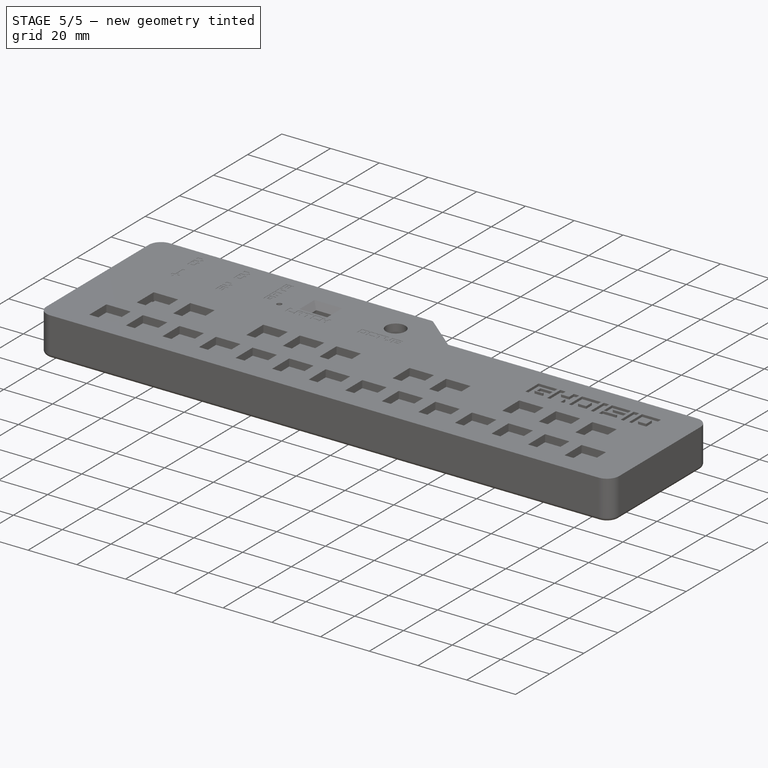
[diagram: stage 5 of 5 — iso view after this stage's code; geometry added in this stage tinted green]
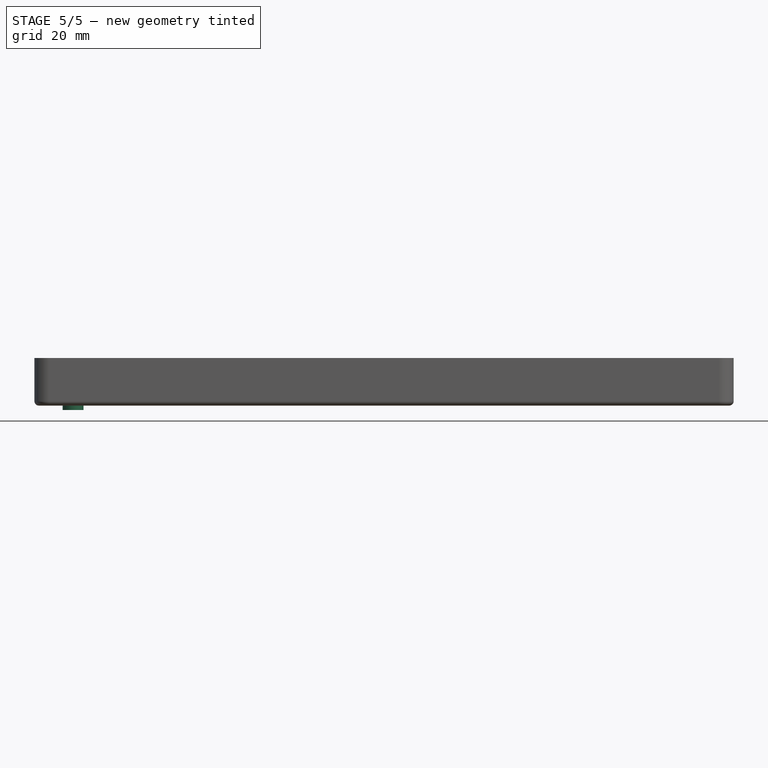
[diagram: stage 5 of 5 — front view after this stage's code; geometry added in this stage tinted green]
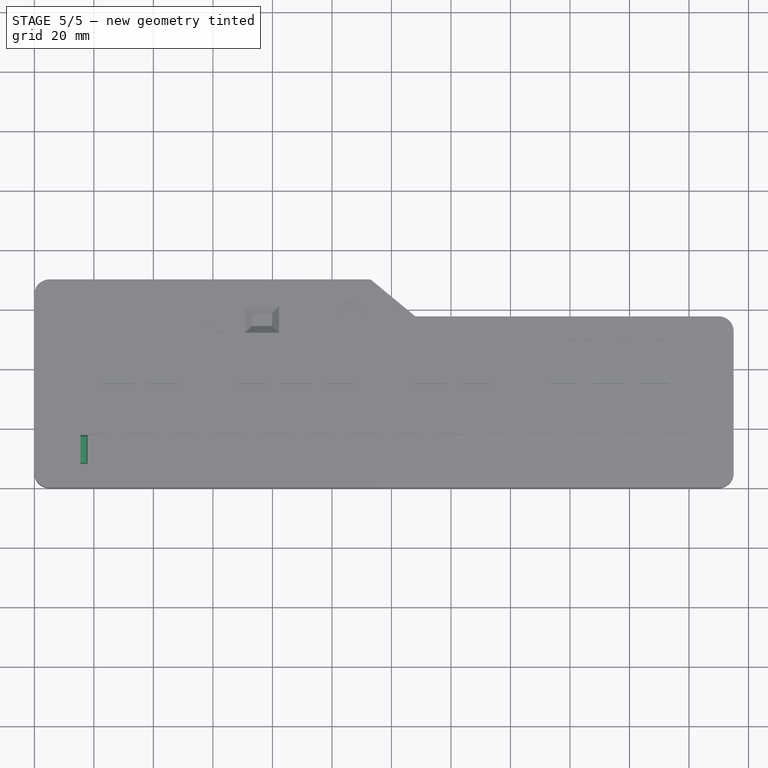
[diagram: stage 5 of 5 — top view after this stage's code; geometry added in this stage tinted green]
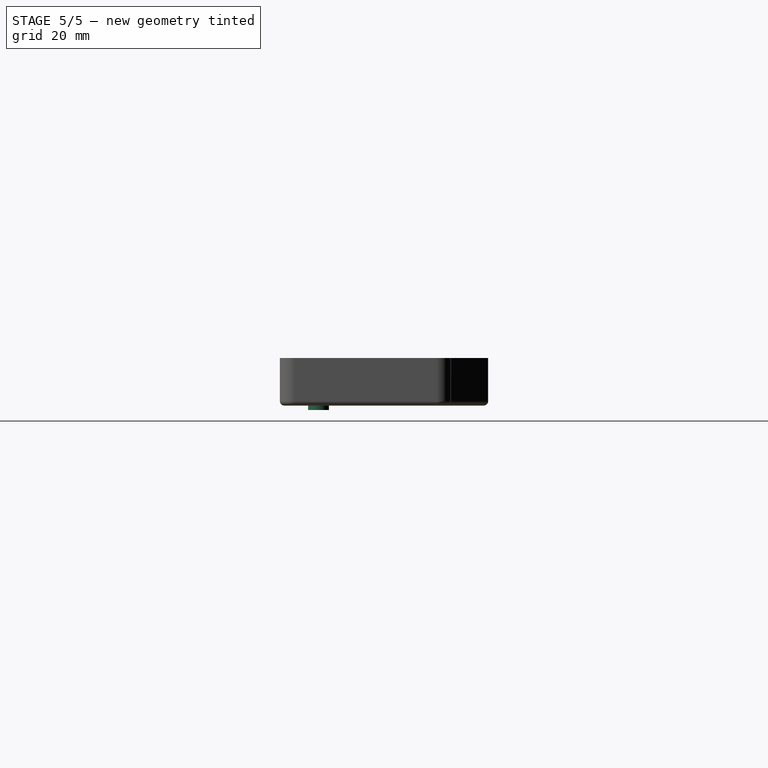
[diagram: stage 5 of 5 — right view after this stage's code; geometry added in this stage tinted green]
FEATURE [Sketcher::SketchObject] Sketch010
  ArcFitTolerance = 0
  AttachmentOffset = pos=(0,0,13) rot=(0,0,1;0rad)
  AttachmentSupport = -> [XY_Plane001]
  FullyConstrained = true
  MakeInternals = false
  MapMode = 5
  Placement = pos=(0,0,13) rot=(0,0,1;0rad)
  sketch-geometry (5):
    g0: LineSegment StartX=80.755 StartY=65.45 StartZ=0 EndX=80.755 EndY=59.95 EndZ=0
    g1: LineSegment StartX=80.755 StartY=59.95 StartZ=0 EndX=88.005 EndY=59.95 EndZ=0
    g2: LineSegment StartX=88.005 StartY=59.95 StartZ=0 EndX=88.005 EndY=65.45 EndZ=0
    g3: LineSegment StartX=88.005 StartY=65.45 StartZ=0 EndX=80.755 EndY=65.45 EndZ=0
    g4: GeomPoint [constr] X=84.38 Y=62.7 Z=0
  constraints (13):
    c: Coincident(g0,g1)
    c: Coincident(g1,g2)
    c: Coincident(g2,g3)
    c: Coincident(g3,g0)
    c: Horizontal(g1)
    c: Horizontal(g3)
    c: Vertical(g0)
    c: Vertical(g2)
    c: Symmetric(g1,g0,g4)
    c: DistanceY(g2,g2) = 5.5
    c: DistanceX(g1,g1) = 7.25
    c: DistanceY(g-1,g4) = 62.7
    c: DistanceX(g4) = 84.38
FEATURE [Part::Part2DObjectPython] ShapeString  label="GHOISIO"  # Draft 2D object (typed FeaturePython)
  FontFile = <userpath>/Downloads/block/block_merged.ttf
  Fuse = false
  Justification = 6
  JustificationReference = 0
  KeepLeftMargin = true
  MakeFace = true
  ObliqueAngle = 0
  Placement = pos=(170,42,17) rot=(0,0,1;0rad)
  ScaleToSize = false
  Size = 3
  String = GHOISIO
  Tracking = 0
FEATURE [Part::Part2DObjectPython] ShapeString001  label="LATCH"  # Draft 2D object (typed FeaturePython)
  FontFile = <userpath>/Downloads/block/block_merged.ttf
  Fuse = false
  Justification = 6
  JustificationReference = 0
  KeepLeftMargin = true
  MakeFace = true
  ObliqueAngle = 0
  Placement = pos=(67.5,48,16) rot=(-0.541784,-0.840509,0.003755;0rad)
  ScaleToSize = false
  Size = 1.2
  String = LATCH
  Tracking = 0
FEATURE [Part::Part2DObjectPython] ShapeString002  label="OCTVE"  # Draft 2D object (typed FeaturePython)
  FontFile = <userpath>/Downloads/block/block_merged.ttf
  Fuse = false
  Justification = 6
  JustificationReference = 0
  KeepLeftMargin = true
  MakeFace = true
  ObliqueAngle = 0
  Placement = pos=(97,48,16) rot=(0,0,1;0rad)
  ScaleToSize = false
  Size = 1.2
  String = OCTVE
  Tracking = 0
FEATURE [Part::Part2DObjectPython] ShapeString003  label="GATE"  # Draft 2D object (typed FeaturePython)
  FontFile = <userpath>/Downloads/block/block_merged.ttf
  Fuse = false
  Justification = 6
  JustificationReference = 0
  KeepLeftMargin = true
  MakeFace = true
  ObliqueAngle = 0
  Placement = pos=(59,52,16) rot=(0,0,1;1.5708rad)
  ScaleToSize = false
  Size = 1.2
  String = GATE
  Tracking = 0
FEATURE [Part::Part2DObjectPython] ShapeString004  label="5V CV"  # Draft 2D object (typed FeaturePython)
  FontFile = <userpath>/Downloads/block/block_merged.ttf
  Fuse = false
  Justification = 6
  JustificationReference = 0
  KeepLeftMargin = true
  MakeFace = true
  ObliqueAngle = 0
  Placement = pos=(41.5,49,16) rot=(0,0,1;1.5708rad)
  ScaleToSize = false
  Size = 1.2
  String = 5V CV
  Tracking = 0
FEATURE [Part::Part2DObjectPython] ShapeString005  label="CV +-"  # Draft 2D object (typed FeaturePython)
  FontFile = <userpath>/Downloads/block/block_merged.ttf
  Fuse = false
  Justification = 6
  JustificationReference = 0
  KeepLeftMargin = true
  MakeFace = true
  ObliqueAngle = 0
  Placement = pos=(22.5,49,16) rot=(0,0,1;1.5708rad)
  ScaleToSize = false
  Size = 1.2
  String = +- CV
  Tracking = 0
FEATURE [Sketcher::SketchObject] Sketch013
  ArcFitTolerance = 0
  AttachmentSupport = -> [XY_Plane]
  FullyConstrained = true
  MakeInternals = false
  MapMode = 5
  sketch-geometry (4):
    g0: ArcOfCircle CenterX=10 CenterY=10 CenterZ=0 NormalX=0 NormalY=0 NormalZ=1 AngleXU=0 Radius=2.5 StartAngle=3.14159 EndAngle=6.28319
    g1: ArcOfCircle CenterX=10 CenterY=60 CenterZ=0 NormalX=0 NormalY=0 NormalZ=1 AngleXU=0 Radius=2.5 StartAngle=0 EndAngle=3.14159
    g2: LineSegment StartX=12.5 StartY=10 StartZ=0 EndX=12.5 EndY=60 EndZ=0
    g3: LineSegment StartX=7.5 StartY=60 StartZ=0 EndX=7.5 EndY=10 EndZ=0
  constraints (10):
    c: Tangent(g0,g2) = -1.5708
    c: Tangent(g2,g1) = -1.5708
    c: Tangent(g1,g3) = -1.5708
    c: Tangent(g3,g0) = -1.5708
    c: Equal(g0,g1)
    c: Vertical(g2)
    c: DistanceX(g0,g0) = 5
    c: DistanceY(g-1,g0) = 10
    c: DistanceX(g-1,g0) = 10
    c: DistanceY(g2,g2) = 50
FEATURE [Sketcher::SketchObject] Sketch014
  ArcFitTolerance = 0
  FullyConstrained = true
  MakeInternals = false
  MapMode = 5
  Placement = pos=(0,0,0) rot=(1,0,0;3.14159rad)
  sketch-geometry (4):
    g0: ArcOfCircle CenterX=210 CenterY=-10 CenterZ=0 NormalX=0 NormalY=0 NormalZ=1 AngleXU=0 Radius=2.5 StartAngle=1e-16 EndAngle=3.14159
    g1: ArcOfCircle CenterX=210 CenterY=-47.6 CenterZ=0 NormalX=0 NormalY=0 NormalZ=1 AngleXU=0 Radius=2.5 StartAngle=3.14159 EndAngle=6.28319
    g2: LineSegment StartX=207.5 StartY=-10 StartZ=0 EndX=207.5 EndY=-47.6 EndZ=0
    g3: LineSegment StartX=212.5 StartY=-47.6 StartZ=0 EndX=212.5 EndY=-10 EndZ=0
  constraints (10):
    c: Tangent(g0,g2) = -1.5708
    c: Tangent(g2,g1) = -1.5708
    c: Tangent(g1,g3) = -1.5708
    c: Tangent(g3,g0) = -1.5708
    c: Equal(g0,g1)
    c: Vertical(g2)
    c: DistanceX(g0,g0) = 5
    c: DistanceX(g-1,g0) = 210
    c: DistanceY(g0,g-1) = 10
    c: DistanceY(g1,g-1) = 47.6
FEATURE [Sketcher::SketchObject] Sketch015
  ArcFitTolerance = 0
  AttachmentSupport = -> [XY_Plane003]
  FullyConstrained = true
  MakeInternals = false
  MapMode = 5
  sketch-geometry (5):
    g0: LineSegment StartX=6 StartY=20 StartZ=0 EndX=6 EndY=6 EndZ=0
    g1: LineSegment StartX=6 StartY=6 StartZ=0 EndX=20 EndY=6 EndZ=0
    g2: LineSegment StartX=20 StartY=6 StartZ=0 EndX=20 EndY=20 EndZ=0
    g3: LineSegment StartX=20 StartY=20 StartZ=0 EndX=6 EndY=20 EndZ=0
    g4: GeomPoint [constr] X=13 Y=13 Z=0
  constraints (13):
    c: Coincident(g0,g1)
    c: Coincident(g1,g2)
    c: Coincident(g2,g3)
    c: Coincident(g3,g0)
    c: Horizontal(g1)
    c: Horizontal(g3)
    c: Vertical(g0)
    c: Vertical(g2)
    c: Symmetric(g1,g0,g4)
    c: Equal(g3,g2)
    c: DistanceX(g3,g3) = 14
    c: DistanceX(g-1,g4) = 13
    c: DistanceY(g-1,g4) = 13
FEATURE [PartDesign::Pad] Pad015
  Direction = (0,0,1)
  Length = 1
  Length2 = 10
  Profile = -> Sketch015
  ReferenceAxis = -> Sketch015 [N_Axis]
  Refine = true
  Suppressed = false
  Type = 0
FEATURE [Sketcher::SketchObject] Sketch016
  ArcFitTolerance = 0
  AttachmentSupport = -> [Pad015]
  FullyConstrained = true
  MakeInternals = false
  MapMode = 5
  Placement = pos=(0,0,1) rot=(0,0,1;0rad)
  sketch-geometry (5):
    g0: LineSegment StartX=8.05 StartY=17.95 StartZ=0 EndX=8.05 EndY=8.05 EndZ=0
    g1: LineSegment StartX=8.05 StartY=8.05 StartZ=0 EndX=17.95 EndY=8.05 EndZ=0
    g2: LineSegment StartX=17.95 StartY=8.05 StartZ=0 EndX=17.95 EndY=17.95 EndZ=0
    g3: LineSegment StartX=17.95 StartY=17.95 StartZ=0 EndX=8.05 EndY=17.95 EndZ=0
    g4: GeomPoint [constr] X=13 Y=13 Z=0
  constraints (13):
    c: Coincident(g0,g1)
    c: Coincident(g1,g2)
    c: Coincident(g2,g3)
    c: Coincident(g3,g0)
    c: Horizontal(g1)
    c: Horizontal(g3)
    c: Vertical(g0)
    c: Vertical(g2)
    c: Symmetric(g1,g0,g4)
    c: Equal(g3,g2)
    c: DistanceX(g3,g3) = 9.9
    c: DistanceX(g-1,g4) = 13
    c: DistanceY(g-1,g4) = 13
FEATURE [Sketcher::SketchObject] Sketch017
  ArcFitTolerance = 0
  AttachmentOffset = pos=(0,0,6) rot=(0,0,1;0rad)
  AttachmentSupport = -> [XY_Plane003]
  FullyConstrained = true
  MakeInternals = false
  MapMode = 5
  Placement = pos=(0,0,6) rot=(0,0,1;0rad)
  sketch-geometry (5):
    g0: LineSegment StartX=8.5 StartY=17.5 StartZ=0 EndX=8.5 EndY=8.5 EndZ=0
    g1: LineSegment StartX=8.5 StartY=8.5 StartZ=0 EndX=17.5 EndY=8.5 EndZ=0
    g2: LineSegment StartX=17.5 StartY=8.5 StartZ=0 EndX=17.5 EndY=17.5 EndZ=0
    g3: LineSegment StartX=17.5 StartY=17.5 StartZ=0 EndX=8.5 EndY=17.5 EndZ=0
    g4: GeomPoint [constr] X=13 Y=13 Z=0
  constraints (13):
    c: Coincident(g0,g1)
    c: Coincident(g1,g2)
    c: Coincident(g2,g3)
    c: Coincident(g3,g0)
    c: Horizontal(g1)
    c: Horizontal(g3)
    c: Vertical(g0)
    c: Vertical(g2)
    c: Symmetric(g1,g0,g4)
    c: Equal(g2,g1)
    c: DistanceX(g3,g3) = 9
    c: DistanceX(g-1,g4) = 13
    c: DistanceY(g4) = 13
FEATURE [PartDesign::AdditiveLoft] AdditiveLoft
  BaseFeature = -> Pad015
  Closed = false
  Profile = -> Sketch016
  Refine = true
  Ruled = false
  Sections = -> [Sketch017]
  Suppressed = false
FEATURE [Sketcher::SketchObject] Sketch018
  ArcFitTolerance = 0
  AttachmentSupport = -> [XY_Plane003]
  FullyConstrained = true
  MakeInternals = false
  MapMode = 5
  sketch-geometry (1):
    g0: Circle CenterX=13 CenterY=13 CenterZ=0 NormalX=0 NormalY=0 NormalZ=1 AngleXU=0 Radius=3.5
  constraints (3):
    c: Diameter(g0) = 7
    c: DistanceY(g-1,g0) = 13
    c: DistanceX(g-1,g0) = 13
FEATURE [PartDesign::Pad] Pad016
  BaseFeature = -> AdditiveLoft
  Direction = (0,0,1)
  Length = 1.5
  Length2 = 10
  Profile = -> Sketch018
  ReferenceAxis = -> Sketch018 [N_Axis]
  Refine = true
  Reversed = true
  Suppressed = false
  Type = 0
FEATURE [Sketcher::SketchObject] Sketch040
  ArcFitTolerance = 1e-06
  AttachmentSupport = -> [Pad025]
  ExternalGeometry = -> [Pad025]
  FullyConstrained = true
  MakeInternals = false
  MapMode = 5
  Placement = pos=(0,1.7e-15,7.8) rot=(0,0,1;0rad)
  sketch-geometry (8):
    g0: LineSegment StartX=9 StartY=56.4267 StartZ=0 EndX=9 EndY=59.5733 EndZ=0
    g1: LineSegment StartX=9 StartY=59.5733 StartZ=0 EndX=6.275 EndY=61.1466 EndZ=0
    g2: LineSegment StartX=6.275 StartY=61.1466 StartZ=0 EndX=3.55 EndY=59.5733 EndZ=0
    g3: LineSegment StartX=3.55 StartY=59.5733 StartZ=0 EndX=3.55 EndY=56.4267 EndZ=0
    g4: LineSegment StartX=3.55 StartY=56.4267 StartZ=0 EndX=6.275 EndY=54.8534 EndZ=0
    g5: LineSegment StartX=6.275 StartY=54.8534 StartZ=0 EndX=9 EndY=56.4267 EndZ=0
    g6: Circle [constr] CenterX=6.275 CenterY=58 CenterZ=0 NormalX=0 NormalY=0 NormalZ=1 AngleXU=0 Radius=3.14656
    g7: LineSegment [constr] StartX=2 StartY=58 StartZ=0 EndX=13 EndY=58 EndZ=0
  constraints (20):
    c: Coincident(g0,g1)
    c: Coincident(g1,g2)
    c: Coincident(g2,g3)
    c: Coincident(g3,g4)
    c: Coincident(g4,g5)
    c: Coincident(g5,g0)
    c: Equal(g0, g1-g5) x5
    c: PointOnObject(g0,g6)
    c: PointOnObject(g1,g6)
    c: PointOnObject(g2,g6)
    c: PointOnObject(g3,g6)
    c: PointOnObject(g4,g6)
    c: PointOnObject(g5,g6)
    c: Vertical(g3)
    c: DistanceX(g2,g0) = 5.45
    c: DistanceX(g0,g-8) = 4
    c: PointOnObject(g7,g-6)
    c: Symmetric(g-7,g-7,g7)
    c: Horizontal(g7)
    c: PointOnObject(g6,g7)
FEATURE [PartDesign::Pocket] Pocket018
  BaseFeature = -> Hole004
  Direction = (0,0,-1)
  Length = 2.3
  Length2 = 5
  Profile = -> Sketch040
  ReferenceAxis = -> Sketch040 [N_Axis]
  Refine = true
  Suppressed = false
  Type = 0
FEATURE [Sketcher::SketchObject] Sketch041
  ArcFitTolerance = 1e-06
  AttachmentSupport = -> [Pocket017]
  ExternalGeometry = -> [Pocket017,Sketch040]
  FullyConstrained = true
  MakeInternals = false
  MapMode = 5
  Placement = pos=(0,0,5.5) rot=(0,0,1;0rad)
  sketch-geometry (3):
    g0: Circle CenterX=6.275 CenterY=58 CenterZ=0 NormalX=0 NormalY=0 NormalZ=1 AngleXU=0 Radius=1.55
    g1: LineSegment [constr] StartX=3.55 StartY=58 StartZ=0 EndX=9 EndY=58 EndZ=0
    g2: LineSegment [constr] StartX=6.275 StartY=61.1466 StartZ=0 EndX=6.275 EndY=54.8534 EndZ=0
  constraints (7):
    c: Diameter(g0) = 3.1
    c: Symmetric(g-7,g-7,g1)
    c: Symmetric(g-8,g-8,g1)
    c: Coincident(g2,g-9)
    c: Coincident(g2,g-10)
    c: PointOnObject(g0,g1)
    c: PointOnObject(g0,g2)
FEATURE [PartDesign::Hole] Hole005
  BaseFeature = -> Pocket018
  CustomThreadClearance = 0
  Depth = 25
  DepthType = 0
  Diameter = 3.1
  DrillForDepth = false
  DrillPoint = 1
  DrillPointAngle = 118
  HoleCutCountersinkAngle = 90
  HoleCutCustomValues = false
  HoleCutDepth = 0
  HoleCutDiameter = 6.1
  HoleCutType = 0
  ModelThread = false
  Profile = -> Sketch041
  Refine = true
  Suppressed = false
  Tapered = false
  TaperedAngle = 90
  ThreadClass = 0
  ThreadDepth = 25
  ThreadDepthType = 0
  ThreadDirection = 0
  ThreadFit = 0
  ThreadSize = 0
  ThreadType = 0
  Threaded = false
  UseCustomThreadClearance = false
FEATURE [Sketcher::SketchObject] Sketch042
  ArcFitTolerance = 1e-06
  AttachmentSupport = -> [Pad025]
  ExternalGeometry = -> [Pad025]
  FullyConstrained = true
  MakeInternals = false
  MapMode = 5
  Placement = pos=(0,1.7e-15,7.8) rot=(0,0,1;0rad)
  sketch-geometry (8):
    g0: LineSegment StartX=231.45 StartY=44.0267 StartZ=0 EndX=231.45 EndY=47.1733 EndZ=0
    g1: LineSegment StartX=231.45 StartY=47.1733 StartZ=0 EndX=228.725 EndY=48.7466 EndZ=0
    g2: LineSegment StartX=228.725 StartY=48.7466 StartZ=0 EndX=226 EndY=47.1733 EndZ=0
    g3: LineSegment StartX=226 StartY=47.1733 StartZ=0 EndX=226 EndY=44.0267 EndZ=0
    g4: LineSegment StartX=226 StartY=44.0267 StartZ=0 EndX=228.725 EndY=42.4534 EndZ=0
    g5: LineSegment StartX=228.725 StartY=42.4534 StartZ=0 EndX=231.45 EndY=44.0267 EndZ=0
    g6: Circle [constr] CenterX=228.725 CenterY=45.6 CenterZ=0 NormalX=0 NormalY=0 NormalZ=1 AngleXU=0 Radius=3.14656
    g7: LineSegment [constr] StartX=222 StartY=45.6 StartZ=0 EndX=233 EndY=45.6 EndZ=0
  constraints (20):
    c: Coincident(g0,g1)
    c: Coincident(g1,g2)
    c: Coincident(g2,g3)
    c: Coincident(g3,g4)
    c: Coincident(g4,g5)
    c: Coincident(g5,g0)
    c: Equal(g0, g1-g5) x5
    c: PointOnObject(g0,g6)
    c: PointOnObject(g1,g6)
    c: PointOnObject(g2,g6)
    c: PointOnObject(g3,g6)
    c: PointOnObject(g4,g6)
    c: PointOnObject(g5,g6)
    c: Vertical(g3)
    c: DistanceX(g2,g0) = 5.45
    c: Symmetric(g-10,g-10,g7)
    c: PointOnObject(g7,g-11)
    c: Horizontal(g7)
    c: PointOnObject(g6,g7)
    c: DistanceX(g-10,g2) = 4
FEATURE [PartDesign::Pocket] Pocket019
  BaseFeature = -> Hole005
  Direction = (0,0,-1)
  Length = 2.3
  Length2 = 5
  Profile = -> Sketch042
  ReferenceAxis = -> Sketch042 [N_Axis]
  Refine = true
  Suppressed = false
  Type = 0
FEATURE [Sketcher::SketchObject] Sketch043
  ArcFitTolerance = 1e-06
  AttachmentSupport = -> [Pocket017]
  ExternalGeometry = -> [Pocket017,Sketch040,Sketch042]
  FullyConstrained = true
  MakeInternals = false
  MapMode = 5
  Placement = pos=(0,0,5.5) rot=(0,0,1;0rad)
  sketch-geometry (3):
    g0: Circle CenterX=228.725 CenterY=45.6 CenterZ=0 NormalX=0 NormalY=0 NormalZ=1 AngleXU=0 Radius=1.55
    g1: LineSegment [constr] StartX=226 StartY=45.6 StartZ=0 EndX=231.45 EndY=45.6 EndZ=0
    g2: LineSegment [constr] StartX=228.725 StartY=48.7466 StartZ=0 EndX=228.725 EndY=42.4534 EndZ=0
  constraints (7):
    c: Diameter(g0) = 3.1
    c: Symmetric(g-11,g-11,g1)
    c: Symmetric(g-12,g-12,g1)
    c: Coincident(g2,g-13)
    c: Coincident(g2,g-14)
    c: PointOnObject(g0,g1)
    c: PointOnObject(g0,g2)
FEATURE [PartDesign::Hole] Hole006
  BaseFeature = -> Pocket019
  CustomThreadClearance = 0
  Depth = 25
  DepthType = 0
  Diameter = 3.1
  DrillForDepth = false
  DrillPoint = 1
  DrillPointAngle = 118
  HoleCutCountersinkAngle = 90
  HoleCutCustomValues = false
  HoleCutDepth = 0
  HoleCutDiameter = 6.1
  HoleCutType = 0
  ModelThread = false
  Profile = -> Sketch043
  Refine = true
  Suppressed = false
  Tapered = false
  TaperedAngle = 90
  ThreadClass = 0
  ThreadDepth = 25
  ThreadDepthType = 0
  ThreadDirection = 0
  ThreadFit = 0
  ThreadSize = 0
  ThreadType = 0
  Threaded = false
  UseCustomThreadClearance = false
FEATURE [Sketcher::SketchObject] Sketch044
  ArcFitTolerance = 1e-06
  AttachmentSupport = -> [Pad025]
  ExternalGeometry = -> [Pad025]
  FullyConstrained = true
  MakeInternals = false
  MapMode = 5
  Placement = pos=(0,1.7e-15,7.8) rot=(0,0,1;0rad)
  sketch-geometry (8):
    g0: LineSegment StartX=231.45 StartY=10.4267 StartZ=0 EndX=231.45 EndY=13.5733 EndZ=0
    g1: LineSegment StartX=231.45 StartY=13.5733 StartZ=0 EndX=228.725 EndY=15.1466 EndZ=0
    g2: LineSegment StartX=228.725 StartY=15.1466 StartZ=0 EndX=226 EndY=13.5733 EndZ=0
    g3: LineSegment StartX=226 StartY=13.5733 StartZ=0 EndX=226 EndY=10.4267 EndZ=0
    g4: LineSegment StartX=226 StartY=10.4267 StartZ=0 EndX=228.725 EndY=8.85344 EndZ=0
    g5: LineSegment StartX=228.725 StartY=8.85344 StartZ=0 EndX=231.45 EndY=10.4267 EndZ=0
    g6: Circle [constr] CenterX=228.725 CenterY=12 CenterZ=0 NormalX=0 NormalY=0 NormalZ=1 AngleXU=0 Radius=3.14656
    g7: LineSegment [constr] StartX=222 StartY=12 StartZ=0 EndX=233 EndY=12 EndZ=0
  constraints (20):
    c: Coincident(g0,g1)
    c: Coincident(g1,g2)
    c: Coincident(g2,g3)
    c: Coincident(g3,g4)
    c: Coincident(g4,g5)
    c: Coincident(g5,g0)
    c: Equal(g0, g1-g5) x5
    c: PointOnObject(g0,g6)
    c: PointOnObject(g1,g6)
    c: PointOnObject(g2,g6)
    c: PointOnObject(g3,g6)
    c: PointOnObject(g4,g6)
    c: PointOnObject(g5,g6)
    c: Vertical(g3)
    c: DistanceX(g2,g0) = 5.45
    c: Symmetric(g-12,g-12,g7)
    c: PointOnObject(g7,g-11)
    c: Horizontal(g7)
    c: PointOnObject(g6,g7)
    c: DistanceX(g-12,g2) = 4
FEATURE [PartDesign::Pocket] Pocket020
  BaseFeature = -> Hole006
  Direction = (0,0,-1)
  Length = 2.3
  Length2 = 5
  Profile = -> Sketch044
  ReferenceAxis = -> Sketch044 [N_Axis]
  Refine = true
  Suppressed = false
  Type = 0
FEATURE [Sketcher::SketchObject] Sketch045
  ArcFitTolerance = 1e-06
  AttachmentSupport = -> [Pocket017]
  ExternalGeometry = -> [Pocket017,Sketch040,Sketch042,Sketch044]
  FullyConstrained = true
  MakeInternals = false
  MapMode = 5
  Placement = pos=(0,0,5.5) rot=(0,0,1;0rad)
  sketch-geometry (3):
    g0: Circle CenterX=228.725 CenterY=12 CenterZ=0 NormalX=0 NormalY=0 NormalZ=1 AngleXU=0 Radius=1.55
    g1: LineSegment [constr] StartX=226 StartY=12 StartZ=0 EndX=231.45 EndY=12 EndZ=0
    g2: LineSegment [constr] StartX=228.725 StartY=15.1466 StartZ=0 EndX=228.725 EndY=8.85344 EndZ=0
  constraints (7):
    c: Diameter(g0) = 3.1
    c: Symmetric(g-15,g-15,g1)
    c: Symmetric(g-16,g-16,g1)
    c: Coincident(g2,g-17)
    c: Coincident(g2,g-18)
    c: PointOnObject(g0,g1)
    c: PointOnObject(g0,g2)
FEATURE [PartDesign::Hole] Hole007
  BaseFeature = -> Pocket020
  CustomThreadClearance = 0
  Depth = 25
  DepthType = 0
  Diameter = 3.1
  DrillForDepth = false
  DrillPoint = 1
  DrillPointAngle = 118
  HoleCutCountersinkAngle = 90
  HoleCutCustomValues = false
  HoleCutDepth = 0
  HoleCutDiameter = 6.1
  HoleCutType = 0
  ModelThread = false
  Profile = -> Sketch045
  Refine = true
  Suppressed = false
  Tapered = false
  TaperedAngle = 90
  ThreadClass = 0
  ThreadDepth = 25
  ThreadDepthType = 0
  ThreadDirection = 0
  ThreadFit = 0
  ThreadSize = 0
  ThreadType = 0
  Threaded = false
  UseCustomThreadClearance = false
FEATURE [PartDesign::Pocket] Pocket021
  BaseFeature = -> Hole007
  Direction = (0,1,-2e-16)
  Length = 5
  Length2 = 5
  Profile = -> Sketch030
  ReferenceAxis = -> Sketch030 [N_Axis]
  Refine = true
  Suppressed = false
  Type = 1
FEATURE [Sketcher::SketchObject] Sketch046
  ArcFitTolerance = 1e-06
  AttachmentSupport = -> [Pocket021]
  ExternalGeometry = -> [Pocket021]
  FullyConstrained = true
  MakeInternals = false
  MapMode = 5
  Placement = pos=(0,0,2) rot=(0,0,1;0rad)
  sketch-geometry (37):
    g0: LineSegment StartX=1 StartY=65 StartZ=0 EndX=1 EndY=5 EndZ=0
    g1: LineSegment StartX=5 StartY=1 StartZ=0 EndX=230 EndY=1 EndZ=0
    g2: LineSegment StartX=234 StartY=5 StartZ=0 EndX=234 EndY=52.6 EndZ=0
    g3: LineSegment StartX=230 StartY=56.6 StartZ=0 EndX=128 EndY=56.6 EndZ=0
    g4: LineSegment StartX=128 StartY=56.6 StartZ=0 EndX=112.661 EndY=69 EndZ=0
    g5: LineSegment StartX=112.661 StartY=69 StartZ=0 EndX=5 EndY=69 EndZ=0
    g6: ArcOfCircle CenterX=5 CenterY=65 CenterZ=0 NormalX=0 NormalY=0 NormalZ=1 AngleXU=0 Radius=4 StartAngle=1.5708 EndAngle=3.14159
    g7: GeomPoint [constr] X=1 Y=69 Z=0
    g8: LineSegment [constr] StartX=0 StartY=65 StartZ=0 EndX=5 EndY=65 EndZ=0
    g9: LineSegment [constr] StartX=5 StartY=70 StartZ=0 EndX=5 EndY=65 EndZ=0
    g10: LineSegment [constr] StartX=0 StartY=5 StartZ=0 EndX=5 EndY=5 EndZ=0
    g11: LineSegment [constr] StartX=5 StartY=4e-16 StartZ=0 EndX=5 EndY=5 EndZ=0
    g12: ArcOfCircle CenterX=5 CenterY=5 CenterZ=0 NormalX=0 NormalY=0 NormalZ=1 AngleXU=0 Radius=4 StartAngle=3.14159 EndAngle=4.71239
    g13: GeomPoint [constr] X=1 Y=1 Z=0
    g14: LineSegment [constr] StartX=230 StartY=4e-16 StartZ=0 EndX=230 EndY=5 EndZ=0
    g15: LineSegment [constr] StartX=235 StartY=5 StartZ=0 EndX=230 EndY=5 EndZ=0
    g16: ArcOfCircle CenterX=230 CenterY=5 CenterZ=0 NormalX=0 NormalY=0 NormalZ=1 AngleXU=0 Radius=4 StartAngle=4.71239 EndAngle=6.28319
    g17: GeomPoint [constr] X=234 Y=1 Z=0
    g18: LineSegment [constr] StartX=230 StartY=57.6 StartZ=0 EndX=230 EndY=52.6 EndZ=0
    g19: LineSegment [constr] StartX=235 StartY=52.6 StartZ=0 EndX=230 EndY=52.6 EndZ=0
    g20: ArcOfCircle CenterX=230 CenterY=52.6 CenterZ=0 NormalX=0 NormalY=0 NormalZ=1 AngleXU=0 Radius=4 StartAngle=2e-16 EndAngle=1.5708
    g21: GeomPoint [constr] X=234 Y=56.6 Z=0
    g22: LineSegment StartX=5 StartY=68 StartZ=0 EndX=111.968 EndY=68 EndZ=0
    g23: LineSegment StartX=111.968 StartY=68 StartZ=0 EndX=127.083 EndY=55.6 EndZ=0
    g24: LineSegment StartX=127.083 StartY=55.6 StartZ=0 EndX=230 EndY=55.6 EndZ=0
    g25: LineSegment StartX=233 StartY=52.6 StartZ=0 EndX=233 EndY=5 EndZ=0
    g26: LineSegment StartX=230 StartY=2 StartZ=0 EndX=5 EndY=2 EndZ=0
    g27: LineSegment StartX=2 StartY=5 StartZ=0 EndX=2 EndY=65 EndZ=0
    g28: ArcOfCircle CenterX=5 CenterY=65 CenterZ=0 NormalX=0 NormalY=0 NormalZ=1 AngleXU=0 Radius=3 StartAngle=1.5708 EndAngle=3.14159
    g29: GeomPoint [constr] X=2 Y=68 Z=0
    g30: ArcOfCircle CenterX=230 CenterY=5 CenterZ=0 NormalX=0 NormalY=0 NormalZ=1 AngleXU=0 Radius=3 StartAngle=4.71239 EndAngle=6.28319
    g31: GeomPoint [constr] X=233 Y=2 Z=0
    g32: ArcOfCircle CenterX=5 CenterY=5 CenterZ=0 NormalX=0 NormalY=0 NormalZ=1 AngleXU=0 Radius=3 StartAngle=3.14159 EndAngle=4.71239
    g33: GeomPoint [constr] X=2 Y=2 Z=0
    g34: ArcOfCircle CenterX=230 CenterY=52.6 CenterZ=0 NormalX=0 NormalY=0 NormalZ=1 AngleXU=0 Radius=3 StartAngle=0 EndAngle=1.5708
    g35: GeomPoint [constr] X=233 Y=55.6 Z=0
    g36: LineSegment [constr] StartX=128 StartY=56.6 StartZ=0 EndX=128 EndY=57.6 EndZ=0
  constraints (82):
    c: Vertical(g0)
    c: Horizontal(g1)
    c: Vertical(g2)
    c: Horizontal(g3)
    c: Coincident(g3,g4)
    c: Coincident(g4,g5)
    c: Horizontal(g5)
    c: DistanceY(g4,g-6) = 1
    c: Distance(g4,g-5) = 1
    c: DistanceY(g21,g-4) = 1
    c: DistanceY(g-8,g17) = 1
    c: DistanceX(g17,g-3) = 1
    c: DistanceX(g-7,g13) = 1
    c: PointOnObject(g7,g0)
    c: PointOnObject(g7,g5)
    c: Tangent(g0,g6) = -1.5708
    c: Tangent(g5,g6) = -1.5708
    c: Coincident(g8,g-7)
    c: Horizontal(g8)
    c: Coincident(g9,g-6)
    c: Coincident(g9,g8)
    c: Coincident(g6,g8)
    c: Coincident(g10,g-7)
    c: Horizontal(g10)
    c: Coincident(g11,g-8)
    c: Coincident(g11,g10)
    c: Vertical(g11)
    c: PointOnObject(g13,g1)
    c: Tangent(g0,g12) = -1.5708
    c: Tangent(g1,g12) = -1.5708
    c: Coincident(g12,g10)
    c: Coincident(g14,g-8)
    c: Vertical(g14)
    c: Coincident(g15,g-3)
    c: Coincident(g15,g14)
    c: Horizontal(g15)
    c: PointOnObject(g17,g1)
    c: Tangent(g1,g16) = -1.5708
    c: Tangent(g2,g16) = -1.5708
    c: Coincident(g16,g14)
    c: Coincident(g18,g-4)
    c: Vertical(g18)
    c: Coincident(g19,g-3)
    c: Coincident(g19,g18)
    c: Horizontal(g19)
    c: PointOnObject(g21,g2)
    c: Tangent(g2,g20) = -1.5708
    c: Tangent(g3,g20) = -1.5708
    c: Coincident(g20,g18)
    c: Horizontal(g22)
    c: Coincident(g22,g23)
    c: Coincident(g23,g24)
    c: Horizontal(g24)
    c: Vertical(g25)
    c: Horizontal(g26)
    c: Vertical(g27)
    c: DistanceX(g8,g29) = 2
    c: PointOnObject(g29,g22)
    c: Tangent(g22,g28) = 1.5708
    c: Tangent(g27,g28) = 1.5708
    c: Coincident(g28,g6)
    c: PointOnObject(g31,g25)
    c: PointOnObject(g31,g26)
    c: Tangent(g25,g30) = 1.5708
    c: Tangent(g26,g30) = 1.5708
    c: PointOnObject(g33,g26)
    c: PointOnObject(g33,g27)
    c: Tangent(g26,g32) = 1.5708
    c: Tangent(g27,g32) = 1.5708
    c: Coincident(g10,g32)
    c: Coincident(g14,g30)
    c: Distance(g-5,g22) = 2.2
    c: PointOnObject(g35,g24)
    c: PointOnObject(g35,g25)
    c: Tangent(g24,g34) = 1.5708
    c: Tangent(g25,g34) = 1.5708
    c: Coincident(g18,g34)
    c: DistanceY(g22,g-6) = 2
    c: Distance(g23,g-5) = 2.2
    c: Coincident(g36,g3)
    c: Coincident(g36,g-5)
    c: Vertical(g36)
FEATURE [PartDesign::Pad] Pad026
  BaseFeature = -> Pocket021
  Direction = (0,0,1)
  Length = 2
  Length2 = 10
  Profile = -> Sketch046
  ReferenceAxis = -> Sketch046 [N_Axis]
  Refine = true
  Suppressed = false
  Type = 0
FEATURE [PartDesign::Chamfer] Chamfer
  Angle = 45
  Base = -> Pad026 [Edge44,Edge46,Edge47,Edge45]
  BaseFeature = -> Pad026
  ChamferType = 0
  FlipDirection = false
  Refine = true
  Size = 1.3
  Size2 = 1
  SupportTransform = false
  Suppressed = false
  UseAllEdges = false
FEATURE [PartDesign::Pocket] Pocket029
  BaseFeature = -> Chamfer
  Direction = (0,0,-1)
  Length = 1
  Length2 = 5
  Profile = -> Sketch034
  ReferenceAxis = -> Sketch034 [N_Axis]
  Refine = true
  Reversed = true
  Suppressed = false
  Type = 0
FEATURE [PartDesign::Pocket] Pocket030
  BaseFeature = -> Pocket029
  Direction = (0,1e-16,1)
  Length = 1
  Length2 = 5
  Profile = -> Sketch035
  ReferenceAxis = -> Sketch035 [N_Axis]
  Refine = true
  Suppressed = false
  Type = 0
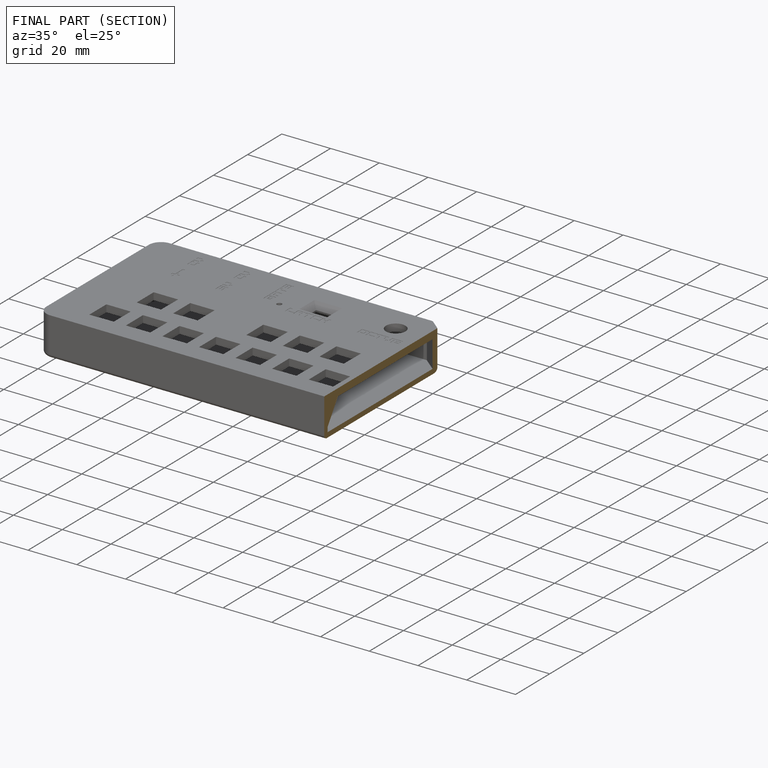
[diagram: finished part — half-section view (interior)]
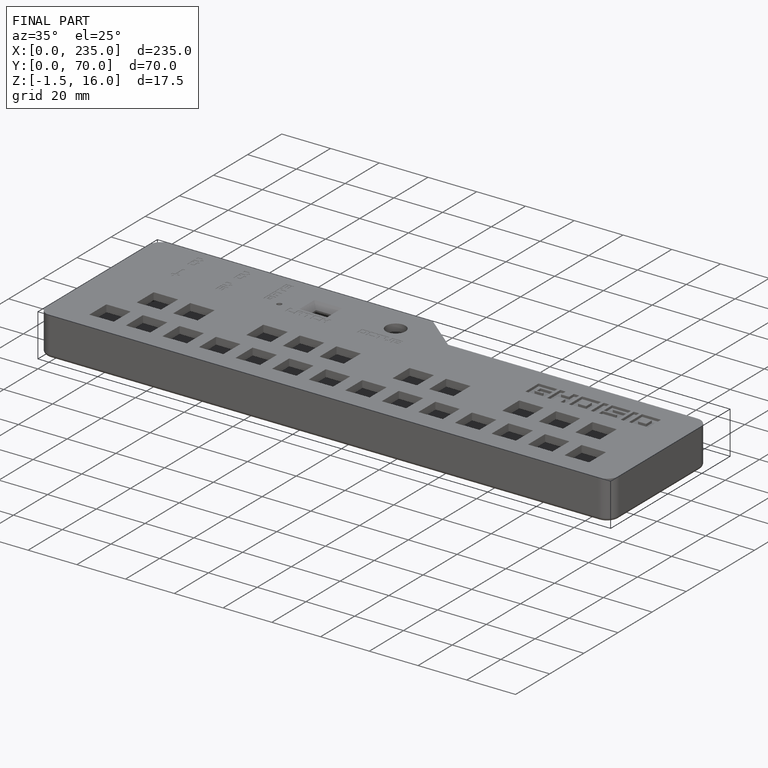
[diagram: finished part — iso view with bounding-box wireframe]
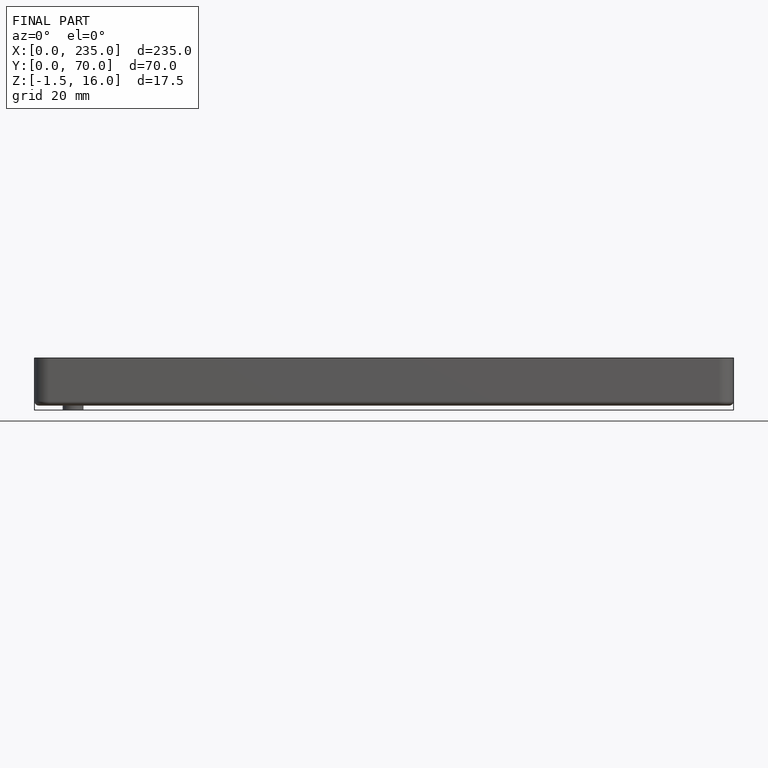
[diagram: finished part — front view with bounding-box wireframe]
